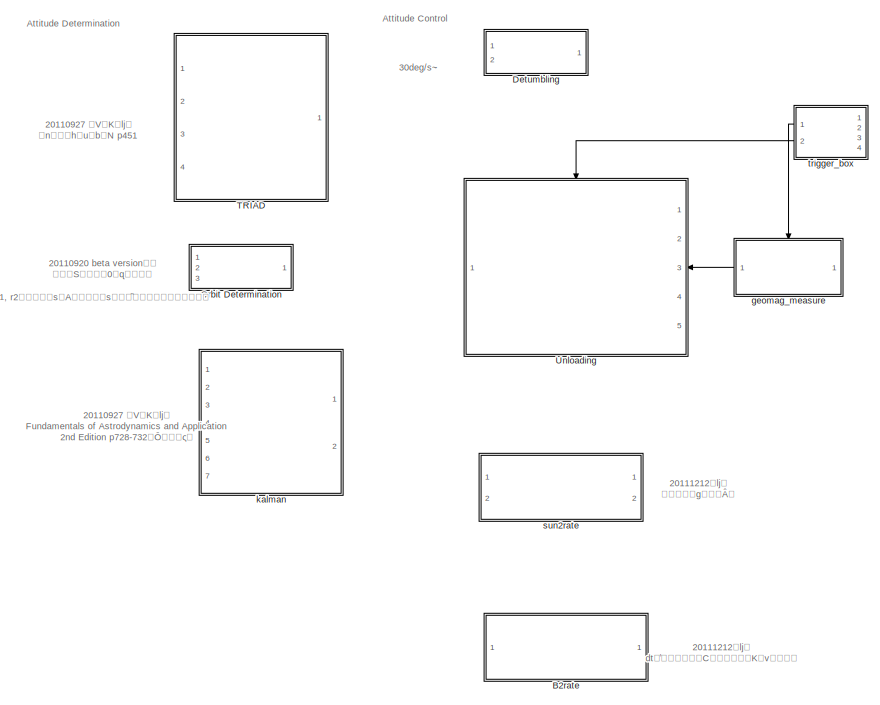
[diagram: root canvas - part 1/2, left side, full height]
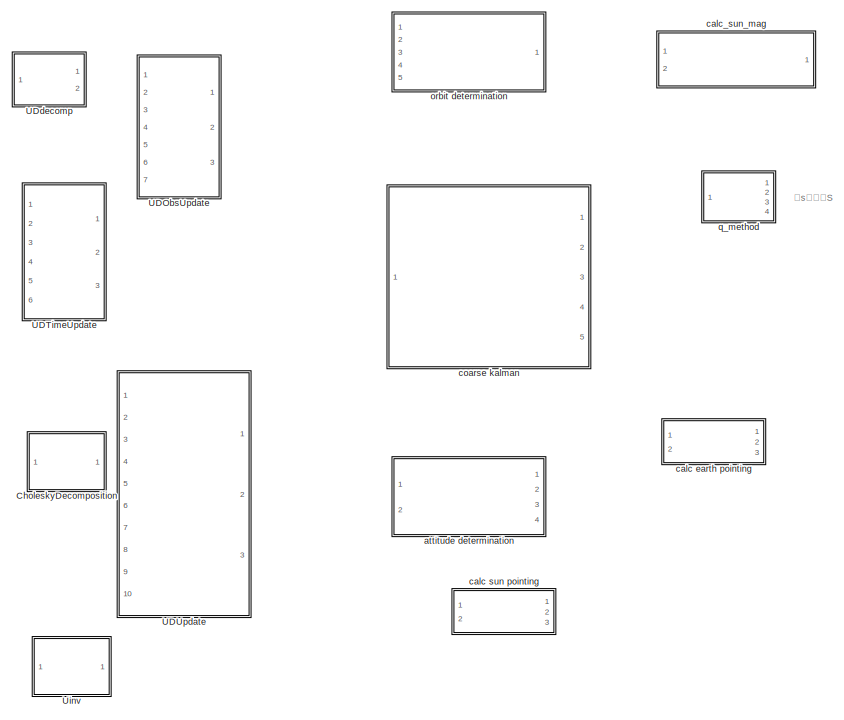
[diagram: root canvas - part 2/2, right side, full height]
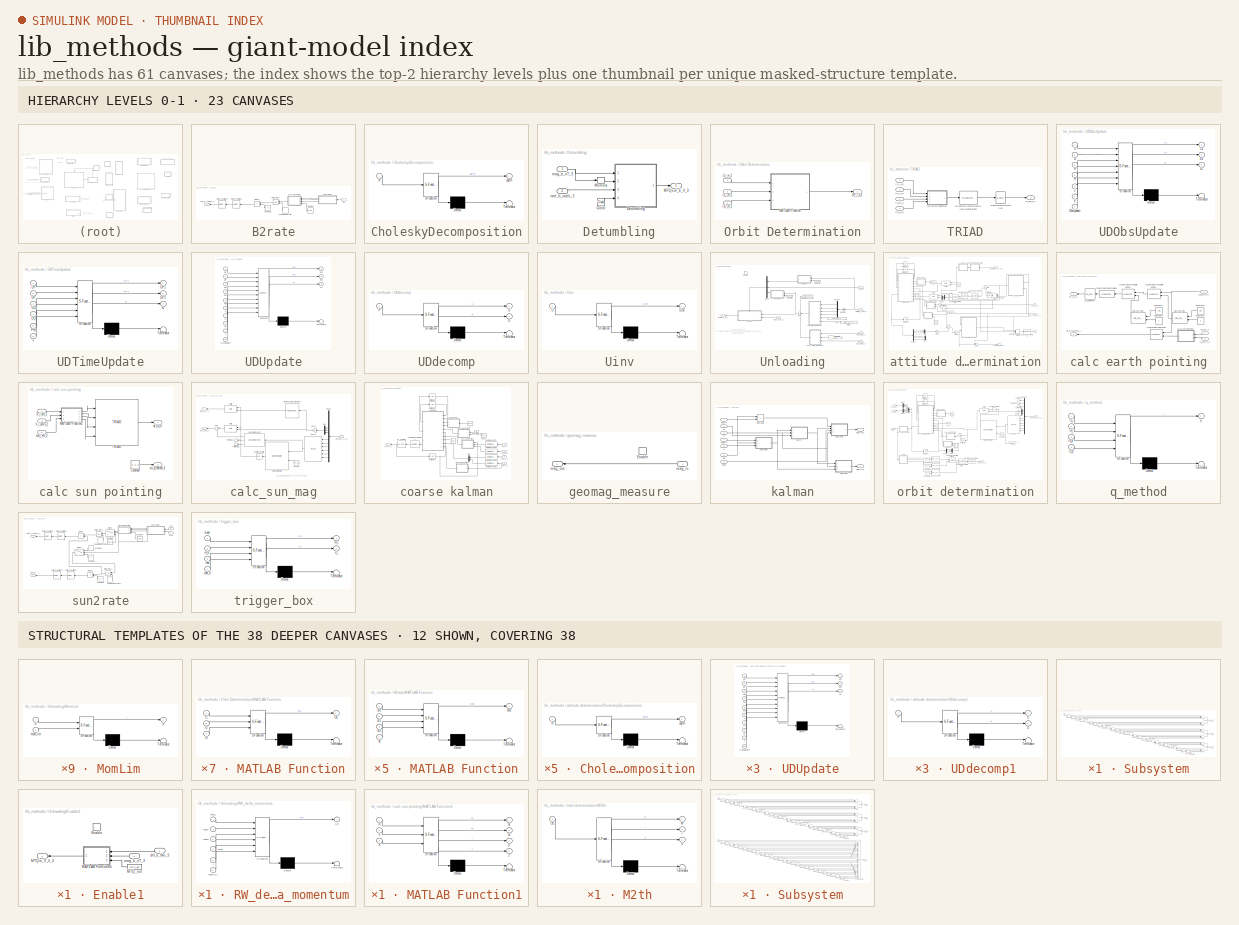
[diagram: thumbnail index - top-2 hierarchy levels (23 canvases) + 12 structural-template representatives of the remaining 38 canvases]
MODEL lib_methods
KIND library
BLOCK [SubSystem] B2rate
  FunctionWithSeparateData = off
  MaskHideContents = off
  MinAlgLoopOccurrences = off
  Opaque = off
  Ports = [1, 1]
  PropExecContextOutsideSubsystem = off
  RTWSystemCode = Auto
  RequestExecContextInheritance = off
  SID = 261
BLOCK [Inport] B2rate/B
  IconDisplay = Port number
  SID = 262
BLOCK [Constant] B2rate/Constant
  SID = 263
  Value = 10*dt
BLOCK [Constant] B2rate/Constant1
  SID = 264
  Value = 1.5
BLOCK [Product] B2rate/Divide1
  InputSameDT = off
  Inputs = */
  OutDataTypeStr = Inherit: Inherit via internal rule
  Ports = [2, 1]
  RndMeth = Floor
  SID = 265
  SaturateOnIntegerOverflow = off
BLOCK [Integrator] B2rate/Integrator2
  ExternalReset = rising
  Ports = [2, 1]
  SID = 266
BLOCK [SubSystem] B2rate/MATLAB Function
  ErrorFcn = Stateflow.Translate.translate
  FunctionWithSeparateData = off
  MaskDescription = Embedded MATLAB block
  MaskDisplay = bgColor = Simulink.Root.ColorString2Rgb(get_param(gcbh, 'BackgroundColor')); image(imread('private/eml_membrane_16.png','png','BackgroundColor',bgColor(1:3)),'center'); disp([10 10 'fcn']);  <repeated x18 — deduplicated; at blocks: MATLAB Function, Detumbling, MATLAB Function4, calc PHI, MATLAB Function2, MATLAB Function1, calc_K, calc_Pbar, calc_Phat, calc_Xhat, q_method>
  MaskHideContents = off
  MaskIconFrame = on
  MaskIconOpaque = off
  MaskIconRotate = none
  MaskIconUnits = normalized
  MaskPortRotate = default
  MaskSelfModifiable = on
  MaskType = Stateflow
  MinAlgLoopOccurrences = off
  Opaque = off
  PermitHierarchicalResolution = ExplicitOnly
  Ports = [4, 1]
  PropExecContextOutsideSubsystem = off
  RTWSystemCode = Auto
  RequestExecContextInheritance = off
  SID = 267
  TreatAsAtomicUnit = on
BLOCK [Demux] B2rate/MATLAB Function/ Demux 
  Outputs = 1
  Ports = [1, 1]
  SID = 267::15
BLOCK [S-Function] B2rate/MATLAB Function/ SFunction 
  EnableBusSupport = on
  FunctionName = sf_sfun
  PortCounts = [4 2]
  Ports = [4, 2]
  SID = 267::14
  Tag = Stateflow S-Function lib_methods 13
BLOCK [Terminator] B2rate/MATLAB Function/ Terminator 
  SID = 267::17
BLOCK [Inport] B2rate/MATLAB Function/B0
  IconDisplay = Port number
  SID = 267::18
BLOCK [Inport] B2rate/MATLAB Function/B1
  IconDisplay = Port number
  Port = 2
  SID = 267::19
BLOCK [Inport] B2rate/MATLAB Function/B2
  IconDisplay = Port number
  Port = 3
  SID = 267::1
BLOCK [Inport] B2rate/MATLAB Function/dt
  IconDisplay = Port number
  Port = 4
  SID = 267::20
BLOCK [Outport] B2rate/MATLAB Function/rate
  IconDisplay = Port number
  SID = 267::5
BLOCK [DiscretePulseGenerator] B2rate/Pulse\nGenerator
  Period = 1.5
  PhaseDelay = dt
  Ports = [0, 1]
  PulseType = Time based
  PulseWidth = 10
  SID = 268
BLOCK [RateTransition] B2rate/Rate Transition1
  Deterministic = off
  OutPortSampleTime = 1.5
  SID = 269
BLOCK [RateTransition] B2rate/Rate Transition2
  Deterministic = off
  OutPortSampleTime = 0
  SID = 270
BLOCK [SubSystem] B2rate/Subsystem
  FunctionWithSeparateData = off
  MaskHideContents = off
  MinAlgLoopOccurrences = off
  Opaque = off
  Ports = [1, 3]
  PropExecContextOutsideSubsystem = off
  RTWSystemCode = Auto
  RequestExecContextInheritance = off
  SID = 271
BLOCK [Inport] B2rate/Subsystem/B
  IconDisplay = Port number
  SID = 272
BLOCK [Outport] B2rate/Subsystem/B0
  IconDisplay = Port number
  SID = 311
BLOCK [Outport] B2rate/Subsystem/B1
  IconDisplay = Port number
  Port = 2
  SID = 312
BLOCK [Outport] B2rate/Subsystem/B2
  IconDisplay = Port number
  Port = 3
  SID = 313
BLOCK [Memory] B2rate/Subsystem/Memory1
  SID = 273
  X0 = [0;0;0]
BLOCK [Memory] B2rate/Subsystem/Memory10
  SID = 274
  X0 = [0;0;0]
BLOCK [Memory] B2rate/Subsystem/Memory11
  SID = 275
  X0 = [0;0;0]
BLOCK [Memory] B2rate/Subsystem/Memory12
  SID = 276
  X0 = [0;0;0]
BLOCK [Memory] B2rate/Subsystem/Memory13
  SID = 277
  X0 = [0;0;0]
BLOCK [Memory] B2rate/Subsystem/Memory14
  SID = 278
  X0 = [0;0;0]
BLOCK [Memory] B2rate/Subsystem/Memory15
  SID = 279
  X0 = [0;0;0]
BLOCK [Memory] B2rate/Subsystem/Memory16
  SID = 280
  X0 = [0;0;0]
BLOCK [Memory] B2rate/Subsystem/Memory17
  SID = 281
  X0 = [0;0;0]
BLOCK [Memory] B2rate/Subsystem/Memory18
  SID = 282
  X0 = [0;0;0]
BLOCK [Memory] B2rate/Subsystem/Memory19
  SID = 283
  X0 = [0;0;0]
BLOCK [Memory] B2rate/Subsystem/Memory2
  SID = 284
  X0 = [0;0;0]
BLOCK [Memory] B2rate/Subsystem/Memory20
  SID = 285
  X0 = [0;0;0]
BLOCK [Memory] B2rate/Subsystem/Memory21
  SID = 286
  X0 = [0;0;0]
BLOCK [Memory] B2rate/Subsystem/Memory22
  SID = 287
  X0 = [0;0;0]
BLOCK [Memory] B2rate/Subsystem/Memory23
  SID = 288
  X0 = [0;0;0]
BLOCK [Memory] B2rate/Subsystem/Memory24
  SID = 289
  X0 = [0;0;0]
BLOCK [Memory] B2rate/Subsystem/Memory25
  SID = 290
  X0 = [0;0;0]
BLOCK [Memory] B2rate/Subsystem/Memory26
  SID = 291
  X0 = [0;0;0]
BLOCK [Memory] B2rate/Subsystem/Memory27
  SID = 292
  X0 = [0;0;0]
BLOCK [Memory] B2rate/Subsystem/Memory28
  SID = 293
  X0 = [0;0;0]
BLOCK [Memory] B2rate/Subsystem/Memory29
  SID = 294
  X0 = [0;0;0]
BLOCK [Memory] B2rate/Subsystem/Memory3
  SID = 295
  X0 = [0;0;0]
BLOCK [Memory] B2rate/Subsystem/Memory4
  SID = 296
  X0 = [0;0;0]
BLOCK [Memory] B2rate/Subsystem/Memory5
  SID = 297
  X0 = [0;0;0]
BLOCK [Memory] B2rate/Subsystem/Memory6
  SID = 298
  X0 = [0;0;0]
BLOCK [Memory] B2rate/Subsystem/Memory7
  SID = 299
  X0 = [0;0;0]
BLOCK [Memory] B2rate/Subsystem/Memory8
  SID = 300
  X0 = [0;0;0]
BLOCK [Memory] B2rate/Subsystem/Memory9
  SID = 301
  X0 = [0;0;0]
BLOCK [Sum] B2rate/Subsystem/Sum
  IconShape = round
  InputSameDT = off
  Inputs = +++++
  OutDataTypeStr = Inherit: Inherit via internal rule
  Ports = [5, 1]
  SID = 302
  SaturateOnIntegerOverflow = off
BLOCK [Sum] B2rate/Subsystem/Sum1
  IconShape = round
  InputSameDT = off
  Inputs = +++++
  OutDataTypeStr = Inherit: Inherit via internal rule
  Ports = [5, 1]
  SID = 303
  SaturateOnIntegerOverflow = off
BLOCK [Sum] B2rate/Subsystem/Sum2
  IconShape = round
  InputSameDT = off
  Inputs = +++++
  OutDataTypeStr = Inherit: Inherit via internal rule
  Ports = [5, 1]
  SID = 304
  SaturateOnIntegerOverflow = off
BLOCK [Sum] B2rate/Subsystem/Sum3
  IconShape = round
  InputSameDT = off
  Inputs = +++++
  OutDataTypeStr = Inherit: Inherit via internal rule
  Ports = [5, 1]
  SID = 305
  SaturateOnIntegerOverflow = off
BLOCK [Sum] B2rate/Subsystem/Sum4
  IconShape = round
  InputSameDT = off
  Inputs = +++++
  OutDataTypeStr = Inherit: Inherit via internal rule
  Ports = [5, 1]
  SID = 306
  SaturateOnIntegerOverflow = off
BLOCK [Sum] B2rate/Subsystem/Sum5
  IconShape = round
  InputSameDT = off
  Inputs = +++++
  OutDataTypeStr = Inherit: Inherit via internal rule
  Ports = [5, 1]
  SID = 307
  SaturateOnIntegerOverflow = off
BLOCK [Sum] B2rate/Subsystem/Sum6
  IconShape = round
  InputSameDT = off
  OutDataTypeStr = Inherit: Inherit via internal rule
  Ports = [2, 1]
  SID = 308
  SaturateOnIntegerOverflow = off
BLOCK [Sum] B2rate/Subsystem/Sum7
  IconShape = round
  InputSameDT = off
  OutDataTypeStr = Inherit: Inherit via internal rule
  Ports = [2, 1]
  SID = 309
  SaturateOnIntegerOverflow = off
BLOCK [Sum] B2rate/Subsystem/Sum8
  IconShape = round
  InputSameDT = off
  OutDataTypeStr = Inherit: Inherit via internal rule
  Ports = [2, 1]
  SID = 310
  SaturateOnIntegerOverflow = off
BLOCK [Outport] B2rate/rate_b_rad//sec_3
  IconDisplay = Port number
  SID = 314
BLOCK [SubSystem] CholeskyDecomposition
  ErrorFcn = Stateflow.Translate.translate
  FunctionWithSeparateData = off
  MaskDescription = Embedded MATLAB block
  MaskDisplay = bgColor = Simulink.Root.ColorString2Rgb(get_param(gcbh, 'BackgroundColor')); image(imread('private/eml_membrane_16.png','png','BackgroundColor',bgColor(1:3)),'center'); disp([10 10 'CholeskyDecomp']);
  MaskHideContents = off
  MaskIconFrame = on
  MaskIconOpaque = off
  MaskIconRotate = none
  MaskIconUnits = normalized
  MaskPortRotate = default
  MaskSelfModifiable = on
  MaskType = Stateflow
  MinAlgLoopOccurrences = off
  Opaque = off
  PermitHierarchicalResolution = ExplicitOnly
  Ports = [1, 1]
  PropExecContextOutsideSubsystem = off
  RTWSystemCode = Auto
  RequestExecContextInheritance = off
  SID = 1209
  TreatAsAtomicUnit = on
BLOCK [Demux] CholeskyDecomposition/ Demux 
  Outputs = 1
  Ports = [1, 1]
  SID = 1209::15
BLOCK [S-Function] CholeskyDecomposition/ SFunction 
  EnableBusSupport = on
  FunctionName = sf_sfun
  PortCounts = [1 2]
  Ports = [1, 2]
  SID = 1209::14
  Tag = Stateflow S-Function lib_methods 16
BLOCK [Terminator] CholeskyDecomposition/ Terminator 
  SID = 1209::17
BLOCK [Inport] CholeskyDecomposition/R
  IconDisplay = Port number
  SID = 1209::1
BLOCK [Outport] CholeskyDecomposition/sqrtR
  IconDisplay = Port number
  SID = 1209::5
BLOCK [SubSystem] Detumbling
  FunctionWithSeparateData = off
  MaskHideContents = off
  MinAlgLoopOccurrences = off
  Opaque = off
  Ports = [2, 1]
  PropExecContextOutsideSubsystem = off
  RTWSystemCode = Auto
  RequestExecContextInheritance = off
  SID = 2288
BLOCK [Clock] Detumbling/Clock
  Decimation = 10
  SID = 2293
BLOCK [SubSystem] Detumbling/Detumbling
  ErrorFcn = Stateflow.Translate.translate
  FunctionWithSeparateData = off
  MaskDescription = Embedded MATLAB block
  MaskHideContents = off
  MaskIconFrame = on
  MaskIconOpaque = off
  MaskIconRotate = none
  MaskIconUnits = normalized
  MaskPortRotate = default
  MaskSelfModifiable = on
  MaskType = Stateflow
  MinAlgLoopOccurrences = off
  Opaque = off
  PermitHierarchicalResolution = ExplicitOnly
  Ports = [4, 1]
  PropExecContextOutsideSubsystem = off
  RTWSystemCode = Auto
  RequestExecContextInheritance = off
  SID = 2294
  TreatAsAtomicUnit = on
BLOCK [Demux] Detumbling/Detumbling/ Demux 
  Outputs = 1
  Ports = [1, 1]
  SID = 2294::22
BLOCK [S-Function] Detumbling/Detumbling/ SFunction 
  EnableBusSupport = off
  FunctionName = sf_sfun
  PortCounts = [4 2]
  Ports = [4, 2]
  SID = 2294::21
  Tag = Stateflow S-Function lib_methods 1
BLOCK [Terminator] Detumbling/Detumbling/ Terminator 
  SID = 2294::24
BLOCK [Outport] Detumbling/Detumbling/d
  IconDisplay = Port number
  SID = 2294::5
BLOCK [Inport] Detumbling/Detumbling/mag_b
  IconDisplay = Port number
  SID = 2294::1
BLOCK [Inport] Detumbling/Detumbling/mag_b_old
  IconDisplay = Port number
  Port = 2
  SID = 2294::18
BLOCK [Inport] Detumbling/Detumbling/rate_b
  IconDisplay = Port number
  Port = 3
  SID = 2294::19
BLOCK [Inport] Detumbling/Detumbling/time
  IconDisplay = Port number
  Port = 4
  SID = 2294::20
BLOCK [Outport] Detumbling/MTQvol_b_V_3
  IconDisplay = Port number
  SID = 2296
BLOCK [Memory] Detumbling/Memory
  SID = 2295
BLOCK [Inport] Detumbling/mag_b_nT_3
  IconDisplay = Port number
  SID = 2291
BLOCK [Inport] Detumbling/rate_b_rad//s_3
  IconDisplay = Port number
  Port = 2
  SID = 2292
BLOCK [SubSystem] Orbit Determination
  FunctionWithSeparateData = off
  MaskHideContents = off
  MinAlgLoopOccurrences = off
  Opaque = off
  Ports = [3, 1]
  PropExecContextOutsideSubsystem = off
  RTWSystemCode = Auto
  RequestExecContextInheritance = off
  SID = 17
BLOCK [SubSystem] Orbit Determination/MATLAB Function
  ErrorFcn = Stateflow.Translate.translate
  FunctionWithSeparateData = off
  MaskDescription = Embedded MATLAB block
  MaskDisplay = bgColor = Simulink.Root.ColorString2Rgb(get_param(gcbh, 'BackgroundColor')); image(imread('private/eml_membrane_16.png','png','BackgroundColor',bgColor(1:3)),'center'); disp([10 10 'Orbit_Determination']);
  MaskHideContents = off
  MaskIconFrame = on
  MaskIconOpaque = off
  MaskIconRotate = none
  MaskIconUnits = normalized
  MaskPortRotate = default
  MaskSelfModifiable = on
  MaskType = Stateflow
  MinAlgLoopOccurrences = off
  Opaque = off
  PermitHierarchicalResolution = ExplicitOnly
  Ports = [3, 1]
  PropExecContextOutsideSubsystem = off
  RTWSystemCode = Auto
  RequestExecContextInheritance = off
  SID = 21
  TreatAsAtomicUnit = on
BLOCK [Demux] Orbit Determination/MATLAB Function/ Demux 
  Outputs = 1
  Ports = [1, 1]
  SID = 21::21
BLOCK [S-Function] Orbit Determination/MATLAB Function/ SFunction 
  EnableBusSupport = off
  FunctionName = sf_sfun
  PortCounts = [3 2]
  Ports = [3, 2]
  SID = 21::20
  Tag = Stateflow S-Function lib_methods 2
BLOCK [Terminator] Orbit Determination/MATLAB Function/ Terminator 
  SID = 21::23
BLOCK [Outport] Orbit Determination/MATLAB Function/OE
  IconDisplay = Port number
  SID = 21::5
BLOCK [Inport] Orbit Determination/MATLAB Function/r1
  IconDisplay = Port number
  SID = 21::1
BLOCK [Inport] Orbit Determination/MATLAB Function/r2
  IconDisplay = Port number
  Port = 2
  SID = 21::18
BLOCK [Inport] Orbit Determination/MATLAB Function/r3
  IconDisplay = Port number
  Port = 3
  SID = 21::19
BLOCK [Outport] Orbit Determination/OE_i_#_6
  IconDisplay = Port number
  SID = 22
BLOCK [Inport] Orbit Determination/r1_i_m_3
  IconDisplay = Port number
  SID = 18
BLOCK [Inport] Orbit Determination/r2_i_m_3
  IconDisplay = Port number
  Port = 2
  SID = 19
BLOCK [Inport] Orbit Determination/r3_i_m_3
  IconDisplay = Port number
  Port = 3
  SID = 20
BLOCK [SubSystem] TRIAD
  FunctionWithSeparateData = off
  MaskHideContents = off
  MinAlgLoopOccurrences = off
  Opaque = off
  Ports = [4, 1]
  PropExecContextOutsideSubsystem = off
  RTWSystemCode = Auto
  RequestExecContextInheritance = off
  SID = 40
BLOCK [Reference] TRIAD/Direction Cosine Matrix \nto Quaternions  REF=aerolibtransform2/Direction Cosine Matrix \nto Quaternions
  Ports = [1, 1]
  SID = 4
  SourceBlock = aerolibtransform2/Direction Cosine Matrix \nto Quaternions
  SourceType = DCM2Quaternion
BLOCK [SubSystem] TRIAD/MATLAB Function
  ErrorFcn = Stateflow.Translate.translate
  FunctionWithSeparateData = off
  MaskDescription = Embedded MATLAB block
  MaskDisplay = bgColor = Simulink.Root.ColorString2Rgb(get_param(gcbh, 'BackgroundColor')); image(imread('private/eml_membrane_16.png','png','BackgroundColor',bgColor(1:3)),'center'); disp([10 10 'TRAID']);
  MaskHideContents = off
  MaskIconFrame = on
  MaskIconOpaque = off
  MaskIconRotate = none
  MaskIconUnits = normalized
  MaskPortRotate = default
  MaskSelfModifiable = on
  MaskType = Stateflow
  MinAlgLoopOccurrences = off
  Opaque = off
  PermitHierarchicalResolution = ExplicitOnly
  Ports = [4, 1]
  PropExecContextOutsideSubsystem = off
  RTWSystemCode = Auto
  RequestExecContextInheritance = off
  SID = 45
  TreatAsAtomicUnit = on
BLOCK [Demux] TRIAD/MATLAB Function/ Demux 
  Outputs = 1
  Ports = [1, 1]
  SID = 45::28
BLOCK [S-Function] TRIAD/MATLAB Function/ SFunction 
  EnableBusSupport = on
  FunctionName = sf_sfun
  PortCounts = [4 2]
  Ports = [4, 2]
  SID = 45::27
  Tag = Stateflow S-Function lib_methods 8
BLOCK [Terminator] TRIAD/MATLAB Function/ Terminator 
  SID = 45::30
BLOCK [Outport] TRIAD/MATLAB Function/A
  IconDisplay = Port number
  SID = 45::26
BLOCK [Inport] TRIAD/MATLAB Function/v1
  IconDisplay = Port number
  SID = 45::1
BLOCK [Inport] TRIAD/MATLAB Function/v2
  IconDisplay = Port number
  Port = 2
  SID = 45::18
BLOCK [Inport] TRIAD/MATLAB Function/w1
  IconDisplay = Port number
  Port = 3
  SID = 45::19
BLOCK [Inport] TRIAD/MATLAB Function/w2
  IconDisplay = Port number
  Port = 4
  SID = 45::20
BLOCK [Reference] TRIAD/Quaternion\nNormalize  REF=aerolibutil/Quaternion\nNormalize
  Ports = [1, 1]
  SID = 5
  SourceBlock = aerolibutil/Quaternion\nNormalize
  SourceType = Quaternion Normalize
BLOCK [Outport] TRIAD/q_i2b_#_4
  IconDisplay = Port number
  SID = 3
BLOCK [Inport] TRIAD/r1_b_#_3
  IconDisplay = Port number
  Port = 3
  SID = 43
BLOCK [Inport] TRIAD/r1_i_#_3
  IconDisplay = Port number
  SID = 41
BLOCK [Inport] TRIAD/r2_b_#_3
  IconDisplay = Port number
  Port = 4
  SID = 44
BLOCK [Inport] TRIAD/r2_i_#_3
  IconDisplay = Port number
  Port = 2
  SID = 42
BLOCK [SubSystem] UDObsUpdate
  ErrorFcn = Stateflow.Translate.translate
  FunctionWithSeparateData = off
  MaskDescription = Embedded MATLAB block
  MaskDisplay = bgColor = Simulink.Root.ColorString2Rgb(get_param(gcbh, 'BackgroundColor')); image(imread('private/eml_membrane_16.png','png','BackgroundColor',bgColor(1:3)),'center'); disp([10 10 'UDObsUpdate']);
  MaskHideContents = off
  MaskIconFrame = on
  MaskIconOpaque = off
  MaskIconRotate = none
  MaskIconUnits = normalized
  MaskPortRotate = default
  MaskSelfModifiable = on
  MaskType = Stateflow
  MinAlgLoopOccurrences = off
  Opaque = off
  PermitHierarchicalResolution = ExplicitOnly
  Ports = [7, 3]
  PropExecContextOutsideSubsystem = off
  RTWSystemCode = Auto
  RequestExecContextInheritance = off
  SID = 1211
  TreatAsAtomicUnit = on
BLOCK [Demux] UDObsUpdate/ Demux 
  Outputs = 1
  Ports = [1, 1]
  SID = 1211::15
BLOCK [S-Function] UDObsUpdate/ SFunction 
  EnableBusSupport = on
  FunctionName = sf_sfun
  PortCounts = [7 4]
  Ports = [7, 4]
  SID = 1211::14
  Tag = Stateflow S-Function lib_methods 18
BLOCK [Terminator] UDObsUpdate/ Terminator 
  SID = 1211::17
BLOCK [Inport] UDObsUpdate/D
  IconDisplay = Port number
  Port = 2
  SID = 1211::21
BLOCK [Outport] UDObsUpdate/D1
  IconDisplay = Port number
  Port = 2
  SID = 1211::20
BLOCK [Inport] UDObsUpdate/H
  IconDisplay = Port number
  Port = 3
  SID = 1211::22
BLOCK [Inport] UDObsUpdate/ObsUpdate
  IconDisplay = Port number
  Port = 7
  SID = 1211::29
BLOCK [Inport] UDObsUpdate/R
  IconDisplay = Port number
  Port = 4
  SID = 1211::25
BLOCK [Inport] UDObsUpdate/U
  IconDisplay = Port number
  SID = 1211::1
BLOCK [Outport] UDObsUpdate/U1
  IconDisplay = Port number
  SID = 1211::5
BLOCK [Inport] UDObsUpdate/x
  IconDisplay = Port number
  Port = 5
  SID = 1211::27
BLOCK [Outport] UDObsUpdate/x1
  IconDisplay = Port number
  Port = 3
  SID = 1211::26
BLOCK [Inport] UDObsUpdate/y
  IconDisplay = Port number
  Port = 6
  SID = 1211::28
BLOCK [SubSystem] UDTimeUpdate
  ErrorFcn = Stateflow.Translate.translate
  FunctionWithSeparateData = off
  MaskDescription = Embedded MATLAB block
  MaskDisplay = bgColor = Simulink.Root.ColorString2Rgb(get_param(gcbh, 'BackgroundColor')); image(imread('private/eml_membrane_16.png','png','BackgroundColor',bgColor(1:3)),'center'); disp([10 10 'UDTimeUpdate']);
  MaskHideContents = off
  MaskIconFrame = on
  MaskIconOpaque = off
  MaskIconRotate = none
  MaskIconUnits = normalized
  MaskPortRotate = default
  MaskSelfModifiable = on
  MaskType = Stateflow
  MinAlgLoopOccurrences = off
  Opaque = off
  PermitHierarchicalResolution = ExplicitOnly
  Ports = [6, 3]
  PropExecContextOutsideSubsystem = off
  RTWSystemCode = Auto
  RequestExecContextInheritance = off
  SID = 1208
  TreatAsAtomicUnit = on
BLOCK [Demux] UDTimeUpdate/ Demux 
  Outputs = 1
  Ports = [1, 1]
  SID = 1208::15
BLOCK [S-Function] UDTimeUpdate/ SFunction 
  EnableBusSupport = on
  FunctionName = sf_sfun
  PortCounts = [6 4]
  Ports = [6, 4]
  SID = 1208::14
  Tag = Stateflow S-Function lib_methods 15
BLOCK [Terminator] UDTimeUpdate/ Terminator 
  SID = 1208::17
BLOCK [Inport] UDTimeUpdate/DP
  IconDisplay = Port number
  Port = 2
  SID = 1208::21
BLOCK [Outport] UDTimeUpdate/DP1
  IconDisplay = Port number
  Port = 2
  SID = 1208::20
BLOCK [Inport] UDTimeUpdate/DQ
  IconDisplay = Port number
  Port = 4
  SID = 1208::23
BLOCK [Inport] UDTimeUpdate/PHI
  IconDisplay = Port number
  Port = 5
  SID = 1208::24
BLOCK [Inport] UDTimeUpdate/UP
  IconDisplay = Port number
  SID = 1208::1
BLOCK [Outport] UDTimeUpdate/UP1
  IconDisplay = Port number
  SID = 1208::5
BLOCK [Inport] UDTimeUpdate/UQ
  IconDisplay = Port number
  Port = 3
  SID = 1208::22
BLOCK [Inport] UDTimeUpdate/x
  IconDisplay = Port number
  Port = 6
  SID = 1208::25
BLOCK [Outport] UDTimeUpdate/x1
  IconDisplay = Port number
  Port = 3
  SID = 1208::26
BLOCK [SubSystem] UDUpdate
  ErrorFcn = Stateflow.Translate.translate
  FunctionWithSeparateData = off
  MaskDescription = Embedded MATLAB block
  MaskDisplay = bgColor = Simulink.Root.ColorString2Rgb(get_param(gcbh, 'BackgroundColor')); image(imread('private/eml_membrane_16.png','png','BackgroundColor',bgColor(1:3)),'center'); disp([10 10 'UDUpdate']);  <repeated x4 — deduplicated; at blocks: UDUpdate>
  MaskHideContents = off
  MaskIconFrame = on
  MaskIconOpaque = off
  MaskIconRotate = none
  MaskIconUnits = normalized
  MaskPortRotate = default
  MaskSelfModifiable = on
  MaskType = Stateflow
  MinAlgLoopOccurrences = off
  Opaque = off
  PermitHierarchicalResolution = ExplicitOnly
  Ports = [10, 3]
  PropExecContextOutsideSubsystem = off
  RTWSystemCode = Auto
  RequestExecContextInheritance = off
  SID = 1212
  TreatAsAtomicUnit = on
BLOCK [Demux] UDUpdate/ Demux 
  Outputs = 1
  Ports = [1, 1]
  SID = 1212::15
BLOCK [S-Function] UDUpdate/ SFunction 
  EnableBusSupport = on
  FunctionName = sf_sfun
  PortCounts = [10 4]
  Ports = [10, 4]
  SID = 1212::14
  Tag = Stateflow S-Function lib_methods 19
BLOCK [Terminator] UDUpdate/ Terminator 
  SID = 1212::17
BLOCK [Inport] UDUpdate/DP
  IconDisplay = Port number
  Port = 2
  SID = 1212::21
BLOCK [Outport] UDUpdate/DP1
  IconDisplay = Port number
  Port = 2
  SID = 1212::20
BLOCK [Inport] UDUpdate/DQ
  IconDisplay = Port number
  Port = 4
  SID = 1212::23
BLOCK [Inport] UDUpdate/H
  IconDisplay = Port number
  Port = 7
  SID = 1212::27
BLOCK [Inport] UDUpdate/ObsUpdate
  IconDisplay = Port number
  Port = 10
  SID = 1212::30
BLOCK [Inport] UDUpdate/PHI
  IconDisplay = Port number
  Port = 5
  SID = 1212::24
BLOCK [Inport] UDUpdate/R
  IconDisplay = Port number
  Port = 8
  SID = 1212::28
BLOCK [Inport] UDUpdate/UP
  IconDisplay = Port number
  SID = 1212::1
BLOCK [Outport] UDUpdate/UP1
  IconDisplay = Port number
  SID = 1212::5
BLOCK [Inport] UDUpdate/UQ
  IconDisplay = Port number
  Port = 3
  SID = 1212::22
BLOCK [Inport] UDUpdate/x
  IconDisplay = Port number
  Port = 6
  SID = 1212::25
BLOCK [Outport] UDUpdate/x1
  IconDisplay = Port number
  Port = 3
  SID = 1212::26
BLOCK [Inport] UDUpdate/y
  IconDisplay = Port number
  Port = 9
  SID = 1212::29
BLOCK [SubSystem] UDdecomp
  ErrorFcn = Stateflow.Translate.translate
  FunctionWithSeparateData = off
  MaskDescription = Embedded MATLAB block
  MaskDisplay = bgColor = Simulink.Root.ColorString2Rgb(get_param(gcbh, 'BackgroundColor')); image(imread('private/eml_membrane_16.png','png','BackgroundColor',bgColor(1:3)),'center'); disp([10 10 'UDdecomposition']);  <repeated x4 — deduplicated; at blocks: UDdecomp, UDdecomp1>
  MaskHideContents = off
  MaskIconFrame = on
  MaskIconOpaque = off
  MaskIconRotate = none
  MaskIconUnits = normalized
  MaskPortRotate = default
  MaskSelfModifiable = on
  MaskType = Stateflow
  MinAlgLoopOccurrences = off
  Opaque = off
  PermitHierarchicalResolution = ExplicitOnly
  Ports = [1, 2]
  PropExecContextOutsideSubsystem = off
  RTWSystemCode = Auto
  RequestExecContextInheritance = off
  SID = 1207
  TreatAsAtomicUnit = on
BLOCK [Demux] UDdecomp/ Demux 
  Outputs = 1
  Ports = [1, 1]
  SID = 1207::15
BLOCK [S-Function] UDdecomp/ SFunction 
  EnableBusSupport = on
  FunctionName = sf_sfun
  PortCounts = [1 3]
  Ports = [1, 3]
  SID = 1207::14
  Tag = Stateflow S-Function lib_methods 14
BLOCK [Terminator] UDdecomp/ Terminator 
  SID = 1207::17
BLOCK [Outport] UDdecomp/D
  IconDisplay = Port number
  Port = 2
  SID = 1207::20
BLOCK [Inport] UDdecomp/P
  IconDisplay = Port number
  SID = 1207::1
BLOCK [Outport] UDdecomp/U
  IconDisplay = Port number
  SID = 1207::5
BLOCK [SubSystem] Uinv
  ErrorFcn = Stateflow.Translate.translate
  FunctionWithSeparateData = off
  MaskDescription = Embedded MATLAB block
  MaskDisplay = bgColor = Simulink.Root.ColorString2Rgb(get_param(gcbh, 'BackgroundColor')); image(imread('private/eml_membrane_16.png','png','BackgroundColor',bgColor(1:3)),'center'); disp([10 10 'Uinverse']);
  MaskHideContents = off
  MaskIconFrame = on
  MaskIconOpaque = off
  MaskIconRotate = none
  MaskIconUnits = normalized
  MaskPortRotate = default
  MaskSelfModifiable = on
  MaskType = Stateflow
  MinAlgLoopOccurrences = off
  Opaque = off
  PermitHierarchicalResolution = ExplicitOnly
  Ports = [1, 1]
  PropExecContextOutsideSubsystem = off
  RTWSystemCode = Auto
  RequestExecContextInheritance = off
  SID = 1210
  TreatAsAtomicUnit = on
BLOCK [Demux] Uinv/ Demux 
  Outputs = 1
  Ports = [1, 1]
  SID = 1210::15
BLOCK [S-Function] Uinv/ SFunction 
  EnableBusSupport = on
  FunctionName = sf_sfun
  PortCounts = [1 2]
  Ports = [1, 2]
  SID = 1210::14
  Tag = Stateflow S-Function lib_methods 17
BLOCK [Terminator] Uinv/ Terminator 
  SID = 1210::17
BLOCK [Inport] Uinv/U
  IconDisplay = Port number
  SID = 1210::1
BLOCK [Outport] Uinv/Uinv
  IconDisplay = Port number
  SID = 1210::5
BLOCK [SubSystem] Unloading
  FunctionWithSeparateData = off
  MaskHideContents = off
  MinAlgLoopOccurrences = off
  Opaque = off
  Ports = [5, 1, 1]
  PropExecContextOutsideSubsystem = off
  RTWSystemCode = Auto
  RequestExecContextInheritance = off
  SID = 2254
  TreatAsAtomicUnit = on
BLOCK [Demux] Unloading/Demux4
  DisplayOption = bar
  Ports = [1, 4]
  SID = 2261
BLOCK [EnablePort] Unloading/Enable
  Ports = []
  SID = 2260
  StatesWhenEnabling = reset
BLOCK [SubSystem] Unloading/Enable1
  FunctionWithSeparateData = off
  MaskHideContents = off
  MinAlgLoopOccurrences = off
  Opaque = off
  Ports = [2, 1, 1]
  PropExecContextOutsideSubsystem = off
  RTWSystemCode = Auto
  RequestExecContextInheritance = off
  SID = 2262
  TreatAsAtomicUnit = on
BLOCK [EnablePort] Unloading/Enable1/Enable
  Ports = []
  SID = 2265
BLOCK [SubSystem] Unloading/Enable1/MATLAB Function4
  ErrorFcn = Stateflow.Translate.translate
  FunctionWithSeparateData = off
  MaskDescription = Embedded MATLAB block
  MaskHideContents = off
  MaskIconFrame = on
  MaskIconOpaque = off
  MaskIconRotate = none
  MaskIconUnits = normalized
  MaskPortRotate = default
  MaskSelfModifiable = on
  MaskType = Stateflow
  MinAlgLoopOccurrences = off
  Opaque = off
  PermitHierarchicalResolution = ExplicitOnly
  Ports = [3, 1]
  PropExecContextOutsideSubsystem = off
  RTWSystemCode = Auto
  RequestExecContextInheritance = off
  SID = 2266
  TreatAsAtomicUnit = on
BLOCK [Demux] Unloading/Enable1/MATLAB Function4/ Demux 
  Outputs = 1
  Ports = [1, 1]
  SID = 2266::33
BLOCK [S-Function] Unloading/Enable1/MATLAB Function4/ SFunction 
  EnableBusSupport = on
  FunctionName = sf_sfun
  PortCounts = [3 2]
  Ports = [3, 2]
  SID = 2266::32
  Tag = Stateflow S-Function lib_methods 11
BLOCK [Terminator] Unloading/Enable1/MATLAB Function4/ Terminator 
  SID = 2266::35
BLOCK [Inport] Unloading/Enable1/MATLAB Function4/dH
  IconDisplay = Port number
  SID = 2266::1
BLOCK [Outport] Unloading/Enable1/MATLAB Function4/m
  IconDisplay = Port number
  SID = 2266::5
BLOCK [Inport] Unloading/Enable1/MATLAB Function4/mag
  IconDisplay = Port number
  Port = 2
  SID = 2266::18
BLOCK [Inport] Unloading/Enable1/MATLAB Function4/max_mag
  IconDisplay = Port number
  Port = 3
  SID = 2266::31
BLOCK [Constant] Unloading/Enable1/MTQ_out
  SID = 2267
  Value = MTQ_out
BLOCK [Outport] Unloading/Enable1/MTQin_V_#_3
  IconDisplay = Port number
  InitialOutput = [0;0;0]
  OutputWhenDisabled = reset
  SID = 2268
BLOCK [Inport] Unloading/Enable1/dH_b_Nm_3
  IconDisplay = Port number
  SID = 2263
BLOCK [Inport] Unloading/Enable1/mag_b_nT_3
  IconDisplay = Port number
  Port = 2
  SID = 2264
BLOCK [Outport] Unloading/MTQin_V_#_3
  IconDisplay = Port number
  InitialOutput = [0;0;0]
  OutputWhenDisabled = reset
  SID = 2282
BLOCK [SubSystem] Unloading/MomLim
  ErrorFcn = Stateflow.Translate.translate
  FunctionWithSeparateData = off
  MaskDescription = Embedded MATLAB block
  MaskDisplay = bgColor = Simulink.Root.ColorString2Rgb(get_param(gcbh, 'BackgroundColor')); image(imread('private/eml_membrane_16.png','png','BackgroundColor',bgColor(1:3)),'center'); disp([10 10 'mom_limit']);
  MaskHideContents = off
  MaskIconFrame = on
  MaskIconOpaque = off
  MaskIconRotate = none
  MaskIconUnits = normalized
  MaskPortRotate = default
  MaskSelfModifiable = on
  MaskType = Stateflow
  MinAlgLoopOccurrences = off
  Opaque = off
  PermitHierarchicalResolution = ExplicitOnly
  Ports = [2, 1]
  PropExecContextOutsideSubsystem = off
  RTWSystemCode = Auto
  RequestExecContextInheritance = off
  SID = 2269
  TreatAsAtomicUnit = on
BLOCK [Demux] Unloading/MomLim/ Demux 
  Outputs = 1
  Ports = [1, 1]
  SID = 2269::15
BLOCK [S-Function] Unloading/MomLim/ SFunction 
  EnableBusSupport = on
  FunctionName = sf_sfun
  PortCounts = [2 2]
  Ports = [2, 2]
  SID = 2269::14
  Tag = Stateflow S-Function lib_methods 9
BLOCK [Terminator] Unloading/MomLim/ Terminator 
  SID = 2269::17
BLOCK [Inport] Unloading/MomLim/mom_lim
  IconDisplay = Port number
  Port = 2
  SID = 2269::19
BLOCK [Inport] Unloading/MomLim/u
  IconDisplay = Port number
  SID = 2269::1
BLOCK [Outport] Unloading/MomLim/y
  IconDisplay = Port number
  SID = 2269::5
BLOCK [Constant] Unloading/MomLimit
  SID = 2270
  Value = mom_lim
BLOCK [Mux] Unloading/Mux2
  DisplayOption = bar
  Inputs = 3
  Ports = [3, 1]
  SID = 2271
BLOCK [Inport] Unloading/ON_OFF
  IconDisplay = Port number
  SID = 2255
BLOCK [Constant] Unloading/RW_J
  SID = 2272
  Value = [RW_J;RW_J;RW_J;RW_J]
BLOCK [SubSystem] Unloading/RW_delta_momentum
  ErrorFcn = Stateflow.Translate.translate
  FunctionWithSeparateData = off
  MaskDescription = Embedded MATLAB block
  MaskDisplay = bgColor = Simulink.Root.ColorString2Rgb(get_param(gcbh, 'BackgroundColor')); image(imread('private/eml_membrane_16.png','png','BackgroundColor',bgColor(1:3)),'center'); disp([10 10 'wh_mom']);
  MaskHideContents = off
  MaskIconFrame = on
  MaskIconOpaque = off
  MaskIconRotate = none
  MaskIconUnits = normalized
  MaskPortRotate = default
  MaskSelfModifiable = on
  MaskType = Stateflow
  MinAlgLoopOccurrences = off
  Opaque = off
  PermitHierarchicalResolution = ExplicitOnly
  Ports = [6, 1]
  PropExecContextOutsideSubsystem = off
  RTWSystemCode = Auto
  RequestExecContextInheritance = off
  SID = 2273
  TreatAsAtomicUnit = on
BLOCK [Demux] Unloading/RW_delta_momentum/ Demux 
  Outputs = 1
  Ports = [1, 1]
  SID = 2273::36
BLOCK [S-Function] Unloading/RW_delta_momentum/ SFunction 
  EnableBusSupport = on
  FunctionName = sf_sfun
  PortCounts = [6 2]
  Ports = [6, 2]
  SID = 2273::35
  Tag = Stateflow S-Function lib_methods 10
BLOCK [Terminator] Unloading/RW_delta_momentum/ Terminator 
  SID = 2273::38
BLOCK [Inport] Unloading/RW_delta_momentum/I
  IconDisplay = Port number
  Port = 5
  SID = 2273::21
BLOCK [Outport] Unloading/RW_delta_momentum/d_H
  IconDisplay = Port number
  SID = 2273::5
BLOCK [Inport] Unloading/RW_delta_momentum/matrix_A
  IconDisplay = Port number
  Port = 6
  SID = 2273::30
BLOCK [Inport] Unloading/RW_delta_momentum/rate1
  IconDisplay = Port number
  SID = 2273::1
BLOCK [Inport] Unloading/RW_delta_momentum/rate2
  IconDisplay = Port number
  Port = 2
  SID = 2273::18
BLOCK [Inport] Unloading/RW_delta_momentum/rate3
  IconDisplay = Port number
  Port = 3
  SID = 2273::19
BLOCK [Inport] Unloading/RW_delta_momentum/rate4
  IconDisplay = Port number
  Port = 4
  SID = 2273::20
BLOCK [Inport] Unloading/RWrate_c_rpm_4
  IconDisplay = Port number
  Port = 2
  SID = 2256
BLOCK [SubSystem] Unloading/RateLim
  ErrorFcn = Stateflow.Translate.translate
  FunctionWithSeparateData = off
  MaskDescription = Embedded MATLAB block
  MaskDisplay = bgColor = Simulink.Root.ColorString2Rgb(get_param(gcbh, 'BackgroundColor')); image(imread('private/eml_membrane_16.png','png','BackgroundColor',bgColor(1:3)),'center'); disp([10 10 'Rate_limit']);
  MaskHideContents = off
  MaskIconFrame = on
  MaskIconOpaque = off
  MaskIconRotate = none
  MaskIconUnits = normalized
  MaskPortRotate = default
  MaskSelfModifiable = on
  MaskType = Stateflow
  MinAlgLoopOccurrences = off
  Opaque = off
  PermitHierarchicalResolution = ExplicitOnly
  Ports = [2, 1]
  PropExecContextOutsideSubsystem = off
  RTWSystemCode = Auto
  RequestExecContextInheritance = off
  SID = 2274
  TreatAsAtomicUnit = on
BLOCK [Demux] Unloading/RateLim/ Demux 
  Outputs = 1
  Ports = [1, 1]
  SID = 2274::15
BLOCK [S-Function] Unloading/RateLim/ SFunction 
  EnableBusSupport = on
  FunctionName = sf_sfun
  PortCounts = [2 2]
  Ports = [2, 2]
  SID = 2274::14
  Tag = Stateflow S-Function lib_methods 20
BLOCK [Terminator] Unloading/RateLim/ Terminator 
  SID = 2274::17
BLOCK [Inport] Unloading/RateLim/Rate_lim
  IconDisplay = Port number
  Port = 2
  SID = 2274::19
BLOCK [Inport] Unloading/RateLim/u
  IconDisplay = Port number
  SID = 2274::1
BLOCK [Outport] Unloading/RateLim/y
  IconDisplay = Port number
  SID = 2274::5
BLOCK [Constant] Unloading/RateLimit
  SID = 2275
  Value = Ratelim
BLOCK [Sum] Unloading/Sum
  IconShape = round
  InputSameDT = off
  Inputs = -++
  OutDataTypeStr = Inherit: Inherit via internal rule
  Ports = [3, 1]
  SID = 2276
  SaturateOnIntegerOverflow = off
BLOCK [SubSystem] Unloading/body_delta_momentum
  ErrorFcn = Stateflow.Translate.translate
  FunctionWithSeparateData = off
  MaskDescription = Embedded MATLAB block
  MaskDisplay = bgColor = Simulink.Root.ColorString2Rgb(get_param(gcbh, 'BackgroundColor')); image(imread('private/eml_membrane_16.png','png','BackgroundColor',bgColor(1:3)),'center'); disp([10 10 'body_mom']);
  MaskHideContents = off
  MaskIconFrame = on
  MaskIconOpaque = off
  MaskIconRotate = none
  MaskIconUnits = normalized
  MaskPortRotate = default
  MaskSelfModifiable = on
  MaskType = Stateflow
  MinAlgLoopOccurrences = off
  Opaque = off
  PermitHierarchicalResolution = ExplicitOnly
  Ports = [3, 1]
  PropExecContextOutsideSubsystem = off
  RTWSystemCode = Auto
  RequestExecContextInheritance = off
  SID = 2277
  TreatAsAtomicUnit = on
BLOCK [Demux] Unloading/body_delta_momentum/ Demux 
  Outputs = 1
  Ports = [1, 1]
  SID = 2277::33
BLOCK [S-Function] Unloading/body_delta_momentum/ SFunction 
  EnableBusSupport = on
  FunctionName = sf_sfun
  PortCounts = [3 2]
  Ports = [3, 2]
  SID = 2277::32
  Tag = Stateflow S-Function lib_methods 21
BLOCK [Terminator] Unloading/body_delta_momentum/ Terminator 
  SID = 2277::35
BLOCK [Inport] Unloading/body_delta_momentum/I
  IconDisplay = Port number
  Port = 2
  SID = 2277::18
BLOCK [Outport] Unloading/body_delta_momentum/d_H
  IconDisplay = Port number
  SID = 2277::5
BLOCK [Inport] Unloading/body_delta_momentum/rate
  IconDisplay = Port number
  SID = 2277::1
BLOCK [Inport] Unloading/body_delta_momentum/rate_t
  IconDisplay = Port number
  Port = 3
  SID = 2277::19
BLOCK [Constant] Unloading/iInertiamatrix_#_kgm^2_3x3
  SID = 2278
  Value = I
BLOCK [Inport] Unloading/mag_b_nT_3
  IconDisplay = Port number
  Port = 3
  SID = 2257
BLOCK [Constant] Unloading/matrix_A
  SID = 2279
  Value = three_one_skew_matrix
BLOCK [Gain] Unloading/rpm2rad2
  Gain = -2*pi/60
  OutDataTypeStr = Inherit: Inherit via internal rule
  ParamDataTypeStr = Inherit: Inherit via internal rule
  SID = 2280
  SaturateOnIntegerOverflow = off
BLOCK [Constant] Unloading/targetmom_b_Nm_3
  SID = 2281
  Value = target_mom
BLOCK [Inport] Unloading/w_b_rad//s_3
  IconDisplay = Port number
  Port = 4
  SID = 2258
BLOCK [Inport] Unloading/wt_b_rad//s_3
  IconDisplay = Port number
  Port = 5
  SID = 2259
BLOCK [SubSystem] attitude determination
  FunctionWithSeparateData = off
  MaskHideContents = off
  MinAlgLoopOccurrences = off
  Opaque = off
  Ports = [4, 2]
  PropExecContextOutsideSubsystem = off
  RTWSystemCode = Auto
  RequestExecContextInheritance = off
  SID = 1663
BLOCK [SubSystem] attitude determination/CholeskyDecomposition
  ErrorFcn = Stateflow.Translate.translate
  FunctionWithSeparateData = off
  MaskDescription = Embedded MATLAB block
  MaskDisplay = bgColor = Simulink.Root.ColorString2Rgb(get_param(gcbh, 'BackgroundColor')); image(imread('private/eml_membrane_16.png','png','BackgroundColor',bgColor(1:3)),'center'); disp([10 10 'CholeskyDecomp']);
  MaskHideContents = off
  MaskIconFrame = on
  MaskIconOpaque = off
  MaskIconRotate = none
  MaskIconUnits = normalized
  MaskPortRotate = default
  MaskSelfModifiable = on
  MaskType = Stateflow
  MinAlgLoopOccurrences = off
  Opaque = off
  PermitHierarchicalResolution = ExplicitOnly
  Ports = [1, 1]
  PropExecContextOutsideSubsystem = off
  RTWSystemCode = Auto
  RequestExecContextInheritance = off
  SID = 1667
  TreatAsAtomicUnit = on
BLOCK [Demux] attitude determination/CholeskyDecomposition/ Demux 
  Outputs = 1
  Ports = [1, 1]
  SID = 1667::26
BLOCK [S-Function] attitude determination/CholeskyDecomposition/ SFunction 
  EnableBusSupport = off
  FunctionName = sf_sfun
  PortCounts = [1 2]
  Ports = [1, 2]
  SID = 1667::25
  Tag = Stateflow S-Function lib_methods 32
BLOCK [Terminator] attitude determination/CholeskyDecomposition/ Terminator 
  SID = 1667::28
BLOCK [Inport] attitude determination/CholeskyDecomposition/R
  IconDisplay = Port number
  SID = 1667::1
BLOCK [Outport] attitude determination/CholeskyDecomposition/sqrtR
  IconDisplay = Port number
  SID = 1667::5
BLOCK [Inport] attitude determination/CovMtrx_#_#_3x3
  IconDisplay = Port number
  Port = 3
  SID = 1665
BLOCK [Demux] attitude determination/Demux
  DisplayOption = bar
  Outputs = 6
  Ports = [1, 6]
  SID = 1668
BLOCK [Demux] attitude determination/Demux2
  DisplayOption = bar
  Ports = [1, 4]
  SID = 1669
BLOCK [DiscreteIntegrator] attitude determination/Discrete-Time\nIntegrator
  ExternalReset = rising
  ICPrevOutput = DiscIntNeverNeededParam
  ICPrevScaledInput = DiscIntNeverNeededParam
  InitialConditionSource = external
  IntegratorMethod = Integration: Forward Euler
  Ports = [3, 1]
  SID = 1670
  SampleTime = -1
BLOCK [DiscreteIntegrator] attitude determination/Discrete-Time\nIntegrator1
  ExternalReset = rising
  ICPrevOutput = DiscIntNeverNeededParam
  ICPrevScaledInput = DiscIntNeverNeededParam
  InitialConditionSource = external
  IntegratorMethod = Integration: Forward Euler
  Ports = [3, 1]
  SID = 1671
  SampleTime = -1
BLOCK [Gain] attitude determination/Gain1
  Gain = -1
  OutDataTypeStr = Inherit: Inherit via internal rule
  ParamDataTypeStr = Inherit: Inherit via internal rule
  SID = 1672
  SaturateOnIntegerOverflow = off
BLOCK [Gain] attitude determination/Gain3
  Gain = 2
  OutDataTypeStr = Inherit: Inherit via internal rule
  ParamDataTypeStr = Inherit: Inherit via internal rule
  SID = 1673
  SaturateOnIntegerOverflow = off
BLOCK [Constant] attitude determination/H
  SID = 1674
  Value = [1 0 0 0 0 0; 0 1 0 0 0 0; 0 0 1 0 0 0]
  VectorParams1D = off
BLOCK [Constant] attitude determination/I
  SID = 1675
  Value = [1 0 0; 0 1 0; 0 0 1]
BLOCK [SubSystem] attitude determination/MATLAB Function
  ErrorFcn = Stateflow.Translate.translate
  FunctionWithSeparateData = off
  MaskDescription = Embedded MATLAB block
  MaskHideContents = off
  MaskIconFrame = on
  MaskIconOpaque = off
  MaskIconRotate = none
  MaskIconUnits = normalized
  MaskPortRotate = default
  MaskSelfModifiable = on
  MaskType = Stateflow
  MinAlgLoopOccurrences = off
  Opaque = off
  PermitHierarchicalResolution = ExplicitOnly
  Ports = [2, 1]
  PropExecContextOutsideSubsystem = off
  RTWSystemCode = Auto
  RequestExecContextInheritance = off
  SID = 1678
  TreatAsAtomicUnit = on
BLOCK [Demux] attitude determination/MATLAB Function/ Demux 
  Outputs = 1
  Ports = [1, 1]
  SID = 1678::15
BLOCK [S-Function] attitude determination/MATLAB Function/ SFunction 
  EnableBusSupport = on
  FunctionName = sf_sfun
  PortCounts = [2 2]
  Ports = [2, 2]
  SID = 1678::14
  Tag = Stateflow S-Function lib_methods 31
BLOCK [Terminator] attitude determination/MATLAB Function/ Terminator 
  SID = 1678::17
BLOCK [Inport] attitude determination/MATLAB Function/e
  IconDisplay = Port number
  Port = 2
  SID = 1678::18
BLOCK [Inport] attitude determination/MATLAB Function/u
  IconDisplay = Port number
  SID = 1678::1
BLOCK [Outport] attitude determination/MATLAB Function/y
  IconDisplay = Port number
  SID = 1678::5
BLOCK [Mux] attitude determination/Mux
  DisplayOption = bar
  Inputs = 3
  Ports = [3, 1]
  SID = 1679
BLOCK [Mux] attitude determination/Mux1
  DisplayOption = bar
  Inputs = 3
  Ports = [3, 1]
  SID = 1680
BLOCK [Mux] attitude determination/Mux3
  DisplayOption = bar
  Inputs = 3
  Ports = [3, 1]
  SID = 1681
BLOCK [Constant] attitude determination/Q
  SID = 1682
  Value = [25 0 0 0 0 0; 0 25 0 0 0 0; 0 0 25 0 0 0; 0 0 0 25 0 0; 0 0 0 0 25 0; 0 0 0 0 0 25]*10e-12
BLOCK [Reference] attitude determination/Quaternion\nInverse  REF=aerolibutil/Quaternion\nInverse
  Ports = [1, 1]
  SID = 1683
  SourceBlock = aerolibutil/Quaternion\nInverse
  SourceType = Quaternion Inverse
BLOCK [Reference] attitude determination/Quaternion\nMultiplication  REF=aerolibutil/Quaternion\nMultiplication
  Ports = [2, 1]
  SID = 1684
  SourceBlock = aerolibutil/Quaternion\nMultiplication
  SourceType = Quaternion Multiplication
BLOCK [Reference] attitude determination/Quaternion\nNormalize  REF=aerolibutil/Quaternion\nNormalize
  Ports = [1, 1]
  SID = 1685
  SourceBlock = aerolibutil/Quaternion\nNormalize
  SourceType = Quaternion Normalize
BLOCK [Reference] attitude determination/Quaternion\nNormalize1  REF=aerolibutil/Quaternion\nNormalize
  Ports = [1, 1]
  SID = 1686
  SourceBlock = aerolibutil/Quaternion\nNormalize
  SourceType = Quaternion Normalize
BLOCK [Sum] attitude determination/Sum
  IconShape = round
  InputSameDT = off
  Inputs = |+-
  OutDataTypeStr = Inherit: Inherit via internal rule
  Ports = [2, 1]
  SID = 1687
  SaturateOnIntegerOverflow = off
BLOCK [Sum] attitude determination/Sum1
  IconShape = round
  InputSameDT = off
  Inputs = |++
  OutDataTypeStr = Inherit: Inherit via internal rule
  Ports = [2, 1]
  SID = 1688
  SaturateOnIntegerOverflow = off
BLOCK [Sum] attitude determination/Sum2
  IconShape = round
  InputSameDT = off
  Inputs = |+-
  OutDataTypeStr = Inherit: Inherit via internal rule
  Ports = [2, 1]
  SID = 1689
  SaturateOnIntegerOverflow = off
BLOCK [Sum] attitude determination/Sum3
  IconShape = round
  InputSameDT = off
  Inputs = |+-
  OutDataTypeStr = Inherit: Inherit via internal rule
  Ports = [2, 1]
  SID = 1690
  SaturateOnIntegerOverflow = off
BLOCK [SubSystem] attitude determination/UDUpdate
  ErrorFcn = Stateflow.Translate.translate
  FunctionWithSeparateData = off
  MaskDescription = Embedded MATLAB block
  MaskHideContents = off
  MaskIconFrame = on
  MaskIconOpaque = off
  MaskIconRotate = none
  MaskIconUnits = normalized
  MaskPortRotate = default
  MaskSelfModifiable = on
  MaskType = Stateflow
  MinAlgLoopOccurrences = off
  Opaque = off
  PermitHierarchicalResolution = ExplicitOnly
  Ports = [10, 3]
  PropExecContextOutsideSubsystem = off
  RTWSystemCode = Auto
  RequestExecContextInheritance = off
  SID = 1691
  TreatAsAtomicUnit = on
BLOCK [Demux] attitude determination/UDUpdate/ Demux 
  Outputs = 1
  Ports = [1, 1]
  SID = 1691::32
BLOCK [S-Function] attitude determination/UDUpdate/ SFunction 
  EnableBusSupport = off
  FunctionName = sf_sfun
  PortCounts = [10 4]
  Ports = [10, 4]
  SID = 1691::31
  Tag = Stateflow S-Function lib_methods 33
BLOCK [Terminator] attitude determination/UDUpdate/ Terminator 
  SID = 1691::34
BLOCK [Inport] attitude determination/UDUpdate/DP
  IconDisplay = Port number
  Port = 2
  SID = 1691::21
BLOCK [Outport] attitude determination/UDUpdate/DP1
  IconDisplay = Port number
  Port = 2
  SID = 1691::20
BLOCK [Inport] attitude determination/UDUpdate/DQ
  IconDisplay = Port number
  Port = 4
  SID = 1691::23
BLOCK [Inport] attitude determination/UDUpdate/H
  IconDisplay = Port number
  Port = 7
  SID = 1691::27
BLOCK [Inport] attitude determination/UDUpdate/ObsUpdate
  IconDisplay = Port number
  Port = 10
  SID = 1691::30
BLOCK [Inport] attitude determination/UDUpdate/PHI
  IconDisplay = Port number
  Port = 5
  SID = 1691::24
BLOCK [Inport] attitude determination/UDUpdate/R
  IconDisplay = Port number
  Port = 8
  SID = 1691::28
BLOCK [Inport] attitude determination/UDUpdate/UP
  IconDisplay = Port number
  SID = 1691::1
BLOCK [Outport] attitude determination/UDUpdate/UP1
  IconDisplay = Port number
  SID = 1691::5
BLOCK [Inport] attitude determination/UDUpdate/UQ
  IconDisplay = Port number
  Port = 3
  SID = 1691::22
BLOCK [Inport] attitude determination/UDUpdate/x
  IconDisplay = Port number
  Port = 6
  SID = 1691::25
BLOCK [Outport] attitude determination/UDUpdate/x1
  IconDisplay = Port number
  Port = 3
  SID = 1691::26
BLOCK [Inport] attitude determination/UDUpdate/y
  IconDisplay = Port number
  Port = 9
  SID = 1691::29
BLOCK [SubSystem] attitude determination/UDdecomp1
  ErrorFcn = Stateflow.Translate.translate
  FunctionWithSeparateData = off
  MaskDescription = Embedded MATLAB block
  MaskHideContents = off
  MaskIconFrame = on
  MaskIconOpaque = off
  MaskIconRotate = none
  MaskIconUnits = normalized
  MaskPortRotate = default
  MaskSelfModifiable = on
  MaskType = Stateflow
  MinAlgLoopOccurrences = off
  Opaque = off
  PermitHierarchicalResolution = ExplicitOnly
  Ports = [1, 2]
  PropExecContextOutsideSubsystem = off
  RTWSystemCode = Auto
  RequestExecContextInheritance = off
  SID = 1692
  TreatAsAtomicUnit = on
BLOCK [Demux] attitude determination/UDdecomp1/ Demux 
  Outputs = 1
  Ports = [1, 1]
  SID = 1692::22
BLOCK [S-Function] attitude determination/UDdecomp1/ SFunction 
  EnableBusSupport = off
  FunctionName = sf_sfun
  PortCounts = [1 3]
  Ports = [1, 3]
  SID = 1692::21
  Tag = Stateflow S-Function lib_methods 34
BLOCK [Terminator] attitude determination/UDdecomp1/ Terminator 
  SID = 1692::24
BLOCK [Outport] attitude determination/UDdecomp1/D
  IconDisplay = Port number
  Port = 2
  SID = 1692::20
BLOCK [Inport] attitude determination/UDdecomp1/P
  IconDisplay = Port number
  SID = 1692::1
BLOCK [Outport] attitude determination/UDdecomp1/U
  IconDisplay = Port number
  SID = 1692::5
BLOCK [SubSystem] attitude determination/Uinv
  ErrorFcn = Stateflow.Translate.translate
  FunctionWithSeparateData = off
  MaskDescription = Embedded MATLAB block
  MaskDisplay = bgColor = Simulink.Root.ColorString2Rgb(get_param(gcbh, 'BackgroundColor')); image(imread('private/eml_membrane_16.png','png','BackgroundColor',bgColor(1:3)),'center'); disp([10 10 'Uinverse']);
  MaskHideContents = off
  MaskIconFrame = on
  MaskIconOpaque = off
  MaskIconRotate = none
  MaskIconUnits = normalized
  MaskPortRotate = default
  MaskSelfModifiable = on
  MaskType = Stateflow
  MinAlgLoopOccurrences = off
  Opaque = off
  PermitHierarchicalResolution = ExplicitOnly
  Ports = [1, 1]
  PropExecContextOutsideSubsystem = off
  RTWSystemCode = Auto
  RequestExecContextInheritance = off
  SID = 1693
  TreatAsAtomicUnit = on
BLOCK [Demux] attitude determination/Uinv/ Demux 
  Outputs = 1
  Ports = [1, 1]
  SID = 1693::26
BLOCK [S-Function] attitude determination/Uinv/ SFunction 
  EnableBusSupport = off
  FunctionName = sf_sfun
  PortCounts = [1 2]
  Ports = [1, 2]
  SID = 1693::25
  Tag = Stateflow S-Function lib_methods 35
BLOCK [Terminator] attitude determination/Uinv/ Terminator 
  SID = 1693::28
BLOCK [Inport] attitude determination/Uinv/U
  IconDisplay = Port number
  SID = 1693::1
BLOCK [Outport] attitude determination/Uinv/Uinv
  IconDisplay = Port number
  SID = 1693::5
BLOCK [UnitDelay] attitude determination/Unit Delay
  InputProcessing = Elements as channels (sample based)
  SID = 1694
  SampleTime = AOBC_dt
  X0 = [1 0 0 0]
BLOCK [UnitDelay] attitude determination/Unit Delay1
  InputProcessing = Elements as channels (sample based)
  SID = 1695
  SampleTime = AOBC_dt
  X0 = [1; 2; 3; 4; 5; 6]
BLOCK [UnitDelay] attitude determination/Unit Delay2
  InputProcessing = Elements as channels (sample based)
  SID = 1696
  SampleTime = AOBC_dt
  X0 = [1 2 3 4 5 6; 0 1 2 3 4 5; 0 0 1 2 3 4; 0 0 0 1 2 3; 0 0 0 0 1 2; 0 0 0 0 0 1]
BLOCK [UnitDelay] attitude determination/Unit Delay3
  InputProcessing = Elements as channels (sample based)
  SID = 1697
  SampleTime = AOBC_dt
  X0 = [10 0 0 0 0 0; 0 10 0 0 0 0; 0 0 10 0 0 0; 0 0 0 10 0 0; 0 0 0 0 10 0; 0 0 0 0 0 10]
BLOCK [UnitDelay] attitude determination/Unit Delay4
  InputProcessing = Elements as channels (sample based)
  SID = 1698
  SampleTime = AOBC_dt
  X0 = [1 0 0 0]
BLOCK [Outport] attitude determination/bias-rate_rad//sec
  IconDisplay = Port number
  Port = 2
  SID = 1707
BLOCK [SubSystem] attitude determination/calc PHI
  ErrorFcn = Stateflow.Translate.translate
  FunctionWithSeparateData = off
  MaskDescription = Embedded MATLAB block
  MaskHideContents = off
  MaskIconFrame = on
  MaskIconOpaque = off
  MaskIconRotate = none
  MaskIconUnits = normalized
  MaskPortRotate = default
  MaskSelfModifiable = on
  MaskType = Stateflow
  MinAlgLoopOccurrences = off
  Opaque = off
  PermitHierarchicalResolution = ExplicitOnly
  Ports = [2, 1]
  PropExecContextOutsideSubsystem = off
  RTWSystemCode = Auto
  RequestExecContextInheritance = off
  SID = 1699
  TreatAsAtomicUnit = on
BLOCK [Demux] attitude determination/calc PHI/ Demux 
  Outputs = 1
  Ports = [1, 1]
  SID = 1699::15
BLOCK [S-Function] attitude determination/calc PHI/ SFunction 
  EnableBusSupport = on
  FunctionName = sf_sfun
  PortCounts = [2 2]
  Ports = [2, 2]
  SID = 1699::14
  Tag = Stateflow S-Function lib_methods 36
BLOCK [Terminator] attitude determination/calc PHI/ Terminator 
  SID = 1699::17
BLOCK [Outport] attitude determination/calc PHI/PHI
  IconDisplay = Port number
  SID = 1699::5
BLOCK [Inport] attitude determination/calc PHI/dt
  IconDisplay = Port number
  Port = 2
  SID = 1699::18
BLOCK [Inport] attitude determination/calc PHI/w
  IconDisplay = Port number
  SID = 1699::19
BLOCK [SubSystem] attitude determination/dynamics
  ErrorFcn = Stateflow.Translate.translate
  FunctionWithSeparateData = off
  MaskDescription = Embedded MATLAB block
  MaskDisplay = bgColor = Simulink.Root.ColorString2Rgb(get_param(gcbh, 'BackgroundColor')); image(imread('private/eml_membrane_16.png','png','BackgroundColor',bgColor(1:3)),'center'); disp([10 10 'att_dyn']);
  MaskHideContents = off
  MaskIconFrame = on
  MaskIconOpaque = off
  MaskIconRotate = none
  MaskIconUnits = normalized
  MaskPortRotate = default
  MaskSelfModifiable = on
  MaskType = Stateflow
  MinAlgLoopOccurrences = off
  Opaque = off
  PermitHierarchicalResolution = ExplicitOnly
  Ports = [2, 1]
  PropExecContextOutsideSubsystem = off
  RTWSystemCode = Auto
  RequestExecContextInheritance = off
  SID = 1700
  TreatAsAtomicUnit = on
BLOCK [Demux] attitude determination/dynamics/ Demux 
  Outputs = 1
  Ports = [1, 1]
  SID = 1700::27
BLOCK [S-Function] attitude determination/dynamics/ SFunction 
  EnableBusSupport = on
  FunctionName = sf_sfun
  PortCounts = [2 2]
  Ports = [2, 2]
  SID = 1700::26
  Tag = Stateflow S-Function lib_methods 37
BLOCK [Terminator] attitude determination/dynamics/ Terminator 
  SID = 1700::29
BLOCK [Outport] attitude determination/dynamics/d_q
  IconDisplay = Port number
  SID = 1700::5
BLOCK [Inport] attitude determination/dynamics/q
  IconDisplay = Port number
  SID = 1700::1
BLOCK [Inport] attitude determination/dynamics/rate
  IconDisplay = Port number
  Port = 2
  SID = 1700::20
BLOCK [SubSystem] attitude determination/dynamics1
  ErrorFcn = Stateflow.Translate.translate
  FunctionWithSeparateData = off
  MaskDescription = Embedded MATLAB block
  MaskDisplay = bgColor = Simulink.Root.ColorString2Rgb(get_param(gcbh, 'BackgroundColor')); image(imread('private/eml_membrane_16.png','png','BackgroundColor',bgColor(1:3)),'center'); disp([10 10 'att_dyn']);
  MaskHideContents = off
  MaskIconFrame = on
  MaskIconOpaque = off
  MaskIconRotate = none
  MaskIconUnits = normalized
  MaskPortRotate = default
  MaskSelfModifiable = on
  MaskType = Stateflow
  MinAlgLoopOccurrences = off
  Opaque = off
  PermitHierarchicalResolution = ExplicitOnly
  Ports = [2, 1]
  PropExecContextOutsideSubsystem = off
  RTWSystemCode = Auto
  RequestExecContextInheritance = off
  SID = 1701
  TreatAsAtomicUnit = on
BLOCK [Demux] attitude determination/dynamics1/ Demux 
  Outputs = 1
  Ports = [1, 1]
  SID = 1701::27
BLOCK [S-Function] attitude determination/dynamics1/ SFunction 
  EnableBusSupport = on
  FunctionName = sf_sfun
  PortCounts = [2 2]
  Ports = [2, 2]
  SID = 1701::26
  Tag = Stateflow S-Function lib_methods 38
BLOCK [Terminator] attitude determination/dynamics1/ Terminator 
  SID = 1701::29
BLOCK [Outport] attitude determination/dynamics1/d_q
  IconDisplay = Port number
  SID = 1701::5
BLOCK [Inport] attitude determination/dynamics1/q
  IconDisplay = Port number
  SID = 1701::1
BLOCK [Inport] attitude determination/dynamics1/rate
  IconDisplay = Port number
  Port = 2
  SID = 1701::20
BLOCK [Inport] attitude determination/error_flag1_#_#_1
  IconDisplay = Port number
  Port = 2
  SID = 3196
BLOCK [Reference] attitude determination/multi1  REF=lib_util/multi  (lib defined in mdl_263c60253fa7)
  Ports = [2, 1]
  SID = 1702
  SourceBlock = lib_util/multi
  SourceType = SubSystem
BLOCK [Reference] attitude determination/multi2  REF=lib_util/multi  (lib defined in mdl_263c60253fa7)
  Ports = [2, 1]
  SID = 1703
  SourceBlock = lib_util/multi
  SourceType = SubSystem
BLOCK [Outport] attitude determination/q
  IconDisplay = Port number
  SID = 1706
BLOCK [Reference] attitude determination/q1_positive  REF=lib_util/q1_positive  (lib defined in mdl_263c60253fa7)
  Ports = [1, 1]
  SID = 1704
  SourceBlock = lib_util/q1_positive
  SourceType = SubSystem
BLOCK [Inport] attitude determination/q_i2b_#_4
  IconDisplay = Port number
  SID = 1664
BLOCK [Inport] attitude determination/rate_b_rad//sec_3
  IconDisplay = Port number
  Port = 4
  SID = 1666
BLOCK [Constant] attitude determination/sim_dt
  SID = 1705
  Value = AOBC_dt
BLOCK [SubSystem] calc earth pointing
  FunctionWithSeparateData = off
  MaskHideContents = off
  MinAlgLoopOccurrences = off
  Opaque = off
  Ports = [3, 2]
  PropExecContextOutsideSubsystem = off
  RTWSystemCode = Auto
  RequestExecContextInheritance = off
  SID = 5657
BLOCK [Constant] calc earth pointing/Constant4
  SID = 5661
  Value = 3
BLOCK [Constant] calc earth pointing/Constant5
  SID = 5662
BLOCK [Constant] calc earth pointing/Constant6
  SID = 5663
  Value = pi/2
BLOCK [Constant] calc earth pointing/Constant7
  SID = 5664
  Value = -pi/2
BLOCK [SubSystem] calc earth pointing/MATLAB Function2
  ErrorFcn = Stateflow.Translate.translate
  FunctionWithSeparateData = off
  MaskDescription = Embedded MATLAB block
  MaskHideContents = off
  MaskIconFrame = on
  MaskIconOpaque = off
  MaskIconRotate = none
  MaskIconUnits = normalized
  MaskPortRotate = default
  MaskSelfModifiable = on
  MaskType = Stateflow
  MinAlgLoopOccurrences = off
  Opaque = off
  PermitHierarchicalResolution = ExplicitOnly
  Ports = [2, 1]
  PropExecContextOutsideSubsystem = off
  RTWSystemCode = Auto
  RequestExecContextInheritance = off
  SID = 5665
  TreatAsAtomicUnit = on
BLOCK [Demux] calc earth pointing/MATLAB Function2/ Demux 
  Outputs = 1
  Ports = [1, 1]
  SID = 5665::15
BLOCK [S-Function] calc earth pointing/MATLAB Function2/ SFunction 
  EnableBusSupport = on
  FunctionName = sf_sfun
  PortCounts = [2 2]
  Ports = [2, 2]
  SID = 5665::14
  Tag = Stateflow S-Function lib_methods 43
BLOCK [Terminator] calc earth pointing/MATLAB Function2/ Terminator 
  SID = 5665::17
BLOCK [Inport] calc earth pointing/MATLAB Function2/R
  IconDisplay = Port number
  SID = 5665::1
BLOCK [Inport] calc earth pointing/MATLAB Function2/V
  IconDisplay = Port number
  Port = 2
  SID = 5665::18
BLOCK [Outport] calc earth pointing/MATLAB Function2/nd
  IconDisplay = Port number
  SID = 5665::5
BLOCK [Reference] calc earth pointing/Quaternion\nMultiplication1  REF=aerolibutil/Quaternion\nMultiplication
  Ports = [2, 1]
  SID = 5666
  SourceBlock = aerolibutil/Quaternion\nMultiplication
  SourceType = Quaternion Multiplication
BLOCK [Reference] calc earth pointing/Quaternion\nMultiplication2  REF=aerolibutil/Quaternion\nMultiplication
  Ports = [2, 1]
  SID = 5667
  SourceBlock = aerolibutil/Quaternion\nMultiplication
  SourceType = Quaternion Multiplication
BLOCK [Reference] calc earth pointing/Quaternion\nNormalize1  REF=aerolibutil/Quaternion\nNormalize
  Ports = [1, 1]
  SID = 5668
  SourceBlock = aerolibutil/Quaternion\nNormalize
  SourceType = Quaternion Normalize
BLOCK [Reference] calc earth pointing/Quaternion\nRotation  REF=aerolibutil/Quaternion\nRotation
  Ports = [2, 1]
  SID = 5669
  SourceBlock = aerolibutil/Quaternion\nRotation
  SourceType = Quaternion Rotation
BLOCK [Inport] calc earth pointing/R_i_km_3
  IconDisplay = Port number
  Port = 2
  SID = 5659
BLOCK [Inport] calc earth pointing/V_i_km//s_3
  IconDisplay = Port number
  Port = 3
  SID = 5660
BLOCK [Reference] calc earth pointing/calc_cos_sin1  REF=lib_util/calc_cos_sin  (lib defined in mdl_263c60253fa7)
  Ports = [2, 1]
  SID = 5670
  SourceBlock = lib_util/calc_cos_sin
  SourceType = SubSystem
BLOCK [Reference] calc earth pointing/calc_cos_sin2  REF=lib_util/calc_cos_sin  (lib defined in mdl_263c60253fa7)
  Ports = [2, 1]
  SID = 5671
  SourceBlock = lib_util/calc_cos_sin
  SourceType = SubSystem
BLOCK [Reference] calc earth pointing/q1_positive1  REF=lib_util/q1_positive  (lib defined in mdl_263c60253fa7)
  Ports = [1, 1]
  SID = 5672
  SourceBlock = lib_util/q1_positive
  SourceType = SubSystem
BLOCK [Inport] calc earth pointing/q_i2o_#_#_4
  IconDisplay = Port number
  SID = 5658
BLOCK [Outport] calc earth pointing/qt_#_#_4
  IconDisplay = Port number
  SID = 5673
BLOCK [Outport] calc earth pointing/wt_b_rad//sec_3
  IconDisplay = Port number
  Port = 2
  SID = 5674
BLOCK [SubSystem] calc sun pointing
  FunctionWithSeparateData = off
  MaskHideContents = off
  MinAlgLoopOccurrences = off
  Opaque = off
  Ports = [3, 2]
  PropExecContextOutsideSubsystem = off
  RTWSystemCode = Auto
  RequestExecContextInheritance = off
  SID = 5675
BLOCK [Constant] calc sun pointing/Constant
  SID = 5685
  Value = [0; 0; 0]
BLOCK [SubSystem] calc sun pointing/MATLAB Function1
  ErrorFcn = Stateflow.Translate.translate
  FunctionWithSeparateData = off
  MaskDescription = Embedded MATLAB block
  MaskHideContents = off
  MaskIconFrame = on
  MaskIconOpaque = off
  MaskIconRotate = none
  MaskIconUnits = normalized
  MaskPortRotate = default
  MaskSelfModifiable = on
  MaskType = Stateflow
  MinAlgLoopOccurrences = off
  Opaque = off
  PermitHierarchicalResolution = ExplicitOnly
  Ports = [3, 4]
  PropExecContextOutsideSubsystem = off
  RTWSystemCode = Auto
  RequestExecContextInheritance = off
  SID = 5682
  TreatAsAtomicUnit = on
BLOCK [Demux] calc sun pointing/MATLAB Function1/ Demux 
  Outputs = 1
  Ports = [1, 1]
  SID = 5682::15
BLOCK [S-Function] calc sun pointing/MATLAB Function1/ SFunction 
  EnableBusSupport = on
  FunctionName = sf_sfun
  PortCounts = [3 5]
  Ports = [3, 5]
  SID = 5682::14
  Tag = Stateflow S-Function lib_methods 25
BLOCK [Terminator] calc sun pointing/MATLAB Function1/ Terminator 
  SID = 5682::17
BLOCK [Inport] calc sun pointing/MATLAB Function1/R
  IconDisplay = Port number
  SID = 5682::1
BLOCK [Inport] calc sun pointing/MATLAB Function1/S
  IconDisplay = Port number
  Port = 3
  SID = 5682::19
BLOCK [Inport] calc sun pointing/MATLAB Function1/V
  IconDisplay = Port number
  Port = 2
  SID = 5682::18
BLOCK [Outport] calc sun pointing/MATLAB Function1/n1
  IconDisplay = Port number
  SID = 5682::5
BLOCK [Outport] calc sun pointing/MATLAB Function1/n2
  IconDisplay = Port number
  Port = 2
  SID = 5682::20
BLOCK [Outport] calc sun pointing/MATLAB Function1/y
  IconDisplay = Port number
  Port = 3
  SID = 5682::21
BLOCK [Outport] calc sun pointing/MATLAB Function1/z
  IconDisplay = Port number
  Port = 4
  SID = 5682::22
BLOCK [Inport] calc sun pointing/R_i_km_3
  IconDisplay = Port number
  SID = 5676
BLOCK [Reference] calc sun pointing/TRIAD  REF=lib_methods/TRIAD  (lib defined in mdl_205582891900)
  Ports = [4, 1]
  SID = 5683
  SourceBlock = lib_methods/TRIAD
  SourceType = SubSystem
BLOCK [Inport] calc sun pointing/V_i_km//s_3
  IconDisplay = Port number
  Port = 2
  SID = 5679
BLOCK [Outport] calc sun pointing/qt_#_#_4
  IconDisplay = Port number
  SID = 5677
BLOCK [Inport] calc sun pointing/sun_i_km_3
  IconDisplay = Port number
  Port = 3
  SID = 5680
BLOCK [Outport] calc sun pointing/wt_b_rad//sec_3
  IconDisplay = Port number
  Port = 2
  SID = 5684
BLOCK [SubSystem] calc_sun_mag
  FunctionWithSeparateData = off
  MaskHideContents = off
  MinAlgLoopOccurrences = off
  Opaque = off
  Ports = [1, 2]
  PropExecContextOutsideSubsystem = off
  RTWSystemCode = Auto
  RequestExecContextInheritance = off
  SID = 2749
BLOCK [Demux] calc_sun_mag/Demux
  DisplayOption = bar
  Outputs = 12
  Ports = [1, 12]
  SID = 2751
BLOCK [Reference] calc_sun_mag/Earth Full Rotation  REF=lib_astrodynamics/Earth Full Rotation  (lib defined in mdl_a29f7b0aead9)
  Ports = [2, 1]
  SID = 2752
  SourceBlock = lib_astrodynamics/Earth Full Rotation
  SourceType = SubSystem
BLOCK [Reference] calc_sun_mag/GC2JD  REF=lib_util/GC2JD  (lib defined in mdl_263c60253fa7)
  Ports = [6, 1]
  SID = 2753
  SourceBlock = lib_util/GC2JD
  SourceType = SubSystem
BLOCK [Inport] calc_sun_mag/GPSout_#_#_12
  IconDisplay = Port number
  SID = 2750
BLOCK [Reference] calc_sun_mag/Invert \n3x3 Matrix  REF=aerolibutil/Invert \n3x3 Matrix
  Ports = [1, 1]
  SID = 2754
  SourceBlock = aerolibutil/Invert \n3x3 Matrix
  SourceType = Invert 3x3 Matrix
BLOCK [Mux] calc_sun_mag/Mux
  DisplayOption = bar
  Inputs = 3
  Ports = [3, 1]
  SID = 2755
BLOCK [Sum] calc_sun_mag/Sum
  IconShape = round
  InputSameDT = off
  Inputs = |-+
  OutDataTypeStr = Inherit: Inherit via internal rule
  Ports = [2, 1]
  SID = 2756
  SaturateOnIntegerOverflow = off
BLOCK [Terminator] calc_sun_mag/Terminator
  SID = 2757
BLOCK [Terminator] calc_sun_mag/Terminator1
  SID = 2758
BLOCK [Constant] calc_sun_mag/UT1-UTC
  SID = 2759
  Value = UT1_UTC
BLOCK [Reference] calc_sun_mag/dipole geomagnetic model  REF=lib_env/dipole geomagnetic model  (lib defined in mdl_9d5cf06e00da)
  Ports = [1, 1]
  SID = 2760
  SourceBlock = lib_env/dipole geomagnetic model
  SourceType = Stateflow
BLOCK [Gain] calc_sun_mag/m2km
  Gain = 1/1000
  OutDataTypeStr = Inherit: Inherit via internal rule
  ParamDataTypeStr = Inherit: Inherit via internal rule
  SID = 2761
  SaturateOnIntegerOverflow = off
BLOCK [Outport] calc_sun_mag/mag_i_nT_3
  IconDisplay = Port number
  Port = 2
  SID = 2766
BLOCK [Reference] calc_sun_mag/multi1  REF=lib_util/multi  (lib defined in mdl_263c60253fa7)
  Ports = [2, 1]
  SID = 2762
  SourceBlock = lib_util/multi
  SourceType = SubSystem
BLOCK [Reference] calc_sun_mag/multi6  REF=lib_util/multi  (lib defined in mdl_263c60253fa7)
  Ports = [2, 1]
  SID = 2763
  SourceBlock = lib_util/multi
  SourceType = SubSystem
BLOCK [Reference] calc_sun_mag/sun position vector  REF=lib_astrodynamics/sun position vector  (lib defined in mdl_a29f7b0aead9)
  Ports = [1, 3]
  SID = 2764
  SourceBlock = lib_astrodynamics/sun position vector
  SourceType = SubSystem
BLOCK [Outport] calc_sun_mag/sun_i_km_3
  IconDisplay = Port number
  SID = 2765
BLOCK [SubSystem] coarse kalman
  FunctionWithSeparateData = off
  MaskHideContents = off
  MinAlgLoopOccurrences = off
  Opaque = off
  Ports = [5, 1]
  PropExecContextOutsideSubsystem = off
  RTWSystemCode = Auto
  RequestExecContextInheritance = off
  SID = 2724
BLOCK [Constant] coarse kalman/I
  SID = 2730
  Value = [1 0 0 0 0 0; 0 1 0 0 0 0; 0 0 1 0 0 0; 0 0 0 0.1 0 0; 0 0 0 0 0.1 0; 0 0 0 0 0 0.1]*1.0e-1
BLOCK [SubSystem] coarse kalman/MATLAB Function
  ErrorFcn = Stateflow.Translate.translate
  FunctionWithSeparateData = off
  MaskDescription = Embedded MATLAB block
  MaskHideContents = off
  MaskIconFrame = on
  MaskIconOpaque = off
  MaskIconRotate = none
  MaskIconUnits = normalized
  MaskPortRotate = default
  MaskSelfModifiable = on
  MaskType = Stateflow
  MinAlgLoopOccurrences = off
  Opaque = off
  PermitHierarchicalResolution = ExplicitOnly
  Ports = [2, 1]
  PropExecContextOutsideSubsystem = off
  RTWSystemCode = Auto
  RequestExecContextInheritance = off
  SID = 2731
  TreatAsAtomicUnit = on
BLOCK [Demux] coarse kalman/MATLAB Function/ Demux 
  Outputs = 1
  Ports = [1, 1]
  SID = 2731::15
BLOCK [S-Function] coarse kalman/MATLAB Function/ SFunction 
  EnableBusSupport = on
  FunctionName = sf_sfun
  PortCounts = [2 2]
  Ports = [2, 2]
  SID = 2731::14
  Tag = Stateflow S-Function lib_methods 3
BLOCK [Terminator] coarse kalman/MATLAB Function/ Terminator 
  SID = 2731::17
BLOCK [Outport] coarse kalman/MATLAB Function/PHI
  IconDisplay = Port number
  SID = 2731::5
BLOCK [Inport] coarse kalman/MATLAB Function/dt
  IconDisplay = Port number
  Port = 2
  SID = 2731::18
BLOCK [Inport] coarse kalman/MATLAB Function/rate
  IconDisplay = Port number
  SID = 2731::1
BLOCK [SubSystem] coarse kalman/MATLAB Function1
  ErrorFcn = Stateflow.Translate.translate
  FunctionWithSeparateData = off
  MaskDescription = Embedded MATLAB block
  MaskHideContents = off
  MaskIconFrame = on
  MaskIconOpaque = off
  MaskIconRotate = none
  MaskIconUnits = normalized
  MaskPortRotate = default
  MaskSelfModifiable = on
  MaskType = Stateflow
  MinAlgLoopOccurrences = off
  Opaque = off
  PermitHierarchicalResolution = ExplicitOnly
  Ports = [3, 1]
  PropExecContextOutsideSubsystem = off
  RTWSystemCode = Auto
  RequestExecContextInheritance = off
  SID = 2732
  TreatAsAtomicUnit = on
BLOCK [Demux] coarse kalman/MATLAB Function1/ Demux 
  Outputs = 1
  Ports = [1, 1]
  SID = 2732::15
BLOCK [S-Function] coarse kalman/MATLAB Function1/ SFunction 
  EnableBusSupport = on
  FunctionName = sf_sfun
  PortCounts = [3 2]
  Ports = [3, 2]
  SID = 2732::14
  Tag = Stateflow S-Function lib_methods 23
BLOCK [Terminator] coarse kalman/MATLAB Function1/ Terminator 
  SID = 2732::17
BLOCK [Outport] coarse kalman/MATLAB Function1/H
  IconDisplay = Port number
  SID = 2732::5
BLOCK [Inport] coarse kalman/MATLAB Function1/m
  IconDisplay = Port number
  Port = 2
  SID = 2732::18
BLOCK [Inport] coarse kalman/MATLAB Function1/q
  IconDisplay = Port number
  SID = 2732::1
BLOCK [Inport] coarse kalman/MATLAB Function1/s
  IconDisplay = Port number
  Port = 3
  SID = 2732::19
BLOCK [SubSystem] coarse kalman/MATLAB Function2
  ErrorFcn = Stateflow.Translate.translate
  FunctionWithSeparateData = off
  MaskDescription = Embedded MATLAB block
  MaskHideContents = off
  MaskIconFrame = on
  MaskIconOpaque = off
  MaskIconRotate = none
  MaskIconUnits = normalized
  MaskPortRotate = default
  MaskSelfModifiable = on
  MaskType = Stateflow
  MinAlgLoopOccurrences = off
  Opaque = off
  PermitHierarchicalResolution = ExplicitOnly
  Ports = [1, 1]
  PropExecContextOutsideSubsystem = off
  RTWSystemCode = Auto
  RequestExecContextInheritance = off
  SID = 2733
  TreatAsAtomicUnit = on
BLOCK [Demux] coarse kalman/MATLAB Function2/ Demux 
  Outputs = 1
  Ports = [1, 1]
  SID = 2733::15
BLOCK [S-Function] coarse kalman/MATLAB Function2/ SFunction 
  EnableBusSupport = on
  FunctionName = sf_sfun
  PortCounts = [1 2]
  Ports = [1, 2]
  SID = 2733::14
  Tag = Stateflow S-Function lib_methods 24
BLOCK [Terminator] coarse kalman/MATLAB Function2/ Terminator 
  SID = 2733::17
BLOCK [Inport] coarse kalman/MATLAB Function2/s
  IconDisplay = Port number
  SID = 2733::19
BLOCK [Outport] coarse kalman/MATLAB Function2/y
  IconDisplay = Port number
  SID = 2733::5
BLOCK [Mux] coarse kalman/Mux
  DisplayOption = bar
  Inputs = 2
  Ports = [2, 1]
  SID = 2734
BLOCK [Reference] coarse kalman/Normalize Vector  REF=vrlib/Utilities/Normalize Vector
  Ports = [1, 1]
  SID = 2735
  SourceBlock = vrlib/Utilities/Normalize Vector
  SourceType = Normalize Vector
  maxzero = 0
BLOCK [Reference] coarse kalman/Normalize Vector1  REF=vrlib/Utilities/Normalize Vector
  Ports = [1, 1]
  SID = 2736
  SourceBlock = vrlib/Utilities/Normalize Vector
  SourceType = Normalize Vector
  maxzero = 0
BLOCK [Reference] coarse kalman/Normalize Vector2  REF=vrlib/Utilities/Normalize Vector
  Ports = [1, 1]
  SID = 2737
  SourceBlock = vrlib/Utilities/Normalize Vector
  SourceType = Normalize Vector
  maxzero = 0
BLOCK [Reference] coarse kalman/Normalize Vector3  REF=vrlib/Utilities/Normalize Vector
  Ports = [1, 1]
  SID = 2738
  SourceBlock = vrlib/Utilities/Normalize Vector
  SourceType = Normalize Vector
  maxzero = 0
BLOCK [Constant] coarse kalman/Q
  SID = 2739
  Value = [1 0 0 0; 0 1 0 0; 0 0 1 0; 0 0 0 1]*1.0e-8
BLOCK [Reference] coarse kalman/Quaternion\nNormalize  REF=aerolibutil/Quaternion\nNormalize
  Ports = [1, 1]
  SID = 2740
  SourceBlock = aerolibutil/Quaternion\nNormalize
  SourceType = Quaternion Normalize
BLOCK [SubSystem] coarse kalman/UDUpdate
  ErrorFcn = Stateflow.Translate.translate
  FunctionWithSeparateData = off
  MaskDescription = Embedded MATLAB block
  MaskHideContents = off
  MaskIconFrame = on
  MaskIconOpaque = off
  MaskIconRotate = none
  MaskIconUnits = normalized
  MaskPortRotate = default
  MaskSelfModifiable = on
  MaskType = Stateflow
  MinAlgLoopOccurrences = off
  Opaque = off
  PermitHierarchicalResolution = ExplicitOnly
  Ports = [10, 3]
  PropExecContextOutsideSubsystem = off
  RTWSystemCode = Auto
  RequestExecContextInheritance = off
  SID = 2741
  TreatAsAtomicUnit = on
BLOCK [Demux] coarse kalman/UDUpdate/ Demux 
  Outputs = 1
  Ports = [1, 1]
  SID = 2741::36
BLOCK [S-Function] coarse kalman/UDUpdate/ SFunction 
  EnableBusSupport = off
  FunctionName = sf_sfun
  PortCounts = [10 4]
  Ports = [10, 4]
  SID = 2741::35
  Tag = Stateflow S-Function lib_methods 39
BLOCK [Terminator] coarse kalman/UDUpdate/ Terminator 
  SID = 2741::38
BLOCK [Inport] coarse kalman/UDUpdate/DP
  IconDisplay = Port number
  Port = 2
  SID = 2741::21
BLOCK [Outport] coarse kalman/UDUpdate/DP1
  IconDisplay = Port number
  Port = 2
  SID = 2741::20
BLOCK [Inport] coarse kalman/UDUpdate/DQ
  IconDisplay = Port number
  Port = 4
  SID = 2741::23
BLOCK [Inport] coarse kalman/UDUpdate/H
  IconDisplay = Port number
  Port = 7
  SID = 2741::27
BLOCK [Inport] coarse kalman/UDUpdate/ObsUpdate
  IconDisplay = Port number
  Port = 10
  SID = 2741::30
BLOCK [Inport] coarse kalman/UDUpdate/PHI
  IconDisplay = Port number
  Port = 5
  SID = 2741::24
BLOCK [Inport] coarse kalman/UDUpdate/R
  IconDisplay = Port number
  Port = 8
  SID = 2741::28
BLOCK [Inport] coarse kalman/UDUpdate/UP
  IconDisplay = Port number
  SID = 2741::1
BLOCK [Outport] coarse kalman/UDUpdate/UP1
  IconDisplay = Port number
  SID = 2741::5
BLOCK [Inport] coarse kalman/UDUpdate/UQ
  IconDisplay = Port number
  Port = 3
  SID = 2741::22
BLOCK [Inport] coarse kalman/UDUpdate/x
  IconDisplay = Port number
  Port = 6
  SID = 2741::25
BLOCK [Outport] coarse kalman/UDUpdate/x1
  IconDisplay = Port number
  Port = 3
  SID = 2741::26
BLOCK [Inport] coarse kalman/UDUpdate/y
  IconDisplay = Port number
  Port = 9
  SID = 2741::29
BLOCK [SubSystem] coarse kalman/UDdecomp1
  ErrorFcn = Stateflow.Translate.translate
  FunctionWithSeparateData = off
  MaskDescription = Embedded MATLAB block
  MaskHideContents = off
  MaskIconFrame = on
  MaskIconOpaque = off
  MaskIconRotate = none
  MaskIconUnits = normalized
  MaskPortRotate = default
  MaskSelfModifiable = on
  MaskType = Stateflow
  MinAlgLoopOccurrences = off
  Opaque = off
  PermitHierarchicalResolution = ExplicitOnly
  Ports = [1, 2]
  PropExecContextOutsideSubsystem = off
  RTWSystemCode = Auto
  RequestExecContextInheritance = off
  SID = 2742
  TreatAsAtomicUnit = on
BLOCK [Demux] coarse kalman/UDdecomp1/ Demux 
  Outputs = 1
  Ports = [1, 1]
  SID = 2742::26
BLOCK [S-Function] coarse kalman/UDdecomp1/ SFunction 
  EnableBusSupport = off
  FunctionName = sf_sfun
  PortCounts = [1 3]
  Ports = [1, 3]
  SID = 2742::25
  Tag = Stateflow S-Function lib_methods 40
BLOCK [Terminator] coarse kalman/UDdecomp1/ Terminator 
  SID = 2742::28
BLOCK [Outport] coarse kalman/UDdecomp1/D
  IconDisplay = Port number
  Port = 2
  SID = 2742::20
BLOCK [Inport] coarse kalman/UDdecomp1/P
  IconDisplay = Port number
  SID = 2742::1
BLOCK [Outport] coarse kalman/UDdecomp1/U
  IconDisplay = Port number
  SID = 2742::5
BLOCK [UnitDelay] coarse kalman/Unit Delay1
  InputProcessing = Elements as channels (sample based)
  SID = 2743
  SampleTime = AOBC_dt
  X0 = [1; 0; 0; 0]
BLOCK [UnitDelay] coarse kalman/Unit Delay2
  InputProcessing = Elements as channels (sample based)
  SID = 2744
  SampleTime = AOBC_dt
  X0 = [1 0 0 0; 0 1 0 0; 0 0 1 0; 0 0 0 1]
BLOCK [UnitDelay] coarse kalman/Unit Delay3
  InputProcessing = Elements as channels (sample based)
  SID = 2745
  SampleTime = AOBC_dt
  X0 = [0.5 0 0 0; 0 0.5 0 0; 0 0 0.5 0; 0 0 0 0.5]
BLOCK [Inport] coarse kalman/m_b_#_3
  IconDisplay = Port number
  Port = 4
  SID = 2728
BLOCK [Inport] coarse kalman/m_i_#_3
  IconDisplay = Port number
  Port = 2
  SID = 2726
BLOCK [Reference] coarse kalman/q1_positive2  REF=lib_util/q1_positive  (lib defined in mdl_263c60253fa7)
  Ports = [1, 1]
  SID = 2746
  SourceBlock = lib_util/q1_positive
  SourceType = SubSystem
BLOCK [Outport] coarse kalman/q_i2b_#_4
  IconDisplay = Port number
  SID = 2748
BLOCK [Inport] coarse kalman/s_b_#_3
  IconDisplay = Port number
  Port = 3
  SID = 2727
BLOCK [Inport] coarse kalman/s_i_#_3
  IconDisplay = Port number
  SID = 2725
BLOCK [Constant] coarse kalman/sim_dt
  SID = 2747
  Value = AOBC_dt
BLOCK [Inport] coarse kalman/w_b_rad//s_3
  IconDisplay = Port number
  Port = 5
  SID = 2729
BLOCK [SubSystem] geomag_measure
  FunctionWithSeparateData = off
  MaskHideContents = off
  MinAlgLoopOccurrences = off
  Opaque = off
  Ports = [1, 1, 1]
  PropExecContextOutsideSubsystem = off
  RTWSystemCode = Auto
  RequestExecContextInheritance = off
  SID = 2284
  TreatAsAtomicUnit = on
BLOCK [EnablePort] geomag_measure/Enable
  Ports = []
  SID = 2286
  StatesWhenEnabling = reset
BLOCK [Inport] geomag_measure/mag_in
  IconDisplay = Port number
  SID = 2285
BLOCK [Outport] geomag_measure/mag_out
  IconDisplay = Port number
  InitialOutput = [0;0;0]
  SID = 2287
BLOCK [SubSystem] kalman
  FunctionWithSeparateData = off
  MaskHideContents = off
  MinAlgLoopOccurrences = off
  Opaque = off
  Ports = [7, 2]
  PropExecContextOutsideSubsystem = off
  RTWSystemCode = Auto
  RequestExecContextInheritance = off
  SID = 25
BLOCK [Inport] kalman/H
  IconDisplay = Port number
  Port = 3
  SID = 28
BLOCK [Inport] kalman/PHI
  IconDisplay = Port number
  Port = 6
  SID = 31
BLOCK [Inport] kalman/Phat-k
  IconDisplay = Port number
  Port = 4
  SID = 29
BLOCK [Outport] kalman/Phat-k+1
  IconDisplay = Port number
  Port = 2
  SID = 39
BLOCK [Inport] kalman/Q
  IconDisplay = Port number
  Port = 5
  SID = 30
BLOCK [Inport] kalman/R
  IconDisplay = Port number
  Port = 2
  SID = 27
BLOCK [Inport] kalman/Xhat-k
  IconDisplay = Port number
  SID = 26
BLOCK [Outport] kalman/Xhat-k+1
  IconDisplay = Port number
  SID = 38
BLOCK [SubSystem] kalman/calc_K
  ErrorFcn = Stateflow.Translate.translate
  FunctionWithSeparateData = off
  MaskDescription = Embedded MATLAB block
  MaskHideContents = off
  MaskIconFrame = on
  MaskIconOpaque = off
  MaskIconRotate = none
  MaskIconUnits = normalized
  MaskPortRotate = default
  MaskSelfModifiable = on
  MaskType = Stateflow
  MinAlgLoopOccurrences = off
  Opaque = off
  PermitHierarchicalResolution = ExplicitOnly
  Ports = [3, 1]
  PropExecContextOutsideSubsystem = off
  RTWSystemCode = Auto
  RequestExecContextInheritance = off
  SID = 33
  TreatAsAtomicUnit = on
BLOCK [Demux] kalman/calc_K/ Demux 
  Outputs = 1
  Ports = [1, 1]
  SID = 33::15
BLOCK [S-Function] kalman/calc_K/ SFunction 
  EnableBusSupport = on
  FunctionName = sf_sfun
  PortCounts = [3 2]
  Ports = [3, 2]
  SID = 33::14
  Tag = Stateflow S-Function lib_methods 4
BLOCK [Terminator] kalman/calc_K/ Terminator 
  SID = 33::17
BLOCK [Inport] kalman/calc_K/H
  IconDisplay = Port number
  Port = 2
  SID = 33::20
BLOCK [Outport] kalman/calc_K/K
  IconDisplay = Port number
  SID = 33::5
BLOCK [Inport] kalman/calc_K/Pbar
  IconDisplay = Port number
  SID = 33::1
BLOCK [Inport] kalman/calc_K/R
  IconDisplay = Port number
  Port = 3
  SID = 33::19
BLOCK [SubSystem] kalman/calc_Pbar
  ErrorFcn = Stateflow.Translate.translate
  FunctionWithSeparateData = off
  MaskDescription = Embedded MATLAB block
  MaskHideContents = off
  MaskIconFrame = on
  MaskIconOpaque = off
  MaskIconRotate = none
  MaskIconUnits = normalized
  MaskPortRotate = default
  MaskSelfModifiable = on
  MaskType = Stateflow
  MinAlgLoopOccurrences = off
  Opaque = off
  PermitHierarchicalResolution = ExplicitOnly
  Ports = [3, 1]
  PropExecContextOutsideSubsystem = off
  RTWSystemCode = Auto
  RequestExecContextInheritance = off
  SID = 34
  TreatAsAtomicUnit = on
BLOCK [Demux] kalman/calc_Pbar/ Demux 
  Outputs = 1
  Ports = [1, 1]
  SID = 34::15
BLOCK [S-Function] kalman/calc_Pbar/ SFunction 
  EnableBusSupport = on
  FunctionName = sf_sfun
  PortCounts = [3 2]
  Ports = [3, 2]
  SID = 34::14
  Tag = Stateflow S-Function lib_methods 5
BLOCK [Terminator] kalman/calc_Pbar/ Terminator 
  SID = 34::17
BLOCK [Inport] kalman/calc_Pbar/PHI
  IconDisplay = Port number
  Port = 2
  SID = 34::18
BLOCK [Outport] kalman/calc_Pbar/Pbar
  IconDisplay = Port number
  SID = 34::5
BLOCK [Inport] kalman/calc_Pbar/Phat
  IconDisplay = Port number
  SID = 34::1
BLOCK [Inport] kalman/calc_Pbar/Q
  IconDisplay = Port number
  Port = 3
  SID = 34::19
BLOCK [SubSystem] kalman/calc_Phat
  ErrorFcn = Stateflow.Translate.translate
  FunctionWithSeparateData = off
  MaskDescription = Embedded MATLAB block
  MaskHideContents = off
  MaskIconFrame = on
  MaskIconOpaque = off
  MaskIconRotate = none
  MaskIconUnits = normalized
  MaskPortRotate = default
  MaskSelfModifiable = on
  MaskType = Stateflow
  MinAlgLoopOccurrences = off
  Opaque = off
  PermitHierarchicalResolution = ExplicitOnly
  Ports = [3, 1]
  PropExecContextOutsideSubsystem = off
  RTWSystemCode = Auto
  RequestExecContextInheritance = off
  SID = 35
  TreatAsAtomicUnit = on
BLOCK [Demux] kalman/calc_Phat/ Demux 
  Outputs = 1
  Ports = [1, 1]
  SID = 35::15
BLOCK [S-Function] kalman/calc_Phat/ SFunction 
  EnableBusSupport = on
  FunctionName = sf_sfun
  PortCounts = [3 2]
  Ports = [3, 2]
  SID = 35::14
  Tag = Stateflow S-Function lib_methods 6
BLOCK [Terminator] kalman/calc_Phat/ Terminator 
  SID = 35::17
BLOCK [Inport] kalman/calc_Phat/H
  IconDisplay = Port number
  Port = 2
  SID = 35::20
BLOCK [Inport] kalman/calc_Phat/K
  IconDisplay = Port number
  SID = 35::21
BLOCK [Inport] kalman/calc_Phat/Pbar
  IconDisplay = Port number
  Port = 3
  SID = 35::1
BLOCK [Outport] kalman/calc_Phat/Phat
  IconDisplay = Port number
  SID = 35::22
BLOCK [Product] kalman/calc_Xbar
  InputSameDT = off
  Multiplication = Matrix(*)
  OutDataTypeStr = Inherit: Inherit via internal rule
  Ports = [2, 1]
  SID = 36
  SaturateOnIntegerOverflow = off
BLOCK [SubSystem] kalman/calc_Xhat
  ErrorFcn = Stateflow.Translate.translate
  FunctionWithSeparateData = off
  MaskDescription = Embedded MATLAB block
  MaskHideContents = off
  MaskIconFrame = on
  MaskIconOpaque = off
  MaskIconRotate = none
  MaskIconUnits = normalized
  MaskPortRotate = default
  MaskSelfModifiable = on
  MaskType = Stateflow
  MinAlgLoopOccurrences = off
  Opaque = off
  PermitHierarchicalResolution = ExplicitOnly
  Ports = [4, 1]
  PropExecContextOutsideSubsystem = off
  RTWSystemCode = Auto
  RequestExecContextInheritance = off
  SID = 37
  TreatAsAtomicUnit = on
BLOCK [Demux] kalman/calc_Xhat/ Demux 
  Outputs = 1
  Ports = [1, 1]
  SID = 37::15
BLOCK [S-Function] kalman/calc_Xhat/ SFunction 
  EnableBusSupport = on
  FunctionName = sf_sfun
  PortCounts = [4 2]
  Ports = [4, 2]
  SID = 37::14
  Tag = Stateflow S-Function lib_methods 7
BLOCK [Terminator] kalman/calc_Xhat/ Terminator 
  SID = 37::17
BLOCK [Inport] kalman/calc_Xhat/H
  IconDisplay = Port number
  Port = 4
  SID = 37::20
BLOCK [Inport] kalman/calc_Xhat/K
  IconDisplay = Port number
  Port = 2
  SID = 37::21
BLOCK [Inport] kalman/calc_Xhat/Xbar
  IconDisplay = Port number
  SID = 37::1
BLOCK [Outport] kalman/calc_Xhat/Xhat
  IconDisplay = Port number
  SID = 37::22
BLOCK [Inport] kalman/calc_Xhat/zbar
  IconDisplay = Port number
  Port = 3
  SID = 37::19
BLOCK [Inport] kalman/zbar
  IconDisplay = Port number
  Port = 7
  SID = 32
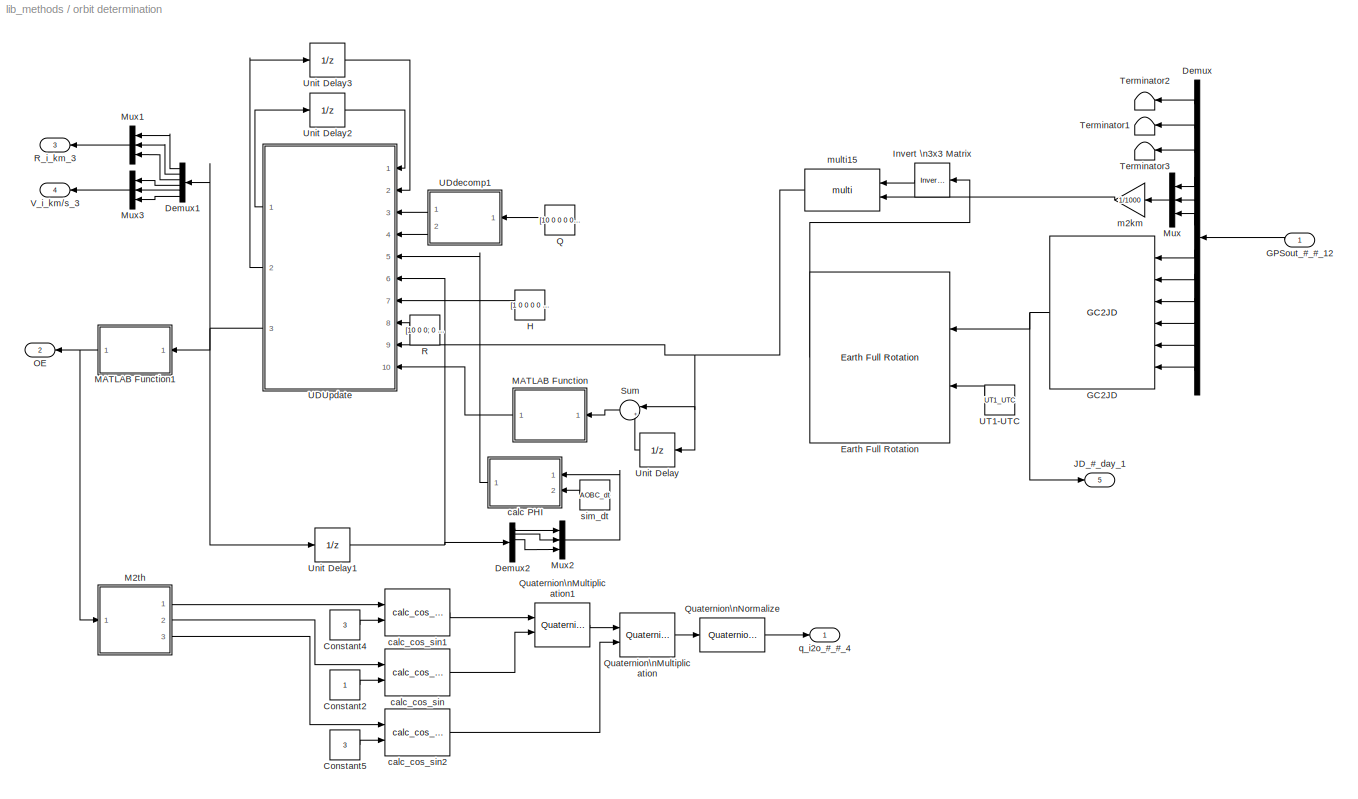
BLOCK [SubSystem] orbit determination
  FunctionWithSeparateData = off
  MaskHideContents = off
  MinAlgLoopOccurrences = off
  Opaque = off
  Ports = [1, 5]
  PropExecContextOutsideSubsystem = off
  RTWSystemCode = Auto
  RequestExecContextInheritance = off
  SID = 1607
BLOCK [Constant] orbit determination/Constant2
  SID = 1610
BLOCK [Constant] orbit determination/Constant4
  SID = 1611
  Value = 3
BLOCK [Constant] orbit determination/Constant5
  SID = 1612
  Value = 3
BLOCK [Demux] orbit determination/Demux
  DisplayOption = bar
  Outputs = 12
  Ports = [1, 12]
  SID = 1613
BLOCK [Demux] orbit determination/Demux1
  DisplayOption = bar
  Outputs = 6
  Ports = [1, 6]
  SID = 1614
BLOCK [Demux] orbit determination/Demux2
  DisplayOption = bar
  Outputs = 6
  Ports = [1, 6]
  SID = 1615
BLOCK [Reference] orbit determination/Earth Full Rotation  REF=lib_astrodynamics/Earth Full Rotation  (lib defined in mdl_a29f7b0aead9)
  Ports = [2, 1]
  SID = 1616
  SourceBlock = lib_astrodynamics/Earth Full Rotation
  SourceType = SubSystem
BLOCK [Reference] orbit determination/GC2JD  REF=lib_util/GC2JD  (lib defined in mdl_263c60253fa7)
  Ports = [6, 1]
  SID = 1617
  SourceBlock = lib_util/GC2JD
  SourceType = SubSystem
BLOCK [Inport] orbit determination/GPSout_#_#_12
  IconDisplay = Port number
  SID = 1608
BLOCK [Constant] orbit determination/H
  SID = 1618
  Value = [1 0 0 0 0 0; 0 1 0 0 0 0; 0 0 1 0 0 0]
  VectorParams1D = off
BLOCK [Reference] orbit determination/Invert \n3x3 Matrix  REF=aerolibutil/Invert \n3x3 Matrix
  Ports = [1, 1]
  SID = 1620
  SourceBlock = aerolibutil/Invert \n3x3 Matrix
  SourceType = Invert 3x3 Matrix
BLOCK [Outport] orbit determination/JD_#_day_1
  IconDisplay = Port number
  Port = 5
  SID = 1662
BLOCK [SubSystem] orbit determination/M2th
  ErrorFcn = Stateflow.Translate.translate
  FunctionWithSeparateData = off
  MaskDescription = Embedded MATLAB block
  MaskDisplay = bgColor = Simulink.Root.ColorString2Rgb(get_param(gcbh, 'BackgroundColor')); image(imread('private/eml_membrane_16.png','png','BackgroundColor',bgColor(1:3)),'center'); disp([10 10 'OEfcn']);
  MaskHideContents = off
  MaskIconFrame = on
  MaskIconOpaque = off
  MaskIconRotate = none
  MaskIconUnits = normalized
  MaskPortRotate = default
  MaskSelfModifiable = on
  MaskType = Stateflow
  MinAlgLoopOccurrences = off
  Opaque = off
  PermitHierarchicalResolution = ExplicitOnly
  Ports = [1, 3]
  PropExecContextOutsideSubsystem = off
  RTWSystemCode = Auto
  RequestExecContextInheritance = off
  SID = 1622
  TreatAsAtomicUnit = on
BLOCK [Demux] orbit determination/M2th/ Demux 
  Outputs = 1
  Ports = [1, 1]
  SID = 1622::15
BLOCK [S-Function] orbit determination/M2th/ SFunction 
  EnableBusSupport = on
  FunctionName = sf_sfun
  PortCounts = [1 4]
  Ports = [1, 4]
  SID = 1622::14
  Tag = Stateflow S-Function lib_methods 52
BLOCK [Terminator] orbit determination/M2th/ Terminator 
  SID = 1622::17
BLOCK [Inport] orbit determination/M2th/OE
  IconDisplay = Port number
  SID = 1622::19
BLOCK [Outport] orbit determination/M2th/W
  IconDisplay = Port number
  SID = 1622::20
BLOCK [Outport] orbit determination/M2th/i
  IconDisplay = Port number
  Port = 2
  SID = 1622::21
BLOCK [Outport] orbit determination/M2th/u
  IconDisplay = Port number
  Port = 3
  SID = 1622::22
BLOCK [SubSystem] orbit determination/MATLAB Function
  ErrorFcn = Stateflow.Translate.translate
  FunctionWithSeparateData = off
  MaskDescription = Embedded MATLAB block
  MaskHideContents = off
  MaskIconFrame = on
  MaskIconOpaque = off
  MaskIconRotate = none
  MaskIconUnits = normalized
  MaskPortRotate = default
  MaskSelfModifiable = on
  MaskType = Stateflow
  MinAlgLoopOccurrences = off
  Opaque = off
  PermitHierarchicalResolution = ExplicitOnly
  Ports = [1, 1]
  PropExecContextOutsideSubsystem = off
  RTWSystemCode = Auto
  RequestExecContextInheritance = off
  SID = 1623
  TreatAsAtomicUnit = on
BLOCK [Demux] orbit determination/MATLAB Function/ Demux 
  Outputs = 1
  Ports = [1, 1]
  SID = 1623::15
BLOCK [S-Function] orbit determination/MATLAB Function/ SFunction 
  EnableBusSupport = on
  FunctionName = sf_sfun
  PortCounts = [1 2]
  Ports = [1, 2]
  SID = 1623::14
  Tag = Stateflow S-Function lib_methods 26
BLOCK [Terminator] orbit determination/MATLAB Function/ Terminator 
  SID = 1623::17
BLOCK [Inport] orbit determination/MATLAB Function/u
  IconDisplay = Port number
  SID = 1623::1
BLOCK [Outport] orbit determination/MATLAB Function/y
  IconDisplay = Port number
  SID = 1623::5
BLOCK [SubSystem] orbit determination/MATLAB Function1
  ErrorFcn = Stateflow.Translate.translate
  FunctionWithSeparateData = off
  MaskDescription = Embedded MATLAB block
  MaskDisplay = bgColor = Simulink.Root.ColorString2Rgb(get_param(gcbh, 'BackgroundColor')); image(imread('private/eml_membrane_16.png','png','BackgroundColor',bgColor(1:3)),'center'); disp([10 10 'OEfcn']);
  MaskHideContents = off
  MaskIconFrame = on
  MaskIconOpaque = off
  MaskIconRotate = none
  MaskIconUnits = normalized
  MaskPortRotate = default
  MaskSelfModifiable = on
  MaskType = Stateflow
  MinAlgLoopOccurrences = off
  Opaque = off
  PermitHierarchicalResolution = ExplicitOnly
  Ports = [1, 1]
  PropExecContextOutsideSubsystem = off
  RTWSystemCode = Auto
  RequestExecContextInheritance = off
  SID = 1624
  TreatAsAtomicUnit = on
BLOCK [Demux] orbit determination/MATLAB Function1/ Demux 
  Outputs = 1
  Ports = [1, 1]
  SID = 1624::15
BLOCK [S-Function] orbit determination/MATLAB Function1/ SFunction 
  EnableBusSupport = on
  FunctionName = sf_sfun
  PortCounts = [1 2]
  Ports = [1, 2]
  SID = 1624::14
  Tag = Stateflow S-Function lib_methods 51
BLOCK [Terminator] orbit determination/MATLAB Function1/ Terminator 
  SID = 1624::17
BLOCK [Outport] orbit determination/MATLAB Function1/OE
  IconDisplay = Port number
  SID = 1624::5
BLOCK [Inport] orbit determination/MATLAB Function1/RV
  IconDisplay = Port number
  SID = 1624::1
BLOCK [Mux] orbit determination/Mux
  DisplayOption = bar
  Inputs = 3
  Ports = [3, 1]
  SID = 1625
BLOCK [Mux] orbit determination/Mux1
  DisplayOption = bar
  Inputs = 3
  Ports = [3, 1]
  SID = 1626
BLOCK [Mux] orbit determination/Mux2
  DisplayOption = bar
  Inputs = 3
  Ports = [3, 1]
  SID = 1627
BLOCK [Mux] orbit determination/Mux3
  DisplayOption = bar
  Inputs = 3
  Ports = [3, 1]
  SID = 1628
BLOCK [Outport] orbit determination/OE
  IconDisplay = Port number
  Port = 2
  SID = 1659
BLOCK [Constant] orbit determination/Q
  SID = 1629
  Value = [10 0 0 0 0 0; 0 10 0 0 0 0; 0 0 10 0 0 0; 0 0 0 10 0 0; 0 0 0 0 10 0; 0 0 0 0 0 10]/1000
BLOCK [Reference] orbit determination/Quaternion\nMultiplication  REF=aerolibutil/Quaternion\nMultiplication
  Ports = [2, 1]
  SID = 1630
  SourceBlock = aerolibutil/Quaternion\nMultiplication
  SourceType = Quaternion Multiplication
BLOCK [Reference] orbit determination/Quaternion\nMultiplication1  REF=aerolibutil/Quaternion\nMultiplication
  Ports = [2, 1]
  SID = 1631
  SourceBlock = aerolibutil/Quaternion\nMultiplication
  SourceType = Quaternion Multiplication
BLOCK [Reference] orbit determination/Quaternion\nNormalize  REF=aerolibutil/Quaternion\nNormalize
  Ports = [1, 1]
  SID = 1632
  SourceBlock = aerolibutil/Quaternion\nNormalize
  SourceType = Quaternion Normalize
BLOCK [Constant] orbit determination/R
  SID = 1633
  Value = [10 0 0; 0 10 0; 0 0 10]/1000
BLOCK [Outport] orbit determination/R_i_km_3
  IconDisplay = Port number
  Port = 3
  SID = 1660
BLOCK [Sum] orbit determination/Sum
  IconShape = round
  InputSameDT = off
  Inputs = |+-
  OutDataTypeStr = Inherit: Inherit via internal rule
  Ports = [2, 1]
  SID = 1634
  SaturateOnIntegerOverflow = off
BLOCK [Terminator] orbit determination/Terminator1
  SID = 1635
BLOCK [Terminator] orbit determination/Terminator2
  SID = 1636
BLOCK [Terminator] orbit determination/Terminator3
  SID = 1637
BLOCK [SubSystem] orbit determination/UDUpdate
  ErrorFcn = Stateflow.Translate.translate
  FunctionWithSeparateData = off
  MaskDescription = Embedded MATLAB block
  MaskHideContents = off
  MaskIconFrame = on
  MaskIconOpaque = off
  MaskIconRotate = none
  MaskIconUnits = normalized
  MaskPortRotate = default
  MaskSelfModifiable = on
  MaskType = Stateflow
  MinAlgLoopOccurrences = off
  Opaque = off
  PermitHierarchicalResolution = ExplicitOnly
  Ports = [10, 3]
  PropExecContextOutsideSubsystem = off
  RTWSystemCode = Auto
  RequestExecContextInheritance = off
  SID = 1638
  TreatAsAtomicUnit = on
BLOCK [Demux] orbit determination/UDUpdate/ Demux 
  Outputs = 1
  Ports = [1, 1]
  SID = 1638::32
BLOCK [S-Function] orbit determination/UDUpdate/ SFunction 
  EnableBusSupport = off
  FunctionName = sf_sfun
  PortCounts = [10 4]
  Ports = [10, 4]
  SID = 1638::31
  Tag = Stateflow S-Function lib_methods 27
BLOCK [Terminator] orbit determination/UDUpdate/ Terminator 
  SID = 1638::34
BLOCK [Inport] orbit determination/UDUpdate/DP
  IconDisplay = Port number
  Port = 2
  SID = 1638::21
BLOCK [Outport] orbit determination/UDUpdate/DP1
  IconDisplay = Port number
  Port = 2
  SID = 1638::20
BLOCK [Inport] orbit determination/UDUpdate/DQ
  IconDisplay = Port number
  Port = 4
  SID = 1638::23
BLOCK [Inport] orbit determination/UDUpdate/H
  IconDisplay = Port number
  Port = 7
  SID = 1638::27
BLOCK [Inport] orbit determination/UDUpdate/ObsUpdate
  IconDisplay = Port number
  Port = 10
  SID = 1638::30
BLOCK [Inport] orbit determination/UDUpdate/PHI
  IconDisplay = Port number
  Port = 5
  SID = 1638::24
BLOCK [Inport] orbit determination/UDUpdate/R
  IconDisplay = Port number
  Port = 8
  SID = 1638::28
BLOCK [Inport] orbit determination/UDUpdate/UP
  IconDisplay = Port number
  SID = 1638::1
BLOCK [Outport] orbit determination/UDUpdate/UP1
  IconDisplay = Port number
  SID = 1638::5
BLOCK [Inport] orbit determination/UDUpdate/UQ
  IconDisplay = Port number
  Port = 3
  SID = 1638::22
BLOCK [Inport] orbit determination/UDUpdate/x
  IconDisplay = Port number
  Port = 6
  SID = 1638::25
BLOCK [Outport] orbit determination/UDUpdate/x1
  IconDisplay = Port number
  Port = 3
  SID = 1638::26
BLOCK [Inport] orbit determination/UDUpdate/y
  IconDisplay = Port number
  Port = 9
  SID = 1638::29
BLOCK [SubSystem] orbit determination/UDdecomp1
  ErrorFcn = Stateflow.Translate.translate
  FunctionWithSeparateData = off
  MaskDescription = Embedded MATLAB block
  MaskHideContents = off
  MaskIconFrame = on
  MaskIconOpaque = off
  MaskIconRotate = none
  MaskIconUnits = normalized
  MaskPortRotate = default
  MaskSelfModifiable = on
  MaskType = Stateflow
  MinAlgLoopOccurrences = off
  Opaque = off
  PermitHierarchicalResolution = ExplicitOnly
  Ports = [1, 2]
  PropExecContextOutsideSubsystem = off
  RTWSystemCode = Auto
  RequestExecContextInheritance = off
  SID = 1639
  TreatAsAtomicUnit = on
BLOCK [Demux] orbit determination/UDdecomp1/ Demux 
  Outputs = 1
  Ports = [1, 1]
  SID = 1639::22
BLOCK [S-Function] orbit determination/UDdecomp1/ SFunction 
  EnableBusSupport = off
  FunctionName = sf_sfun
  PortCounts = [1 3]
  Ports = [1, 3]
  SID = 1639::21
  Tag = Stateflow S-Function lib_methods 28
BLOCK [Terminator] orbit determination/UDdecomp1/ Terminator 
  SID = 1639::24
BLOCK [Outport] orbit determination/UDdecomp1/D
  IconDisplay = Port number
  Port = 2
  SID = 1639::20
BLOCK [Inport] orbit determination/UDdecomp1/P
  IconDisplay = Port number
  SID = 1639::1
BLOCK [Outport] orbit determination/UDdecomp1/U
  IconDisplay = Port number
  SID = 1639::5
BLOCK [Constant] orbit determination/UT1-UTC
  SID = 1640
  Value = UT1_UTC
BLOCK [UnitDelay] orbit determination/Unit Delay
  InputProcessing = Elements as channels (sample based)
  SID = 1642
  SampleTime = AOBC_dt
  X0 = [7000; 0; 0]
BLOCK [UnitDelay] orbit determination/Unit Delay1
  InputProcessing = Elements as channels (sample based)
  SID = 1643
  SampleTime = AOBC_dt
  X0 = [7000; 7000; 7000; 7; 7; 7]
BLOCK [UnitDelay] orbit determination/Unit Delay2
  InputProcessing = Elements as channels (sample based)
  SID = 1644
  SampleTime = AOBC_dt
  X0 = [1 2 3 4 5 6; 0 1 2 3 4 5; 0 0 1 2 3 4; 0 0 0 1 2 3; 0 0 0 0 1 2; 0 0 0 0 0 1]
BLOCK [UnitDelay] orbit determination/Unit Delay3
  InputProcessing = Elements as channels (sample based)
  SID = 1645
  SampleTime = AOBC_dt
  X0 = [10 0 0 0 0 0; 0 10 0 0 0 0; 0 0 10 0 0 0; 0 0 0 10 0 0; 0 0 0 0 10 0; 0 0 0 0 0 10]
BLOCK [Outport] orbit determination/V_i_km//s_3
  IconDisplay = Port number
  Port = 4
  SID = 1661
BLOCK [SubSystem] orbit determination/calc PHI
  ErrorFcn = Stateflow.Translate.translate
  FunctionWithSeparateData = off
  MaskDescription = Embedded MATLAB block
  MaskHideContents = off
  MaskIconFrame = on
  MaskIconOpaque = off
  MaskIconRotate = none
  MaskIconUnits = normalized
  MaskPortRotate = default
  MaskSelfModifiable = on
  MaskType = Stateflow
  MinAlgLoopOccurrences = off
  Opaque = off
  PermitHierarchicalResolution = ExplicitOnly
  Ports = [2, 1]
  PropExecContextOutsideSubsystem = off
  RTWSystemCode = Auto
  RequestExecContextInheritance = off
  SID = 1646
  TreatAsAtomicUnit = on
BLOCK [Demux] orbit determination/calc PHI/ Demux 
  Outputs = 1
  Ports = [1, 1]
  SID = 1646::15
BLOCK [S-Function] orbit determination/calc PHI/ SFunction 
  EnableBusSupport = on
  FunctionName = sf_sfun
  PortCounts = [2 2]
  Ports = [2, 2]
  SID = 1646::14
  Tag = Stateflow S-Function lib_methods 30
BLOCK [Terminator] orbit determination/calc PHI/ Terminator 
  SID = 1646::17
BLOCK [Outport] orbit determination/calc PHI/PHI
  IconDisplay = Port number
  SID = 1646::5
BLOCK [Inport] orbit determination/calc PHI/dt
  IconDisplay = Port number
  Port = 2
  SID = 1646::18
BLOCK [Inport] orbit determination/calc PHI/rIJK
  IconDisplay = Port number
  SID = 1646::1
BLOCK [Reference] orbit determination/calc_cos_sin  REF=lib_util/calc_cos_sin  (lib defined in mdl_263c60253fa7)
  Ports = [2, 1]
  SID = 1647
  SourceBlock = lib_util/calc_cos_sin
  SourceType = SubSystem
BLOCK [Reference] orbit determination/calc_cos_sin1  REF=lib_util/calc_cos_sin  (lib defined in mdl_263c60253fa7)
  Ports = [2, 1]
  SID = 1648
  SourceBlock = lib_util/calc_cos_sin
  SourceType = SubSystem
BLOCK [Reference] orbit determination/calc_cos_sin2  REF=lib_util/calc_cos_sin  (lib defined in mdl_263c60253fa7)
  Ports = [2, 1]
  SID = 1649
  SourceBlock = lib_util/calc_cos_sin
  SourceType = SubSystem
BLOCK [Gain] orbit determination/m2km
  Gain = 1/1000
  OutDataTypeStr = Inherit: Inherit via internal rule
  ParamDataTypeStr = Inherit: Inherit via internal rule
  SID = 1651
  SaturateOnIntegerOverflow = off
BLOCK [Reference] orbit determination/multi15  REF=lib_util/multi  (lib defined in mdl_263c60253fa7)
  Ports = [2, 1]
  SID = 1653
  SourceBlock = lib_util/multi
  SourceType = SubSystem
BLOCK [Outport] orbit determination/q_i2o_#_#_4
  IconDisplay = Port number
  SID = 1658
BLOCK [Constant] orbit determination/sim_dt
  SID = 1655
  Value = AOBC_dt
BLOCK [SubSystem] q_method
  ErrorFcn = Stateflow.Translate.translate
  FunctionWithSeparateData = off
  MaskDescription = Embedded MATLAB block
  MaskHideContents = off
  MaskIconFrame = on
  MaskIconOpaque = off
  MaskIconRotate = none
  MaskIconUnits = normalized
  MaskPortRotate = default
  MaskSelfModifiable = on
  MaskType = Stateflow
  MinAlgLoopOccurrences = off
  Opaque = off
  PermitHierarchicalResolution = ExplicitOnly
  Ports = [4, 1]
  PropExecContextOutsideSubsystem = off
  RTWSystemCode = Auto
  RequestExecContextInheritance = off
  SID = 2767
  TreatAsAtomicUnit = on
BLOCK [Demux] q_method/ Demux 
  Outputs = 1
  Ports = [1, 1]
  SID = 2767::15
BLOCK [S-Function] q_method/ SFunction 
  EnableBusSupport = on
  FunctionName = sf_sfun
  PortCounts = [4 2]
  Ports = [4, 2]
  SID = 2767::14
  Tag = Stateflow S-Function lib_methods 41
BLOCK [Terminator] q_method/ Terminator 
  SID = 2767::17
BLOCK [Inport] q_method/r1_b
  IconDisplay = Port number
  Port = 3
  SID = 2767::19
BLOCK [Inport] q_method/r1_i
  IconDisplay = Port number
  SID = 2767::1
BLOCK [Inport] q_method/r2_b
  IconDisplay = Port number
  Port = 4
  SID = 2767::20
BLOCK [Inport] q_method/r2_i
  IconDisplay = Port number
  Port = 2
  SID = 2767::18
BLOCK [Outport] q_method/y
  IconDisplay = Port number
  SID = 2767::5
BLOCK [SubSystem] sun2rate
  FunctionWithSeparateData = off
  MaskHideContents = off
  MinAlgLoopOccurrences = off
  Opaque = off
  Ports = [2, 2]
  PropExecContextOutsideSubsystem = off
  RTWSystemCode = Auto
  RequestExecContextInheritance = off
  SID = 163
BLOCK [Constant] sun2rate/Constant
  SID = 166
  Value = 10*dt
BLOCK [Constant] sun2rate/Constant2
  SID = 167
  Value = [0; 0; 0]
BLOCK [Constant] sun2rate/Constant3
  SID = 168
BLOCK [Constant] sun2rate/Constant4
  SID = 169
  Value = 0
BLOCK [Constant] sun2rate/Constant5
  SID = 170
  Value = 10
BLOCK [Product] sun2rate/Divide1
  InputSameDT = off
  Inputs = */
  OutDataTypeStr = Inherit: Inherit via internal rule
  Ports = [2, 1]
  RndMeth = Floor
  SID = 171
  SaturateOnIntegerOverflow = off
BLOCK [Product] sun2rate/Divide2
  InputSameDT = off
  Inputs = */
  OutDataTypeStr = Inherit: Inherit via internal rule
  Ports = [2, 1]
  RndMeth = Floor
  SID = 172
  SaturateOnIntegerOverflow = off
BLOCK [Integrator] sun2rate/Integrator1
  ExternalReset = rising
  Ports = [2, 1]
  SID = 173
BLOCK [Integrator] sun2rate/Integrator2
  ExternalReset = rising
  Ports = [2, 1]
  SID = 174
BLOCK [SubSystem] sun2rate/MATLAB Function
  ErrorFcn = Stateflow.Translate.translate
  FunctionWithSeparateData = off
  MaskDescription = Embedded MATLAB block
  MaskHideContents = off
  MaskIconFrame = on
  MaskIconOpaque = off
  MaskIconRotate = none
  MaskIconUnits = normalized
  MaskPortRotate = default
  MaskSelfModifiable = on
  MaskType = Stateflow
  MinAlgLoopOccurrences = off
  Opaque = off
  PermitHierarchicalResolution = ExplicitOnly
  Ports = [4, 1]
  PropExecContextOutsideSubsystem = off
  RTWSystemCode = Auto
  RequestExecContextInheritance = off
  SID = 175
  TreatAsAtomicUnit = on
BLOCK [Demux] sun2rate/MATLAB Function/ Demux 
  Outputs = 1
  Ports = [1, 1]
  SID = 175::15
BLOCK [S-Function] sun2rate/MATLAB Function/ SFunction 
  EnableBusSupport = on
  FunctionName = sf_sfun
  PortCounts = [4 2]
  Ports = [4, 2]
  SID = 175::14
  Tag = Stateflow S-Function lib_methods 12
BLOCK [Terminator] sun2rate/MATLAB Function/ Terminator 
  SID = 175::17
BLOCK [Inport] sun2rate/MATLAB Function/dt
  IconDisplay = Port number
  Port = 4
  SID = 175::22
BLOCK [Outport] sun2rate/MATLAB Function/rate
  IconDisplay = Port number
  SID = 175::5
BLOCK [Inport] sun2rate/MATLAB Function/sun0
  IconDisplay = Port number
  SID = 175::18
BLOCK [Inport] sun2rate/MATLAB Function/sun1
  IconDisplay = Port number
  Port = 2
  SID = 175::19
BLOCK [Inport] sun2rate/MATLAB Function/sun2
  IconDisplay = Port number
  Port = 3
  SID = 175::1
BLOCK [DiscretePulseGenerator] sun2rate/Pulse\nGenerator
  Period = 10
  PhaseDelay = dt
  Ports = [0, 1]
  PulseType = Time based
  PulseWidth = 5
  SID = 176
BLOCK [DiscretePulseGenerator] sun2rate/Pulse\nGenerator1
  Period = 10
  PhaseDelay = dt
  Ports = [0, 1]
  PulseType = Time based
  PulseWidth = 5
  SID = 177
BLOCK [RateTransition] sun2rate/Rate Transition1
  Deterministic = off
  OutPortSampleTime = 10
  SID = 178
BLOCK [RateTransition] sun2rate/Rate Transition2
  Deterministic = off
  OutPortSampleTime = 0
  SID = 179
BLOCK [RateTransition] sun2rate/Rate Transition3
  Deterministic = off
  OutPortSampleTime = 10
  SID = 180
BLOCK [RateTransition] sun2rate/Rate Transition4
  Deterministic = off
  OutPortSampleTime = 0
  SID = 181
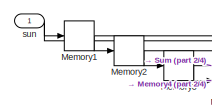
[diagram: sun2rate/Subsystem - part 1/4, top left region]
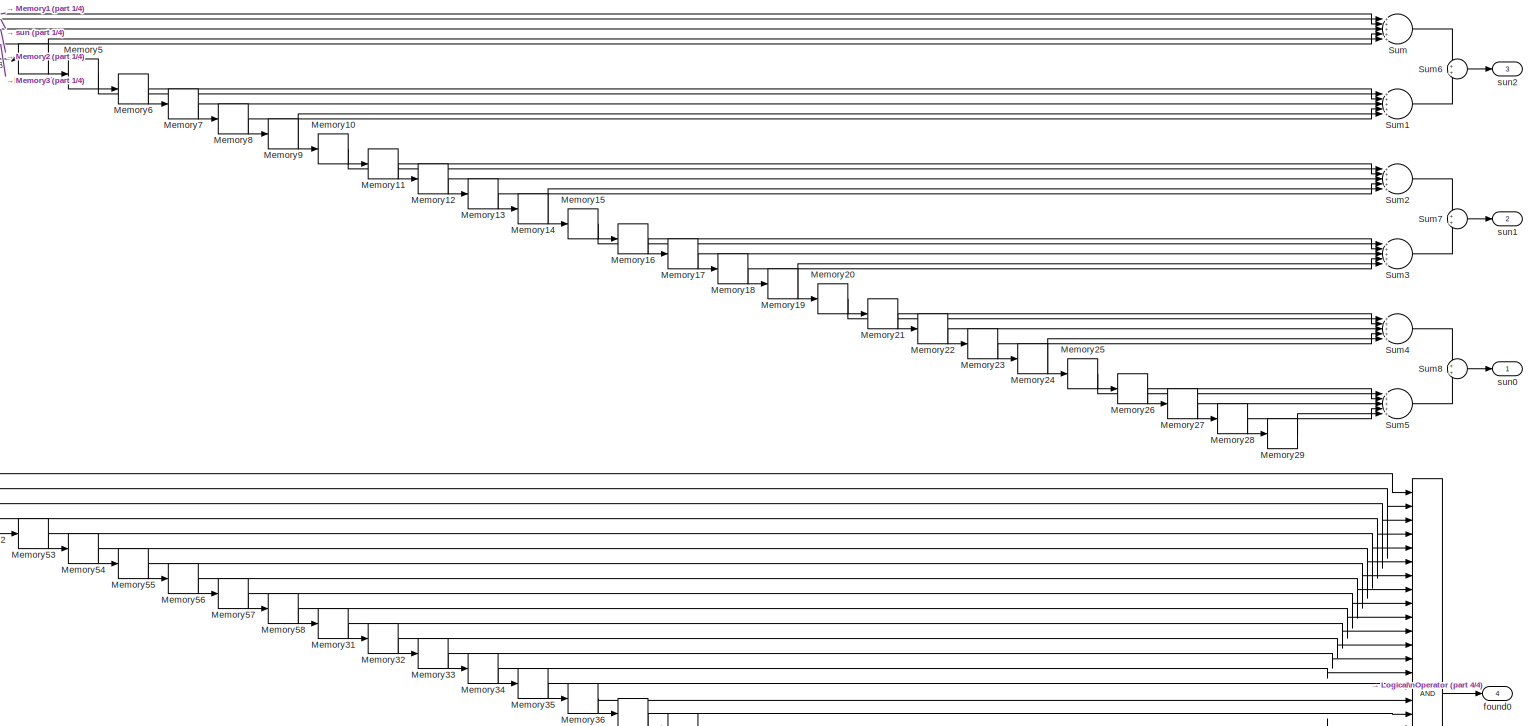
[diagram: sun2rate/Subsystem - part 2/4, full width, middle band]
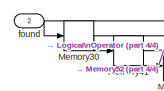
[diagram: sun2rate/Subsystem - part 3/4, middle left region]
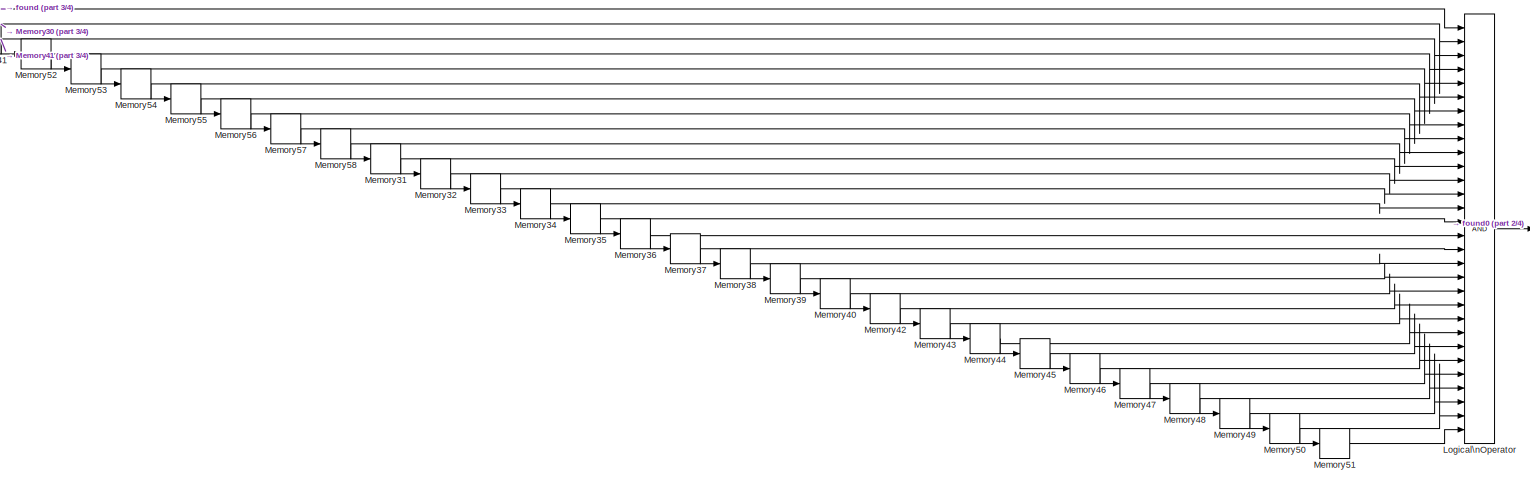
[diagram: sun2rate/Subsystem - part 4/4, full width, bottom band]
BLOCK [SubSystem] sun2rate/Subsystem
  FunctionWithSeparateData = off
  MaskHideContents = off
  MinAlgLoopOccurrences = off
  Opaque = off
  Ports = [2, 4]
  PropExecContextOutsideSubsystem = off
  RTWSystemCode = Auto
  RequestExecContextInheritance = off
  SID = 182
BLOCK [Logic] sun2rate/Subsystem/Logical\nOperator
  AllPortsSameDT = off
  Inputs = 30
  OutDataTypeStr = boolean
  Ports = [30, 1]
  SID = 185
BLOCK [Memory] sun2rate/Subsystem/Memory1
  SID = 186
  X0 = [0;0;0]
BLOCK [Memory] sun2rate/Subsystem/Memory10
  SID = 187
  X0 = [0;0;0]
BLOCK [Memory] sun2rate/Subsystem/Memory11
  SID = 188
  X0 = [0;0;0]
BLOCK [Memory] sun2rate/Subsystem/Memory12
  SID = 189
  X0 = [0;0;0]
BLOCK [Memory] sun2rate/Subsystem/Memory13
  SID = 190
  X0 = [0;0;0]
BLOCK [Memory] sun2rate/Subsystem/Memory14
  SID = 191
  X0 = [0;0;0]
BLOCK [Memory] sun2rate/Subsystem/Memory15
  SID = 192
  X0 = [0;0;0]
BLOCK [Memory] sun2rate/Subsystem/Memory16
  SID = 193
  X0 = [0;0;0]
BLOCK [Memory] sun2rate/Subsystem/Memory17
  SID = 194
  X0 = [0;0;0]
BLOCK [Memory] sun2rate/Subsystem/Memory18
  SID = 195
  X0 = [0;0;0]
BLOCK [Memory] sun2rate/Subsystem/Memory19
  SID = 196
  X0 = [0;0;0]
BLOCK [Memory] sun2rate/Subsystem/Memory2
  SID = 197
  X0 = [0;0;0]
BLOCK [Memory] sun2rate/Subsystem/Memory20
  SID = 198
  X0 = [0;0;0]
BLOCK [Memory] sun2rate/Subsystem/Memory21
  SID = 199
  X0 = [0;0;0]
BLOCK [Memory] sun2rate/Subsystem/Memory22
  SID = 200
  X0 = [0;0;0]
BLOCK [Memory] sun2rate/Subsystem/Memory23
  SID = 201
  X0 = [0;0;0]
BLOCK [Memory] sun2rate/Subsystem/Memory24
  SID = 202
  X0 = [0;0;0]
BLOCK [Memory] sun2rate/Subsystem/Memory25
  SID = 203
  X0 = [0;0;0]
BLOCK [Memory] sun2rate/Subsystem/Memory26
  SID = 204
  X0 = [0;0;0]
BLOCK [Memory] sun2rate/Subsystem/Memory27
  SID = 205
  X0 = [0;0;0]
BLOCK [Memory] sun2rate/Subsystem/Memory28
  SID = 206
  X0 = [0;0;0]
BLOCK [Memory] sun2rate/Subsystem/Memory29
  SID = 207
  X0 = [0;0;0]
BLOCK [Memory] sun2rate/Subsystem/Memory3
  SID = 208
  X0 = [0;0;0]
BLOCK [Memory] sun2rate/Subsystem/Memory30
  SID = 209
BLOCK [Memory] sun2rate/Subsystem/Memory31
  SID = 210
BLOCK [Memory] sun2rate/Subsystem/Memory32
  SID = 211
BLOCK [Memory] sun2rate/Subsystem/Memory33
  SID = 212
BLOCK [Memory] sun2rate/Subsystem/Memory34
  SID = 213
BLOCK [Memory] sun2rate/Subsystem/Memory35
  SID = 214
BLOCK [Memory] sun2rate/Subsystem/Memory36
  SID = 215
BLOCK [Memory] sun2rate/Subsystem/Memory37
  SID = 216
BLOCK [Memory] sun2rate/Subsystem/Memory38
  SID = 217
BLOCK [Memory] sun2rate/Subsystem/Memory39
  SID = 218
BLOCK [Memory] sun2rate/Subsystem/Memory4
  SID = 219
  X0 = [0;0;0]
BLOCK [Memory] sun2rate/Subsystem/Memory40
  SID = 220
BLOCK [Memory] sun2rate/Subsystem/Memory41
  SID = 221
BLOCK [Memory] sun2rate/Subsystem/Memory42
  SID = 222
BLOCK [Memory] sun2rate/Subsystem/Memory43
  SID = 223
BLOCK [Memory] sun2rate/Subsystem/Memory44
  SID = 224
BLOCK [Memory] sun2rate/Subsystem/Memory45
  SID = 225
BLOCK [Memory] sun2rate/Subsystem/Memory46
  SID = 226
BLOCK [Memory] sun2rate/Subsystem/Memory47
  SID = 227
BLOCK [Memory] sun2rate/Subsystem/Memory48
  SID = 228
BLOCK [Memory] sun2rate/Subsystem/Memory49
  SID = 229
BLOCK [Memory] sun2rate/Subsystem/Memory5
  SID = 230
  X0 = [0;0;0]
BLOCK [Memory] sun2rate/Subsystem/Memory50
  SID = 231
BLOCK [Memory] sun2rate/Subsystem/Memory51
  SID = 232
BLOCK [Memory] sun2rate/Subsystem/Memory52
  SID = 233
BLOCK [Memory] sun2rate/Subsystem/Memory53
  SID = 234
BLOCK [Memory] sun2rate/Subsystem/Memory54
  SID = 235
BLOCK [Memory] sun2rate/Subsystem/Memory55
  SID = 236
BLOCK [Memory] sun2rate/Subsystem/Memory56
  SID = 237
BLOCK [Memory] sun2rate/Subsystem/Memory57
  SID = 238
BLOCK [Memory] sun2rate/Subsystem/Memory58
  SID = 239
BLOCK [Memory] sun2rate/Subsystem/Memory6
  SID = 240
  X0 = [0;0;0]
BLOCK [Memory] sun2rate/Subsystem/Memory7
  SID = 241
  X0 = [0;0;0]
BLOCK [Memory] sun2rate/Subsystem/Memory8
  SID = 242
  X0 = [0;0;0]
BLOCK [Memory] sun2rate/Subsystem/Memory9
  SID = 243
  X0 = [0;0;0]
BLOCK [Sum] sun2rate/Subsystem/Sum
  IconShape = round
  InputSameDT = off
  Inputs = +++++
  OutDataTypeStr = Inherit: Inherit via internal rule
  Ports = [5, 1]
  SID = 244
  SaturateOnIntegerOverflow = off
BLOCK [Sum] sun2rate/Subsystem/Sum1
  IconShape = round
  InputSameDT = off
  Inputs = +++++
  OutDataTypeStr = Inherit: Inherit via internal rule
  Ports = [5, 1]
  SID = 245
  SaturateOnIntegerOverflow = off
BLOCK [Sum] sun2rate/Subsystem/Sum2
  IconShape = round
  InputSameDT = off
  Inputs = +++++
  OutDataTypeStr = Inherit: Inherit via internal rule
  Ports = [5, 1]
  SID = 246
  SaturateOnIntegerOverflow = off
BLOCK [Sum] sun2rate/Subsystem/Sum3
  IconShape = round
  InputSameDT = off
  Inputs = +++++
  OutDataTypeStr = Inherit: Inherit via internal rule
  Ports = [5, 1]
  SID = 247
  SaturateOnIntegerOverflow = off
BLOCK [Sum] sun2rate/Subsystem/Sum4
  IconShape = round
  InputSameDT = off
  Inputs = +++++
  OutDataTypeStr = Inherit: Inherit via internal rule
  Ports = [5, 1]
  SID = 248
  SaturateOnIntegerOverflow = off
BLOCK [Sum] sun2rate/Subsystem/Sum5
  IconShape = round
  InputSameDT = off
  Inputs = +++++
  OutDataTypeStr = Inherit: Inherit via internal rule
  Ports = [5, 1]
  SID = 249
  SaturateOnIntegerOverflow = off
BLOCK [Sum] sun2rate/Subsystem/Sum6
  IconShape = round
  InputSameDT = off
  OutDataTypeStr = Inherit: Inherit via internal rule
  Ports = [2, 1]
  SID = 250
  SaturateOnIntegerOverflow = off
BLOCK [Sum] sun2rate/Subsystem/Sum7
  IconShape = round
  InputSameDT = off
  OutDataTypeStr = Inherit: Inherit via internal rule
  Ports = [2, 1]
  SID = 251
  SaturateOnIntegerOverflow = off
BLOCK [Sum] sun2rate/Subsystem/Sum8
  IconShape = round
  InputSameDT = off
  OutDataTypeStr = Inherit: Inherit via internal rule
  Ports = [2, 1]
  SID = 252
  SaturateOnIntegerOverflow = off
BLOCK [Inport] sun2rate/Subsystem/found
  IconDisplay = Port number
  Port = 2
  SID = 184
BLOCK [Outport] sun2rate/Subsystem/found0
  IconDisplay = Port number
  Port = 4
  SID = 256
BLOCK [Inport] sun2rate/Subsystem/sun
  IconDisplay = Port number
  SID = 183
BLOCK [Outport] sun2rate/Subsystem/sun0
  IconDisplay = Port number
  SID = 253
BLOCK [Outport] sun2rate/Subsystem/sun1
  IconDisplay = Port number
  Port = 2
  SID = 254
BLOCK [Outport] sun2rate/Subsystem/sun2
  IconDisplay = Port number
  Port = 3
  SID = 255
BLOCK [Switch] sun2rate/Switch
  Criteria = u2 > Threshold
  InputSameDT = off
  SID = 257
  SaturateOnIntegerOverflow = off
BLOCK [Switch] sun2rate/Switch1
  Criteria = u2 > Threshold
  InputSameDT = off
  SID = 258
  SaturateOnIntegerOverflow = off
BLOCK [Inport] sun2rate/found
  IconDisplay = Port number
  Port = 2
  SID = 165
BLOCK [Outport] sun2rate/found1
  IconDisplay = Port number
  Port = 2
  SID = 260
BLOCK [Outport] sun2rate/rate_b_rad//sec_3
  IconDisplay = Port number
  SID = 259
BLOCK [Inport] sun2rate/sun
  IconDisplay = Port number
  SID = 164
BLOCK [SubSystem] trigger_box
  ErrorFcn = Stateflow.Translate.translate
  FunctionWithSeparateData = off
  MaskDescription = Embedded MATLAB block
  MaskDisplay = bgColor = Simulink.Root.ColorString2Rgb(get_param(gcbh, 'BackgroundColor')); image(imread('private/eml_membrane_16.png','png','BackgroundColor',bgColor(1:3)),'center'); disp([10 10 'trigger']);
  MaskHideContents = off
  MaskIconFrame = on
  MaskIconOpaque = off
  MaskIconRotate = none
  MaskIconUnits = normalized
  MaskPortRotate = default
  MaskSelfModifiable = on
  MaskType = Stateflow
  MinAlgLoopOccurrences = off
  Opaque = off
  PermitHierarchicalResolution = ExplicitOnly
  Ports = [4, 2]
  PropExecContextOutsideSubsystem = off
  RTWSystemCode = Auto
  RequestExecContextInheritance = off
  SID = 2283
  TreatAsAtomicUnit = on
BLOCK [Demux] trigger_box/ Demux 
  Outputs = 1
  Ports = [1, 1]
  SID = 2283::2
BLOCK [S-Function] trigger_box/ SFunction 
  EnableBusSupport = on
  FunctionName = sf_sfun
  PortCounts = [4 3]
  Ports = [4, 3]
  SID = 2283::3
  Tag = Stateflow S-Function lib_methods 22
BLOCK [Terminator] trigger_box/ Terminator 
  SID = 2283::4
BLOCK [Outport] trigger_box/c_t
  IconDisplay = Port number
  Port = 2
  SID = 2283::6
BLOCK [Inport] trigger_box/clock
  IconDisplay = Port number
  SID = 2283::1
BLOCK [Inport] trigger_box/cont_d
  IconDisplay = Port number
  Port = 4
  SID = 2283::9
BLOCK [Inport] trigger_box/m_d
  IconDisplay = Port number
  Port = 2
  SID = 2283::7
BLOCK [Outport] trigger_box/m_t
  IconDisplay = Port number
  SID = 2283::5
BLOCK [Inport] trigger_box/rest
  IconDisplay = Port number
  Port = 3
  SID = 2283::8
ANNOTATION (root): 20110920 beta versionì¬\n£S¦ª0Éß¢ê\nr1, r2ª½sA½½sÌð·é±Æ
ANNOTATION (root): 20110927 VKÇÁ\nFundamentals of Astrodynamics and Application\n2nd Edition p728-732ÅØÏÝ
ANNOTATION (root): 20110927 VKÇÁ\nnhubN p451
ANNOTATION (root): 20111212ÇÁ\ndtÌªðC³·éKv è
ANNOTATION (root): 20111212ÇÁ\n Üèg¦È¢
ANNOTATION (root): 30deg/s~
ANNOTATION (root): Attitude Control
ANNOTATION (root): Attitude Determination
ANNOTATION (root): s®S
ANNOTATION Unloading: ã<copyright redacted>\n»óÚWp¨wüª¤Ü­¢ÁÄ¢È¢ÆN®³¹È¢D\n20111105{c
ANNOTATION calc_sun_mag: 20110928 UT1-UTCðüêéÌðYêÈ¢±ÆI
LINE B2rate/B:1 -> B2rate/Subsystem:1
LINE B2rate/Constant1:1 -> B2rate/Divide1:2
LINE B2rate/Constant:1 -> B2rate/MATLAB Function:4
LINE B2rate/Divide1:1 -> B2rate/Rate Transition1:1
LINE B2rate/Integrator2:1 -> B2rate/Divide1:1
LINE B2rate/MATLAB Function/ Demux :1 -> B2rate/MATLAB Function/ Terminator :1
LINE B2rate/MATLAB Function/ SFunction :1 -> B2rate/MATLAB Function/ Demux :1
LINE B2rate/MATLAB Function/ SFunction :2 -> B2rate/MATLAB Function/rate:1
LINE B2rate/MATLAB Function/B0:1 -> B2rate/MATLAB Function/ SFunction :1
LINE B2rate/MATLAB Function/B1:1 -> B2rate/MATLAB Function/ SFunction :2
LINE B2rate/MATLAB Function/B2:1 -> B2rate/MATLAB Function/ SFunction :3
LINE B2rate/MATLAB Function/dt:1 -> B2rate/MATLAB Function/ SFunction :4
LINE B2rate/MATLAB Function:1 -> B2rate/Integrator2:1
LINE B2rate/Pulse\nGenerator:1 -> B2rate/Integrator2:2
LINE B2rate/Rate Transition1:1 -> B2rate/Rate Transition2:1
LINE B2rate/Rate Transition2:1 -> B2rate/rate_b_rad//sec_3:1
NET B2rate/Subsystem/B:1 -> B2rate/Subsystem/Memory1:1, B2rate/Subsystem/Sum:1
NET B2rate/Subsystem/Memory10:1 -> B2rate/Subsystem/Memory11:1, B2rate/Subsystem/Sum2:1
NET B2rate/Subsystem/Memory11:1 -> B2rate/Subsystem/Memory12:1, B2rate/Subsystem/Sum2:2
NET B2rate/Subsystem/Memory12:1 -> B2rate/Subsystem/Memory13:1, B2rate/Subsystem/Sum2:3
NET B2rate/Subsystem/Memory13:1 -> B2rate/Subsystem/Memory14:1, B2rate/Subsystem/Sum2:4
NET B2rate/Subsystem/Memory14:1 -> B2rate/Subsystem/Memory15:1, B2rate/Subsystem/Sum2:5
NET B2rate/Subsystem/Memory15:1 -> B2rate/Subsystem/Memory16:1, B2rate/Subsystem/Sum3:1
NET B2rate/Subsystem/Memory16:1 -> B2rate/Subsystem/Memory17:1, B2rate/Subsystem/Sum3:2
NET B2rate/Subsystem/Memory17:1 -> B2rate/Subsystem/Memory18:1, B2rate/Subsystem/Sum3:3
NET B2rate/Subsystem/Memory18:1 -> B2rate/Subsystem/Memory19:1, B2rate/Subsystem/Sum3:4
NET B2rate/Subsystem/Memory19:1 -> B2rate/Subsystem/Memory20:1, B2rate/Subsystem/Sum3:5
NET B2rate/Subsystem/Memory1:1 -> B2rate/Subsystem/Memory2:1, B2rate/Subsystem/Sum:2
NET B2rate/Subsystem/Memory20:1 -> B2rate/Subsystem/Memory21:1, B2rate/Subsystem/Sum4:1
NET B2rate/Subsystem/Memory21:1 -> B2rate/Subsystem/Memory22:1, B2rate/Subsystem/Sum4:2
NET B2rate/Subsystem/Memory22:1 -> B2rate/Subsystem/Memory23:1, B2rate/Subsystem/Sum4:3
NET B2rate/Subsystem/Memory23:1 -> B2rate/Subsystem/Memory24:1, B2rate/Subsystem/Sum4:4
NET B2rate/Subsystem/Memory24:1 -> B2rate/Subsystem/Memory25:1, B2rate/Subsystem/Sum4:5
NET B2rate/Subsystem/Memory25:1 -> B2rate/Subsystem/Memory26:1, B2rate/Subsystem/Sum5:1
NET B2rate/Subsystem/Memory26:1 -> B2rate/Subsystem/Memory27:1, B2rate/Subsystem/Sum5:2
NET B2rate/Subsystem/Memory27:1 -> B2rate/Subsystem/Memory28:1, B2rate/Subsystem/Sum5:3
NET B2rate/Subsystem/Memory28:1 -> B2rate/Subsystem/Memory29:1, B2rate/Subsystem/Sum5:4
LINE B2rate/Subsystem/Memory29:1 -> B2rate/Subsystem/Sum5:5
NET B2rate/Subsystem/Memory2:1 -> B2rate/Subsystem/Memory3:1, B2rate/Subsystem/Sum:3
NET B2rate/Subsystem/Memory3:1 -> B2rate/Subsystem/Memory4:1, B2rate/Subsystem/Sum:4
NET B2rate/Subsystem/Memory4:1 -> B2rate/Subsystem/Memory5:1, B2rate/Subsystem/Sum:5
NET B2rate/Subsystem/Memory5:1 -> B2rate/Subsystem/Memory6:1, B2rate/Subsystem/Sum1:1
NET B2rate/Subsystem/Memory6:1 -> B2rate/Subsystem/Memory7:1, B2rate/Subsystem/Sum1:2
NET B2rate/Subsystem/Memory7:1 -> B2rate/Subsystem/Memory8:1, B2rate/Subsystem/Sum1:3
NET B2rate/Subsystem/Memory8:1 -> B2rate/Subsystem/Memory9:1, B2rate/Subsystem/Sum1:4
NET B2rate/Subsystem/Memory9:1 -> B2rate/Subsystem/Memory10:1, B2rate/Subsystem/Sum1:5
LINE B2rate/Subsystem/Sum1:1 -> B2rate/Subsystem/Sum6:2
LINE B2rate/Subsystem/Sum2:1 -> B2rate/Subsystem/Sum7:1
LINE B2rate/Subsystem/Sum3:1 -> B2rate/Subsystem/Sum7:2
LINE B2rate/Subsystem/Sum4:1 -> B2rate/Subsystem/Sum8:1
LINE B2rate/Subsystem/Sum5:1 -> B2rate/Subsystem/Sum8:2
LINE B2rate/Subsystem/Sum6:1 -> B2rate/Subsystem/B2:1
LINE B2rate/Subsystem/Sum7:1 -> B2rate/Subsystem/B1:1
LINE B2rate/Subsystem/Sum8:1 -> B2rate/Subsystem/B0:1
LINE B2rate/Subsystem/Sum:1 -> B2rate/Subsystem/Sum6:1
LINE B2rate/Subsystem:1 -> B2rate/MATLAB Function:1
LINE B2rate/Subsystem:2 -> B2rate/MATLAB Function:2
LINE B2rate/Subsystem:3 -> B2rate/MATLAB Function:3
LINE CholeskyDecomposition/ Demux :1 -> CholeskyDecomposition/ Terminator :1
LINE CholeskyDecomposition/ SFunction :1 -> CholeskyDecomposition/ Demux :1
LINE CholeskyDecomposition/ SFunction :2 -> CholeskyDecomposition/sqrtR:1
LINE CholeskyDecomposition/R:1 -> CholeskyDecomposition/ SFunction :1
LINE Detumbling/Clock:1 -> Detumbling/Detumbling:4
LINE Detumbling/Detumbling/ Demux :1 -> Detumbling/Detumbling/ Terminator :1
LINE Detumbling/Detumbling/ SFunction :1 -> Detumbling/Detumbling/ Demux :1
LINE Detumbling/Detumbling/ SFunction :2 -> Detumbling/Detumbling/d:1
LINE Detumbling/Detumbling/mag_b:1 -> Detumbling/Detumbling/ SFunction :1
LINE Detumbling/Detumbling/mag_b_old:1 -> Detumbling/Detumbling/ SFunction :2
LINE Detumbling/Detumbling/rate_b:1 -> Detumbling/Detumbling/ SFunction :3
LINE Detumbling/Detumbling/time:1 -> Detumbling/Detumbling/ SFunction :4
LINE Detumbling/Detumbling:1 -> Detumbling/MTQvol_b_V_3:1
LINE Detumbling/Memory:1 -> Detumbling/Detumbling:2
NET Detumbling/mag_b_nT_3:1 -> Detumbling/Detumbling:1, Detumbling/Memory:1
LINE Detumbling/rate_b_rad//s_3:1 -> Detumbling/Detumbling:3
LINE Orbit Determination/MATLAB Function/ Demux :1 -> Orbit Determination/MATLAB Function/ Terminator :1
LINE Orbit Determination/MATLAB Function/ SFunction :1 -> Orbit Determination/MATLAB Function/ Demux :1
LINE Orbit Determination/MATLAB Function/ SFunction :2 -> Orbit Determination/MATLAB Function/OE:1
LINE Orbit Determination/MATLAB Function/r1:1 -> Orbit Determination/MATLAB Function/ SFunction :1
LINE Orbit Determination/MATLAB Function/r2:1 -> Orbit Determination/MATLAB Function/ SFunction :2
LINE Orbit Determination/MATLAB Function/r3:1 -> Orbit Determination/MATLAB Function/ SFunction :3
LINE Orbit Determination/MATLAB Function:1 -> Orbit Determination/OE_i_#_6:1
LINE Orbit Determination/r1_i_m_3:1 -> Orbit Determination/MATLAB Function:1
LINE Orbit Determination/r2_i_m_3:1 -> Orbit Determination/MATLAB Function:2
LINE Orbit Determination/r3_i_m_3:1 -> Orbit Determination/MATLAB Function:3
LINE TRIAD/Direction Cosine Matrix \nto Quaternions:1 -> TRIAD/Quaternion\nNormalize:1
LINE TRIAD/MATLAB Function/ Demux :1 -> TRIAD/MATLAB Function/ Terminator :1
LINE TRIAD/MATLAB Function/ SFunction :1 -> TRIAD/MATLAB Function/ Demux :1
LINE TRIAD/MATLAB Function/ SFunction :2 -> TRIAD/MATLAB Function/A:1
LINE TRIAD/MATLAB Function/v1:1 -> TRIAD/MATLAB Function/ SFunction :1
LINE TRIAD/MATLAB Function/v2:1 -> TRIAD/MATLAB Function/ SFunction :2
LINE TRIAD/MATLAB Function/w1:1 -> TRIAD/MATLAB Function/ SFunction :3
LINE TRIAD/MATLAB Function/w2:1 -> TRIAD/MATLAB Function/ SFunction :4
LINE TRIAD/MATLAB Function:1 -> TRIAD/Direction Cosine Matrix \nto Quaternions:1
LINE TRIAD/Quaternion\nNormalize:1 -> TRIAD/q_i2b_#_4:1
LINE TRIAD/r1_b_#_3:1 -> TRIAD/MATLAB Function:3
LINE TRIAD/r1_i_#_3:1 -> TRIAD/MATLAB Function:1
LINE TRIAD/r2_b_#_3:1 -> TRIAD/MATLAB Function:4
LINE TRIAD/r2_i_#_3:1 -> TRIAD/MATLAB Function:2
LINE UDObsUpdate/ Demux :1 -> UDObsUpdate/ Terminator :1
LINE UDObsUpdate/ SFunction :1 -> UDObsUpdate/ Demux :1
LINE UDObsUpdate/ SFunction :2 -> UDObsUpdate/U1:1
LINE UDObsUpdate/ SFunction :3 -> UDObsUpdate/D1:1
LINE UDObsUpdate/ SFunction :4 -> UDObsUpdate/x1:1
LINE UDObsUpdate/D:1 -> UDObsUpdate/ SFunction :2
LINE UDObsUpdate/H:1 -> UDObsUpdate/ SFunction :3
LINE UDObsUpdate/ObsUpdate:1 -> UDObsUpdate/ SFunction :7
LINE UDObsUpdate/R:1 -> UDObsUpdate/ SFunction :4
LINE UDObsUpdate/U:1 -> UDObsUpdate/ SFunction :1
LINE UDObsUpdate/x:1 -> UDObsUpdate/ SFunction :5
LINE UDObsUpdate/y:1 -> UDObsUpdate/ SFunction :6
LINE UDTimeUpdate/ Demux :1 -> UDTimeUpdate/ Terminator :1
LINE UDTimeUpdate/ SFunction :1 -> UDTimeUpdate/ Demux :1
LINE UDTimeUpdate/ SFunction :2 -> UDTimeUpdate/UP1:1
LINE UDTimeUpdate/ SFunction :3 -> UDTimeUpdate/DP1:1
LINE UDTimeUpdate/ SFunction :4 -> UDTimeUpdate/x1:1
LINE UDTimeUpdate/DP:1 -> UDTimeUpdate/ SFunction :2
LINE UDTimeUpdate/DQ:1 -> UDTimeUpdate/ SFunction :4
LINE UDTimeUpdate/PHI:1 -> UDTimeUpdate/ SFunction :5
LINE UDTimeUpdate/UP:1 -> UDTimeUpdate/ SFunction :1
LINE UDTimeUpdate/UQ:1 -> UDTimeUpdate/ SFunction :3
LINE UDTimeUpdate/x:1 -> UDTimeUpdate/ SFunction :6
LINE UDUpdate/ Demux :1 -> UDUpdate/ Terminator :1
LINE UDUpdate/ SFunction :1 -> UDUpdate/ Demux :1
LINE UDUpdate/ SFunction :2 -> UDUpdate/UP1:1
LINE UDUpdate/ SFunction :3 -> UDUpdate/DP1:1
LINE UDUpdate/ SFunction :4 -> UDUpdate/x1:1
LINE UDUpdate/DP:1 -> UDUpdate/ SFunction :2
LINE UDUpdate/DQ:1 -> UDUpdate/ SFunction :4
LINE UDUpdate/H:1 -> UDUpdate/ SFunction :7
LINE UDUpdate/ObsUpdate:1 -> UDUpdate/ SFunction :10
LINE UDUpdate/PHI:1 -> UDUpdate/ SFunction :5
LINE UDUpdate/R:1 -> UDUpdate/ SFunction :8
LINE UDUpdate/UP:1 -> UDUpdate/ SFunction :1
LINE UDUpdate/UQ:1 -> UDUpdate/ SFunction :3
LINE UDUpdate/x:1 -> UDUpdate/ SFunction :6
LINE UDUpdate/y:1 -> UDUpdate/ SFunction :9
LINE UDdecomp/ Demux :1 -> UDdecomp/ Terminator :1
LINE UDdecomp/ SFunction :1 -> UDdecomp/ Demux :1
LINE UDdecomp/ SFunction :2 -> UDdecomp/U:1
LINE UDdecomp/ SFunction :3 -> UDdecomp/D:1
LINE UDdecomp/P:1 -> UDdecomp/ SFunction :1
LINE Uinv/ Demux :1 -> Uinv/ Terminator :1
LINE Uinv/ SFunction :1 -> Uinv/ Demux :1
LINE Uinv/ SFunction :2 -> Uinv/Uinv:1
LINE Uinv/U:1 -> Uinv/ SFunction :1
LINE Unloading/Demux4:1 -> Unloading/RW_delta_momentum:1
LINE Unloading/Demux4:2 -> Unloading/RW_delta_momentum:2
LINE Unloading/Demux4:3 -> Unloading/RW_delta_momentum:3
LINE Unloading/Demux4:4 -> Unloading/RW_delta_momentum:4
LINE Unloading/Enable1/MATLAB Function4/ Demux :1 -> Unloading/Enable1/MATLAB Function4/ Terminator :1
LINE Unloading/Enable1/MATLAB Function4/ SFunction :1 -> Unloading/Enable1/MATLAB Function4/ Demux :1
LINE Unloading/Enable1/MATLAB Function4/ SFunction :2 -> Unloading/Enable1/MATLAB Function4/m:1
LINE Unloading/Enable1/MATLAB Function4/dH:1 -> Unloading/Enable1/MATLAB Function4/ SFunction :1
LINE Unloading/Enable1/MATLAB Function4/mag:1 -> Unloading/Enable1/MATLAB Function4/ SFunction :2
LINE Unloading/Enable1/MATLAB Function4/max_mag:1 -> Unloading/Enable1/MATLAB Function4/ SFunction :3
LINE Unloading/Enable1/MATLAB Function4:1 -> Unloading/Enable1/MTQin_V_#_3:1
LINE Unloading/Enable1/MTQ_out:1 -> Unloading/Enable1/MATLAB Function4:3
LINE Unloading/Enable1/dH_b_Nm_3:1 -> Unloading/Enable1/MATLAB Function4:1
LINE Unloading/Enable1/mag_b_nT_3:1 -> Unloading/Enable1/MATLAB Function4:2
LINE Unloading/Enable1:1 -> Unloading/MTQin_V_#_3:1
LINE Unloading/MomLim/ Demux :1 -> Unloading/MomLim/ Terminator :1
LINE Unloading/MomLim/ SFunction :1 -> Unloading/MomLim/ Demux :1
LINE Unloading/MomLim/ SFunction :2 -> Unloading/MomLim/y:1
LINE Unloading/MomLim/mom_lim:1 -> Unloading/MomLim/ SFunction :2
LINE Unloading/MomLim/u:1 -> Unloading/MomLim/ SFunction :1
LINE Unloading/MomLim:1 -> Unloading/Mux2:3
LINE Unloading/MomLimit:1 -> Unloading/MomLim:2
LINE Unloading/Mux2:1 -> Unloading/Enable1:enable
LINE Unloading/ON_OFF:1 -> Unloading/Mux2:2
LINE Unloading/RW_J:1 -> Unloading/RW_delta_momentum:5
LINE Unloading/RW_delta_momentum/ Demux :1 -> Unloading/RW_delta_momentum/ Terminator :1
LINE Unloading/RW_delta_momentum/ SFunction :1 -> Unloading/RW_delta_momentum/ Demux :1
LINE Unloading/RW_delta_momentum/ SFunction :2 -> Unloading/RW_delta_momentum/d_H:1
LINE Unloading/RW_delta_momentum/I:1 -> Unloading/RW_delta_momentum/ SFunction :5
LINE Unloading/RW_delta_momentum/matrix_A:1 -> Unloading/RW_delta_momentum/ SFunction :6
LINE Unloading/RW_delta_momentum/rate1:1 -> Unloading/RW_delta_momentum/ SFunction :1
LINE Unloading/RW_delta_momentum/rate2:1 -> Unloading/RW_delta_momentum/ SFunction :2
LINE Unloading/RW_delta_momentum/rate3:1 -> Unloading/RW_delta_momentum/ SFunction :3
LINE Unloading/RW_delta_momentum/rate4:1 -> Unloading/RW_delta_momentum/ SFunction :4
LINE Unloading/RW_delta_momentum:1 -> Unloading/Sum:2
NET Unloading/RWrate_c_rpm_4:1 -> Unloading/RateLim:1, Unloading/rpm2rad2:1
LINE Unloading/RateLim/ Demux :1 -> Unloading/RateLim/ Terminator :1
LINE Unloading/RateLim/ SFunction :1 -> Unloading/RateLim/ Demux :1
LINE Unloading/RateLim/ SFunction :2 -> Unloading/RateLim/y:1
LINE Unloading/RateLim/Rate_lim:1 -> Unloading/RateLim/ SFunction :2
LINE Unloading/RateLim/u:1 -> Unloading/RateLim/ SFunction :1
LINE Unloading/RateLim:1 -> Unloading/Mux2:1
LINE Unloading/RateLimit:1 -> Unloading/RateLim:2
NET Unloading/Sum:1 -> Unloading/Enable1:1, Unloading/MomLim:1
LINE Unloading/body_delta_momentum/ Demux :1 -> Unloading/body_delta_momentum/ Terminator :1
LINE Unloading/body_delta_momentum/ SFunction :1 -> Unloading/body_delta_momentum/ Demux :1
LINE Unloading/body_delta_momentum/ SFunction :2 -> Unloading/body_delta_momentum/d_H:1
LINE Unloading/body_delta_momentum/I:1 -> Unloading/body_delta_momentum/ SFunction :2
LINE Unloading/body_delta_momentum/rate:1 -> Unloading/body_delta_momentum/ SFunction :1
LINE Unloading/body_delta_momentum/rate_t:1 -> Unloading/body_delta_momentum/ SFunction :3
LINE Unloading/body_delta_momentum:1 -> Unloading/Sum:3
LINE Unloading/iInertiamatrix_#_kgm^2_3x3:1 -> Unloading/body_delta_momentum:2
LINE Unloading/mag_b_nT_3:1 -> Unloading/Enable1:2
LINE Unloading/matrix_A:1 -> Unloading/RW_delta_momentum:6
LINE Unloading/rpm2rad2:1 -> Unloading/Demux4:1
LINE Unloading/targetmom_b_Nm_3:1 -> Unloading/Sum:1
LINE Unloading/w_b_rad//s_3:1 -> Unloading/body_delta_momentum:1
LINE Unloading/wt_b_rad//s_3:1 -> Unloading/body_delta_momentum:3
LINE attitude determination/CholeskyDecomposition/ Demux :1 -> attitude determination/CholeskyDecomposition/ Terminator :1
LINE attitude determination/CholeskyDecomposition/ SFunction :1 -> attitude determination/CholeskyDecomposition/ Demux :1
LINE attitude determination/CholeskyDecomposition/ SFunction :2 -> attitude determination/CholeskyDecomposition/sqrtR:1
LINE attitude determination/CholeskyDecomposition/R:1 -> attitude determination/CholeskyDecomposition/ SFunction :1
LINE attitude determination/CholeskyDecomposition:1 -> attitude determination/Uinv:1
LINE attitude determination/CovMtrx_#_#_3x3:1 -> attitude determination/CholeskyDecomposition:1
LINE attitude determination/Demux2:2 -> attitude determination/Mux3:1
LINE attitude determination/Demux2:3 -> attitude determination/Mux3:2
LINE attitude determination/Demux2:4 -> attitude determination/Mux3:3
LINE attitude determination/Demux:1 -> attitude determination/Mux:1
LINE attitude determination/Demux:2 -> attitude determination/Mux:2
LINE attitude determination/Demux:3 -> attitude determination/Mux:3
LINE attitude determination/Demux:4 -> attitude determination/Mux1:1
LINE attitude determination/Demux:5 -> attitude determination/Mux1:2
LINE attitude determination/Demux:6 -> attitude determination/Mux1:3
LINE attitude determination/Discrete-Time\nIntegrator1:1 -> attitude determination/Quaternion\nNormalize1:1
LINE attitude determination/Discrete-Time\nIntegrator:1 -> attitude determination/Unit Delay4:1
LINE attitude determination/Gain1:1 -> attitude determination/Sum2:2
NET attitude determination/Gain3:1 -> attitude determination/Sum3:2, attitude determination/dynamics1:2
LINE attitude determination/H:1 -> attitude determination/multi2:2
LINE attitude determination/I:1 -> attitude determination/UDUpdate:8
LINE attitude determination/MATLAB Function/ Demux :1 -> attitude determination/MATLAB Function/ Terminator :1
LINE attitude determination/MATLAB Function/ SFunction :1 -> attitude determination/MATLAB Function/ Demux :1
LINE attitude determination/MATLAB Function/ SFunction :2 -> attitude determination/MATLAB Function/y:1
LINE attitude determination/MATLAB Function/e:1 -> attitude determination/MATLAB Function/ SFunction :2
LINE attitude determination/MATLAB Function/u:1 -> attitude determination/MATLAB Function/ SFunction :1
NET attitude determination/MATLAB Function:1 -> attitude determination/Discrete-Time\nIntegrator1:2, attitude determination/Discrete-Time\nIntegrator:2, attitude determination/UDUpdate:10
LINE attitude determination/Mux3:1 -> attitude determination/multi1:2
LINE attitude determination/Mux:1 -> attitude determination/Gain1:1
LINE attitude determination/Q:1 -> attitude determination/UDdecomp1:1
LINE attitude determination/Quaternion\nInverse:1 -> attitude determination/Quaternion\nMultiplication:1
LINE attitude determination/Quaternion\nMultiplication:1 -> attitude determination/q1_positive:1
LINE attitude determination/Quaternion\nNormalize1:1 -> attitude determination/q:1
LINE attitude determination/Quaternion\nNormalize:1 -> attitude determination/Quaternion\nInverse:1
LINE attitude determination/Sum1:1 -> attitude determination/Quaternion\nNormalize:1
LINE attitude determination/Sum2:1 -> attitude determination/Gain3:1
LINE attitude determination/Sum3:1 -> attitude determination/bias-rate_rad//sec:1
LINE attitude determination/Sum:1 -> attitude determination/MATLAB Function:1
LINE attitude determination/UDUpdate/ Demux :1 -> attitude determination/UDUpdate/ Terminator :1
LINE attitude determination/UDUpdate/ SFunction :1 -> attitude determination/UDUpdate/ Demux :1
LINE attitude determination/UDUpdate/ SFunction :2 -> attitude determination/UDUpdate/UP1:1
LINE attitude determination/UDUpdate/ SFunction :3 -> attitude determination/UDUpdate/DP1:1
LINE attitude determination/UDUpdate/ SFunction :4 -> attitude determination/UDUpdate/x1:1
LINE attitude determination/UDUpdate/DP:1 -> attitude determination/UDUpdate/ SFunction :2
LINE attitude determination/UDUpdate/DQ:1 -> attitude determination/UDUpdate/ SFunction :4
LINE attitude determination/UDUpdate/H:1 -> attitude determination/UDUpdate/ SFunction :7
LINE attitude determination/UDUpdate/ObsUpdate:1 -> attitude determination/UDUpdate/ SFunction :10
LINE attitude determination/UDUpdate/PHI:1 -> attitude determination/UDUpdate/ SFunction :5
LINE attitude determination/UDUpdate/R:1 -> attitude determination/UDUpdate/ SFunction :8
LINE attitude determination/UDUpdate/UP:1 -> attitude determination/UDUpdate/ SFunction :1
LINE attitude determination/UDUpdate/UQ:1 -> attitude determination/UDUpdate/ SFunction :3
LINE attitude determination/UDUpdate/x:1 -> attitude determination/UDUpdate/ SFunction :6
LINE attitude determination/UDUpdate/y:1 -> attitude determination/UDUpdate/ SFunction :9
LINE attitude determination/UDUpdate:1 -> attitude determination/Unit Delay2:1
LINE attitude determination/UDUpdate:2 -> attitude determination/Unit Delay3:1
NET attitude determination/UDUpdate:3 -> attitude determination/Demux:1, attitude determination/Unit Delay1:1
LINE attitude determination/UDdecomp1/ Demux :1 -> attitude determination/UDdecomp1/ Terminator :1
LINE attitude determination/UDdecomp1/ SFunction :1 -> attitude determination/UDdecomp1/ Demux :1
LINE attitude determination/UDdecomp1/ SFunction :2 -> attitude determination/UDdecomp1/U:1
LINE attitude determination/UDdecomp1/ SFunction :3 -> attitude determination/UDdecomp1/D:1
LINE attitude determination/UDdecomp1/P:1 -> attitude determination/UDdecomp1/ SFunction :1
LINE attitude determination/UDdecomp1:1 -> attitude determination/UDUpdate:3
LINE attitude determination/UDdecomp1:2 -> attitude determination/UDUpdate:4
LINE attitude determination/Uinv/ Demux :1 -> attitude determination/Uinv/ Terminator :1
LINE attitude determination/Uinv/ SFunction :1 -> attitude determination/Uinv/ Demux :1
LINE attitude determination/Uinv/ SFunction :2 -> attitude determination/Uinv/Uinv:1
LINE attitude determination/Uinv/U:1 -> attitude determination/Uinv/ SFunction :1
NET attitude determination/Uinv:1 -> attitude determination/multi1:1, attitude determination/multi2:1
LINE attitude determination/Unit Delay1:1 -> attitude determination/UDUpdate:6
LINE attitude determination/Unit Delay2:1 -> attitude determination/UDUpdate:1
LINE attitude determination/Unit Delay3:1 -> attitude determination/UDUpdate:2
LINE attitude determination/Unit Delay4:1 -> attitude determination/Sum1:2
LINE attitude determination/Unit Delay:1 -> attitude determination/Sum:2
LINE attitude determination/calc PHI/ Demux :1 -> attitude determination/calc PHI/ Terminator :1
LINE attitude determination/calc PHI/ SFunction :1 -> attitude determination/calc PHI/ Demux :1
LINE attitude determination/calc PHI/ SFunction :2 -> attitude determination/calc PHI/PHI:1
LINE attitude determination/calc PHI/dt:1 -> attitude determination/calc PHI/ SFunction :2
LINE attitude determination/calc PHI/w:1 -> attitude determination/calc PHI/ SFunction :1
LINE attitude determination/calc PHI:1 -> attitude determination/UDUpdate:5
LINE attitude determination/dynamics/ Demux :1 -> attitude determination/dynamics/ Terminator :1
LINE attitude determination/dynamics/ SFunction :1 -> attitude determination/dynamics/ Demux :1
LINE attitude determination/dynamics/ SFunction :2 -> attitude determination/dynamics/d_q:1
LINE attitude determination/dynamics/q:1 -> attitude determination/dynamics/ SFunction :1
LINE attitude determination/dynamics/rate:1 -> attitude determination/dynamics/ SFunction :2
LINE attitude determination/dynamics1/ Demux :1 -> attitude determination/dynamics1/ Terminator :1
LINE attitude determination/dynamics1/ SFunction :1 -> attitude determination/dynamics1/ Demux :1
LINE attitude determination/dynamics1/ SFunction :2 -> attitude determination/dynamics1/d_q:1
LINE attitude determination/dynamics1/q:1 -> attitude determination/dynamics1/ SFunction :1
LINE attitude determination/dynamics1/rate:1 -> attitude determination/dynamics1/ SFunction :2
LINE attitude determination/dynamics1:1 -> attitude determination/Discrete-Time\nIntegrator1:1
NET attitude determination/dynamics:1 -> attitude determination/Discrete-Time\nIntegrator:1, attitude determination/Sum1:1
LINE attitude determination/error_flag1_#_#_1:1 -> attitude determination/MATLAB Function:2
LINE attitude determination/multi1:1 -> attitude determination/UDUpdate:9
LINE attitude determination/multi2:1 -> attitude determination/UDUpdate:7
LINE attitude determination/q1_positive:1 -> attitude determination/Demux2:1
NET attitude determination/q_i2b_#_4:1 -> attitude determination/Discrete-Time\nIntegrator1:3, attitude determination/Discrete-Time\nIntegrator:3, attitude determination/Quaternion\nMultiplication:2, attitude determination/Sum:1, attitude determination/Unit Delay:1, attitude determination/dynamics1:1, attitude determination/dynamics:1
NET attitude determination/rate_b_rad//sec_3:1 -> attitude determination/Sum2:1, attitude determination/Sum3:1, attitude determination/calc PHI:1, attitude determination/dynamics:2
LINE attitude determination/sim_dt:1 -> attitude determination/calc PHI:2
LINE calc earth pointing/Constant4:1 -> calc earth pointing/calc_cos_sin1:2
LINE calc earth pointing/Constant5:1 -> calc earth pointing/calc_cos_sin2:2
LINE calc earth pointing/Constant6:1 -> calc earth pointing/calc_cos_sin1:1
LINE calc earth pointing/Constant7:1 -> calc earth pointing/calc_cos_sin2:1
LINE calc earth pointing/MATLAB Function2/ Demux :1 -> calc earth pointing/MATLAB Function2/ Terminator :1
LINE calc earth pointing/MATLAB Function2/ SFunction :1 -> calc earth pointing/MATLAB Function2/ Demux :1
LINE calc earth pointing/MATLAB Function2/ SFunction :2 -> calc earth pointing/MATLAB Function2/nd:1
LINE calc earth pointing/MATLAB Function2/R:1 -> calc earth pointing/MATLAB Function2/ SFunction :1
LINE calc earth pointing/MATLAB Function2/V:1 -> calc earth pointing/MATLAB Function2/ SFunction :2
LINE calc earth pointing/MATLAB Function2:1 -> calc earth pointing/Quaternion\nRotation:2
LINE calc earth pointing/Quaternion\nMultiplication1:1 -> calc earth pointing/Quaternion\nMultiplication2:1
LINE calc earth pointing/Quaternion\nMultiplication2:1 -> calc earth pointing/Quaternion\nNormalize1:1
LINE calc earth pointing/Quaternion\nNormalize1:1 -> calc earth pointing/q1_positive1:1
LINE calc earth pointing/Quaternion\nRotation:1 -> calc earth pointing/wt_b_rad//sec_3:1
LINE calc earth pointing/R_i_km_3:1 -> calc earth pointing/MATLAB Function2:1
LINE calc earth pointing/V_i_km//s_3:1 -> calc earth pointing/MATLAB Function2:2
LINE calc earth pointing/calc_cos_sin1:1 -> calc earth pointing/Quaternion\nMultiplication1:2
LINE calc earth pointing/calc_cos_sin2:1 -> calc earth pointing/Quaternion\nMultiplication2:2
LINE calc earth pointing/q1_positive1:1 -> calc earth pointing/qt_#_#_4:1
NET calc earth pointing/q_i2o_#_#_4:1 -> calc earth pointing/Quaternion\nMultiplication1:1, calc earth pointing/Quaternion\nRotation:1
LINE calc sun pointing/Constant:1 -> calc sun pointing/wt_b_rad//sec_3:1
LINE calc sun pointing/MATLAB Function1/ Demux :1 -> calc sun pointing/MATLAB Function1/ Terminator :1
LINE calc sun pointing/MATLAB Function1/ SFunction :1 -> calc sun pointing/MATLAB Function1/ Demux :1
LINE calc sun pointing/MATLAB Function1/ SFunction :2 -> calc sun pointing/MATLAB Function1/n1:1
LINE calc sun pointing/MATLAB Function1/ SFunction :3 -> calc sun pointing/MATLAB Function1/n2:1
LINE calc sun pointing/MATLAB Function1/ SFunction :4 -> calc sun pointing/MATLAB Function1/y:1
LINE calc sun pointing/MATLAB Function1/ SFunction :5 -> calc sun pointing/MATLAB Function1/z:1
LINE calc sun pointing/MATLAB Function1/R:1 -> calc sun pointing/MATLAB Function1/ SFunction :1
LINE calc sun pointing/MATLAB Function1/S:1 -> calc sun pointing/MATLAB Function1/ SFunction :3
LINE calc sun pointing/MATLAB Function1/V:1 -> calc sun pointing/MATLAB Function1/ SFunction :2
LINE calc sun pointing/MATLAB Function1:1 -> calc sun pointing/TRIAD:1
LINE calc sun pointing/MATLAB Function1:2 -> calc sun pointing/TRIAD:2
LINE calc sun pointing/MATLAB Function1:3 -> calc sun pointing/TRIAD:3
LINE calc sun pointing/MATLAB Function1:4 -> calc sun pointing/TRIAD:4
LINE calc sun pointing/R_i_km_3:1 -> calc sun pointing/MATLAB Function1:1
LINE calc sun pointing/TRIAD:1 -> calc sun pointing/qt_#_#_4:1
LINE calc sun pointing/V_i_km//s_3:1 -> calc sun pointing/MATLAB Function1:2
LINE calc sun pointing/sun_i_km_3:1 -> calc sun pointing/MATLAB Function1:3
LINE calc_sun_mag/Demux:10 -> calc_sun_mag/GC2JD:4
LINE calc_sun_mag/Demux:11 -> calc_sun_mag/GC2JD:5
LINE calc_sun_mag/Demux:12 -> calc_sun_mag/GC2JD:6
LINE calc_sun_mag/Demux:4 -> calc_sun_mag/Mux:1
LINE calc_sun_mag/Demux:5 -> calc_sun_mag/Mux:2
LINE calc_sun_mag/Demux:6 -> calc_sun_mag/Mux:3
LINE calc_sun_mag/Demux:7 -> calc_sun_mag/GC2JD:1
LINE calc_sun_mag/Demux:8 -> calc_sun_mag/GC2JD:2
LINE calc_sun_mag/Demux:9 -> calc_sun_mag/GC2JD:3
LINE calc_sun_mag/Earth Full Rotation:1 -> calc_sun_mag/Invert \n3x3 Matrix:1
NET calc_sun_mag/GC2JD:1 -> calc_sun_mag/Earth Full Rotation:1, calc_sun_mag/sun position vector:1
LINE calc_sun_mag/GPSout_#_#_12:1 -> calc_sun_mag/Demux:1
NET calc_sun_mag/Invert \n3x3 Matrix:1 -> calc_sun_mag/multi1:1, calc_sun_mag/multi6:1
LINE calc_sun_mag/Mux:1 -> calc_sun_mag/m2km:1
LINE calc_sun_mag/Sum:1 -> calc_sun_mag/sun_i_km_3:1
LINE calc_sun_mag/UT1-UTC:1 -> calc_sun_mag/Earth Full Rotation:2
LINE calc_sun_mag/dipole geomagnetic model:1 -> calc_sun_mag/multi6:2
NET calc_sun_mag/m2km:1 -> calc_sun_mag/dipole geomagnetic model:1, calc_sun_mag/multi1:2
LINE calc_sun_mag/multi1:1 -> calc_sun_mag/Sum:1
LINE calc_sun_mag/multi6:1 -> calc_sun_mag/mag_i_nT_3:1
LINE calc_sun_mag/sun position vector:1 -> calc_sun_mag/Sum:2
LINE calc_sun_mag/sun position vector:2 -> calc_sun_mag/Terminator:1
LINE calc_sun_mag/sun position vector:3 -> calc_sun_mag/Terminator1:1
LINE coarse kalman/I:1 -> coarse kalman/UDUpdate:8
LINE coarse kalman/MATLAB Function/ Demux :1 -> coarse kalman/MATLAB Function/ Terminator :1
LINE coarse kalman/MATLAB Function/ SFunction :1 -> coarse kalman/MATLAB Function/ Demux :1
LINE coarse kalman/MATLAB Function/ SFunction :2 -> coarse kalman/MATLAB Function/PHI:1
LINE coarse kalman/MATLAB Function/dt:1 -> coarse kalman/MATLAB Function/ SFunction :2
LINE coarse kalman/MATLAB Function/rate:1 -> coarse kalman/MATLAB Function/ SFunction :1
LINE coarse kalman/MATLAB Function1/ Demux :1 -> coarse kalman/MATLAB Function1/ Terminator :1
LINE coarse kalman/MATLAB Function1/ SFunction :1 -> coarse kalman/MATLAB Function1/ Demux :1
LINE coarse kalman/MATLAB Function1/ SFunction :2 -> coarse kalman/MATLAB Function1/H:1
LINE coarse kalman/MATLAB Function1/m:1 -> coarse kalman/MATLAB Function1/ SFunction :2
LINE coarse kalman/MATLAB Function1/q:1 -> coarse kalman/MATLAB Function1/ SFunction :1
LINE coarse kalman/MATLAB Function1/s:1 -> coarse kalman/MATLAB Function1/ SFunction :3
LINE coarse kalman/MATLAB Function1:1 -> coarse kalman/UDUpdate:7
LINE coarse kalman/MATLAB Function2/ Demux :1 -> coarse kalman/MATLAB Function2/ Terminator :1
LINE coarse kalman/MATLAB Function2/ SFunction :1 -> coarse kalman/MATLAB Function2/ Demux :1
LINE coarse kalman/MATLAB Function2/ SFunction :2 -> coarse kalman/MATLAB Function2/y:1
LINE coarse kalman/MATLAB Function2/s:1 -> coarse kalman/MATLAB Function2/ SFunction :1
LINE coarse kalman/MATLAB Function2:1 -> coarse kalman/UDUpdate:10
LINE coarse kalman/MATLAB Function:1 -> coarse kalman/UDUpdate:5
LINE coarse kalman/Mux:1 -> coarse kalman/UDUpdate:9
LINE coarse kalman/Normalize Vector1:1 -> coarse kalman/MATLAB Function1:3
LINE coarse kalman/Normalize Vector2:1 -> coarse kalman/Mux:1
LINE coarse kalman/Normalize Vector3:1 -> coarse kalman/Mux:2
LINE coarse kalman/Normalize Vector:1 -> coarse kalman/MATLAB Function1:2
LINE coarse kalman/Q:1 -> coarse kalman/UDdecomp1:1
LINE coarse kalman/Quaternion\nNormalize:1 -> coarse kalman/q1_positive2:1
LINE coarse kalman/UDUpdate/ Demux :1 -> coarse kalman/UDUpdate/ Terminator :1
LINE coarse kalman/UDUpdate/ SFunction :1 -> coarse kalman/UDUpdate/ Demux :1
LINE coarse kalman/UDUpdate/ SFunction :2 -> coarse kalman/UDUpdate/UP1:1
LINE coarse kalman/UDUpdate/ SFunction :3 -> coarse kalman/UDUpdate/DP1:1
LINE coarse kalman/UDUpdate/ SFunction :4 -> coarse kalman/UDUpdate/x1:1
LINE coarse kalman/UDUpdate/DP:1 -> coarse kalman/UDUpdate/ SFunction :2
LINE coarse kalman/UDUpdate/DQ:1 -> coarse kalman/UDUpdate/ SFunction :4
LINE coarse kalman/UDUpdate/H:1 -> coarse kalman/UDUpdate/ SFunction :7
LINE coarse kalman/UDUpdate/ObsUpdate:1 -> coarse kalman/UDUpdate/ SFunction :10
LINE coarse kalman/UDUpdate/PHI:1 -> coarse kalman/UDUpdate/ SFunction :5
LINE coarse kalman/UDUpdate/R:1 -> coarse kalman/UDUpdate/ SFunction :8
LINE coarse kalman/UDUpdate/UP:1 -> coarse kalman/UDUpdate/ SFunction :1
LINE coarse kalman/UDUpdate/UQ:1 -> coarse kalman/UDUpdate/ SFunction :3
LINE coarse kalman/UDUpdate/x:1 -> coarse kalman/UDUpdate/ SFunction :6
LINE coarse kalman/UDUpdate/y:1 -> coarse kalman/UDUpdate/ SFunction :9
LINE coarse kalman/UDUpdate:1 -> coarse kalman/Unit Delay2:1
LINE coarse kalman/UDUpdate:2 -> coarse kalman/Unit Delay3:1
LINE coarse kalman/UDUpdate:3 -> coarse kalman/Quaternion\nNormalize:1
LINE coarse kalman/UDdecomp1/ Demux :1 -> coarse kalman/UDdecomp1/ Terminator :1
LINE coarse kalman/UDdecomp1/ SFunction :1 -> coarse kalman/UDdecomp1/ Demux :1
LINE coarse kalman/UDdecomp1/ SFunction :2 -> coarse kalman/UDdecomp1/U:1
LINE coarse kalman/UDdecomp1/ SFunction :3 -> coarse kalman/UDdecomp1/D:1
LINE coarse kalman/UDdecomp1/P:1 -> coarse kalman/UDdecomp1/ SFunction :1
LINE coarse kalman/UDdecomp1:1 -> coarse kalman/UDUpdate:3
LINE coarse kalman/UDdecomp1:2 -> coarse kalman/UDUpdate:4
NET coarse kalman/Unit Delay1:1 -> coarse kalman/MATLAB Function1:1, coarse kalman/UDUpdate:6
LINE coarse kalman/Unit Delay2:1 -> coarse kalman/UDUpdate:1
LINE coarse kalman/Unit Delay3:1 -> coarse kalman/UDUpdate:2
LINE coarse kalman/m_b_#_3:1 -> coarse kalman/Normalize Vector2:1
LINE coarse kalman/m_i_#_3:1 -> coarse kalman/Normalize Vector:1
NET coarse kalman/q1_positive2:1 -> coarse kalman/Unit Delay1:1, coarse kalman/q_i2b_#_4:1
NET coarse kalman/s_b_#_3:1 -> coarse kalman/MATLAB Function2:1, coarse kalman/Normalize Vector3:1
LINE coarse kalman/s_i_#_3:1 -> coarse kalman/Normalize Vector1:1
LINE coarse kalman/sim_dt:1 -> coarse kalman/MATLAB Function:2
LINE coarse kalman/w_b_rad//s_3:1 -> coarse kalman/MATLAB Function:1
LINE geomag_measure/mag_in:1 -> geomag_measure/mag_out:1
LINE geomag_measure:1 -> Unloading:3
NET kalman/H:1 -> kalman/calc_K:2, kalman/calc_Phat:2, kalman/calc_Xhat:4
NET kalman/PHI:1 -> kalman/calc_Pbar:2, kalman/calc_Xbar:1
LINE kalman/Phat-k:1 -> kalman/calc_Pbar:1
LINE kalman/Q:1 -> kalman/calc_Pbar:3
LINE kalman/R:1 -> kalman/calc_K:3
LINE kalman/Xhat-k:1 -> kalman/calc_Xbar:2
LINE kalman/calc_K/ Demux :1 -> kalman/calc_K/ Terminator :1
LINE kalman/calc_K/ SFunction :1 -> kalman/calc_K/ Demux :1
LINE kalman/calc_K/ SFunction :2 -> kalman/calc_K/K:1
LINE kalman/calc_K/H:1 -> kalman/calc_K/ SFunction :2
LINE kalman/calc_K/Pbar:1 -> kalman/calc_K/ SFunction :1
LINE kalman/calc_K/R:1 -> kalman/calc_K/ SFunction :3
NET kalman/calc_K:1 -> kalman/calc_Phat:1, kalman/calc_Xhat:2
LINE kalman/calc_Pbar/ Demux :1 -> kalman/calc_Pbar/ Terminator :1
LINE kalman/calc_Pbar/ SFunction :1 -> kalman/calc_Pbar/ Demux :1
LINE kalman/calc_Pbar/ SFunction :2 -> kalman/calc_Pbar/Pbar:1
LINE kalman/calc_Pbar/PHI:1 -> kalman/calc_Pbar/ SFunction :2
LINE kalman/calc_Pbar/Phat:1 -> kalman/calc_Pbar/ SFunction :1
LINE kalman/calc_Pbar/Q:1 -> kalman/calc_Pbar/ SFunction :3
NET kalman/calc_Pbar:1 -> kalman/calc_K:1, kalman/calc_Phat:3
LINE kalman/calc_Phat/ Demux :1 -> kalman/calc_Phat/ Terminator :1
LINE kalman/calc_Phat/ SFunction :1 -> kalman/calc_Phat/ Demux :1
LINE kalman/calc_Phat/ SFunction :2 -> kalman/calc_Phat/Phat:1
LINE kalman/calc_Phat/H:1 -> kalman/calc_Phat/ SFunction :2
LINE kalman/calc_Phat/K:1 -> kalman/calc_Phat/ SFunction :1
LINE kalman/calc_Phat/Pbar:1 -> kalman/calc_Phat/ SFunction :3
LINE kalman/calc_Phat:1 -> kalman/Phat-k+1:1
LINE kalman/calc_Xbar:1 -> kalman/calc_Xhat:1
LINE kalman/calc_Xhat/ Demux :1 -> kalman/calc_Xhat/ Terminator :1
LINE kalman/calc_Xhat/ SFunction :1 -> kalman/calc_Xhat/ Demux :1
LINE kalman/calc_Xhat/ SFunction :2 -> kalman/calc_Xhat/Xhat:1
LINE kalman/calc_Xhat/H:1 -> kalman/calc_Xhat/ SFunction :4
LINE kalman/calc_Xhat/K:1 -> kalman/calc_Xhat/ SFunction :2
LINE kalman/calc_Xhat/Xbar:1 -> kalman/calc_Xhat/ SFunction :1
LINE kalman/calc_Xhat/zbar:1 -> kalman/calc_Xhat/ SFunction :3
LINE kalman/calc_Xhat:1 -> kalman/Xhat-k+1:1
LINE kalman/zbar:1 -> kalman/calc_Xhat:3
LINE orbit determination/Constant2:1 -> orbit determination/calc_cos_sin:2
LINE orbit determination/Constant4:1 -> orbit determination/calc_cos_sin1:2
LINE orbit determination/Constant5:1 -> orbit determination/calc_cos_sin2:2
LINE orbit determination/Demux1:1 -> orbit determination/Mux1:1
LINE orbit determination/Demux1:2 -> orbit determination/Mux1:2
LINE orbit determination/Demux1:3 -> orbit determination/Mux1:3
LINE orbit determination/Demux1:4 -> orbit determination/Mux3:1
LINE orbit determination/Demux1:5 -> orbit determination/Mux3:2
LINE orbit determination/Demux1:6 -> orbit determination/Mux3:3
LINE orbit determination/Demux2:1 -> orbit determination/Mux2:1
LINE orbit determination/Demux2:2 -> orbit determination/Mux2:2
LINE orbit determination/Demux2:3 -> orbit determination/Mux2:3
LINE orbit determination/Demux:1 -> orbit determination/Terminator2:1
LINE orbit determination/Demux:10 -> orbit determination/GC2JD:4
LINE orbit determination/Demux:11 -> orbit determination/GC2JD:5
LINE orbit determination/Demux:12 -> orbit determination/GC2JD:6
LINE orbit determination/Demux:2 -> orbit determination/Terminator1:1
LINE orbit determination/Demux:3 -> orbit determination/Terminator3:1
LINE orbit determination/Demux:4 -> orbit determination/Mux:1
LINE orbit determination/Demux:5 -> orbit determination/Mux:2
LINE orbit determination/Demux:6 -> orbit determination/Mux:3
LINE orbit determination/Demux:7 -> orbit determination/GC2JD:1
LINE orbit determination/Demux:8 -> orbit determination/GC2JD:2
LINE orbit determination/Demux:9 -> orbit determination/GC2JD:3
LINE orbit determination/Earth Full Rotation:1 -> orbit determination/Invert \n3x3 Matrix:1
NET orbit determination/GC2JD:1 -> orbit determination/Earth Full Rotation:1, orbit determination/JD_#_day_1:1
LINE orbit determination/GPSout_#_#_12:1 -> orbit determination/Demux:1
LINE orbit determination/H:1 -> orbit determination/UDUpdate:7
LINE orbit determination/Invert \n3x3 Matrix:1 -> orbit determination/multi15:1
LINE orbit determination/M2th/ Demux :1 -> orbit determination/M2th/ Terminator :1
LINE orbit determination/M2th/ SFunction :1 -> orbit determination/M2th/ Demux :1
LINE orbit determination/M2th/ SFunction :2 -> orbit determination/M2th/W:1
LINE orbit determination/M2th/ SFunction :3 -> orbit determination/M2th/i:1
LINE orbit determination/M2th/ SFunction :4 -> orbit determination/M2th/u:1
LINE orbit determination/M2th/OE:1 -> orbit determination/M2th/ SFunction :1
LINE orbit determination/M2th:1 -> orbit determination/calc_cos_sin1:1
LINE orbit determination/M2th:2 -> orbit determination/calc_cos_sin:1
LINE orbit determination/M2th:3 -> orbit determination/calc_cos_sin2:1
LINE orbit determination/MATLAB Function/ Demux :1 -> orbit determination/MATLAB Function/ Terminator :1
LINE orbit determination/MATLAB Function/ SFunction :1 -> orbit determination/MATLAB Function/ Demux :1
LINE orbit determination/MATLAB Function/ SFunction :2 -> orbit determination/MATLAB Function/y:1
LINE orbit determination/MATLAB Function/u:1 -> orbit determination/MATLAB Function/ SFunction :1
LINE orbit determination/MATLAB Function1/ Demux :1 -> orbit determination/MATLAB Function1/ Terminator :1
LINE orbit determination/MATLAB Function1/ SFunction :1 -> orbit determination/MATLAB Function1/ Demux :1
LINE orbit determination/MATLAB Function1/ SFunction :2 -> orbit determination/MATLAB Function1/OE:1
LINE orbit determination/MATLAB Function1/RV:1 -> orbit determination/MATLAB Function1/ SFunction :1
NET orbit determination/MATLAB Function1:1 -> orbit determination/M2th:1, orbit determination/OE:1
LINE orbit determination/MATLAB Function:1 -> orbit determination/UDUpdate:10
LINE orbit determination/Mux1:1 -> orbit determination/R_i_km_3:1
LINE orbit determination/Mux2:1 -> orbit determination/calc PHI:1
LINE orbit determination/Mux3:1 -> orbit determination/V_i_km//s_3:1
LINE orbit determination/Mux:1 -> orbit determination/m2km:1
LINE orbit determination/Q:1 -> orbit determination/UDdecomp1:1
LINE orbit determination/Quaternion\nMultiplication1:1 -> orbit determination/Quaternion\nMultiplication:1
LINE orbit determination/Quaternion\nMultiplication:1 -> orbit determination/Quaternion\nNormalize:1
LINE orbit determination/Quaternion\nNormalize:1 -> orbit determination/q_i2o_#_#_4:1
LINE orbit determination/R:1 -> orbit determination/UDUpdate:8
LINE orbit determination/Sum:1 -> orbit determination/MATLAB Function:1
LINE orbit determination/UDUpdate/ Demux :1 -> orbit determination/UDUpdate/ Terminator :1
LINE orbit determination/UDUpdate/ SFunction :1 -> orbit determination/UDUpdate/ Demux :1
LINE orbit determination/UDUpdate/ SFunction :2 -> orbit determination/UDUpdate/UP1:1
LINE orbit determination/UDUpdate/ SFunction :3 -> orbit determination/UDUpdate/DP1:1
LINE orbit determination/UDUpdate/ SFunction :4 -> orbit determination/UDUpdate/x1:1
LINE orbit determination/UDUpdate/DP:1 -> orbit determination/UDUpdate/ SFunction :2
LINE orbit determination/UDUpdate/DQ:1 -> orbit determination/UDUpdate/ SFunction :4
LINE orbit determination/UDUpdate/H:1 -> orbit determination/UDUpdate/ SFunction :7
LINE orbit determination/UDUpdate/ObsUpdate:1 -> orbit determination/UDUpdate/ SFunction :10
LINE orbit determination/UDUpdate/PHI:1 -> orbit determination/UDUpdate/ SFunction :5
LINE orbit determination/UDUpdate/R:1 -> orbit determination/UDUpdate/ SFunction :8
LINE orbit determination/UDUpdate/UP:1 -> orbit determination/UDUpdate/ SFunction :1
LINE orbit determination/UDUpdate/UQ:1 -> orbit determination/UDUpdate/ SFunction :3
LINE orbit determination/UDUpdate/x:1 -> orbit determination/UDUpdate/ SFunction :6
LINE orbit determination/UDUpdate/y:1 -> orbit determination/UDUpdate/ SFunction :9
LINE orbit determination/UDUpdate:1 -> orbit determination/Unit Delay2:1
LINE orbit determination/UDUpdate:2 -> orbit determination/Unit Delay3:1
NET orbit determination/UDUpdate:3 -> orbit determination/Demux1:1, orbit determination/MATLAB Function1:1, orbit determination/Unit Delay1:1
LINE orbit determination/UDdecomp1/ Demux :1 -> orbit determination/UDdecomp1/ Terminator :1
LINE orbit determination/UDdecomp1/ SFunction :1 -> orbit determination/UDdecomp1/ Demux :1
LINE orbit determination/UDdecomp1/ SFunction :2 -> orbit determination/UDdecomp1/U:1
LINE orbit determination/UDdecomp1/ SFunction :3 -> orbit determination/UDdecomp1/D:1
LINE orbit determination/UDdecomp1/P:1 -> orbit determination/UDdecomp1/ SFunction :1
LINE orbit determination/UDdecomp1:1 -> orbit determination/UDUpdate:3
LINE orbit determination/UDdecomp1:2 -> orbit determination/UDUpdate:4
LINE orbit determination/UT1-UTC:1 -> orbit determination/Earth Full Rotation:2
NET orbit determination/Unit Delay1:1 -> orbit determination/Demux2:1, orbit determination/UDUpdate:6
LINE orbit determination/Unit Delay2:1 -> orbit determination/UDUpdate:1
LINE orbit determination/Unit Delay3:1 -> orbit determination/UDUpdate:2
LINE orbit determination/Unit Delay:1 -> orbit determination/Sum:2
LINE orbit determination/calc PHI/ Demux :1 -> orbit determination/calc PHI/ Terminator :1
LINE orbit determination/calc PHI/ SFunction :1 -> orbit determination/calc PHI/ Demux :1
LINE orbit determination/calc PHI/ SFunction :2 -> orbit determination/calc PHI/PHI:1
LINE orbit determination/calc PHI/dt:1 -> orbit determination/calc PHI/ SFunction :2
LINE orbit determination/calc PHI/rIJK:1 -> orbit determination/calc PHI/ SFunction :1
LINE orbit determination/calc PHI:1 -> orbit determination/UDUpdate:5
LINE orbit determination/calc_cos_sin1:1 -> orbit determination/Quaternion\nMultiplication1:1
LINE orbit determination/calc_cos_sin2:1 -> orbit determination/Quaternion\nMultiplication:2
LINE orbit determination/calc_cos_sin:1 -> orbit determination/Quaternion\nMultiplication1:2
LINE orbit determination/m2km:1 -> orbit determination/multi15:2
NET orbit determination/multi15:1 -> orbit determination/Sum:1, orbit determination/UDUpdate:9, orbit determination/Unit Delay:1
LINE orbit determination/sim_dt:1 -> orbit determination/calc PHI:2
LINE q_method/ Demux :1 -> q_method/ Terminator :1
LINE q_method/ SFunction :1 -> q_method/ Demux :1
LINE q_method/ SFunction :2 -> q_method/y:1
LINE q_method/r1_b:1 -> q_method/ SFunction :3
LINE q_method/r1_i:1 -> q_method/ SFunction :1
LINE q_method/r2_b:1 -> q_method/ SFunction :4
LINE q_method/r2_i:1 -> q_method/ SFunction :2
LINE sun2rate/Constant2:1 -> sun2rate/Switch:3
LINE sun2rate/Constant3:1 -> sun2rate/Switch1:1
LINE sun2rate/Constant4:1 -> sun2rate/Switch1:3
LINE sun2rate/Constant5:1 -> sun2rate/Divide2:2
LINE sun2rate/Constant:1 -> sun2rate/MATLAB Function:4
LINE sun2rate/Divide1:1 -> sun2rate/Rate Transition1:1
LINE sun2rate/Divide2:1 -> sun2rate/Rate Transition3:1
NET sun2rate/Integrator1:1 -> sun2rate/Divide1:2, sun2rate/Divide2:1
LINE sun2rate/Integrator2:1 -> sun2rate/Divide1:1
LINE sun2rate/MATLAB Function/ Demux :1 -> sun2rate/MATLAB Function/ Terminator :1
LINE sun2rate/MATLAB Function/ SFunction :1 -> sun2rate/MATLAB Function/ Demux :1
LINE sun2rate/MATLAB Function/ SFunction :2 -> sun2rate/MATLAB Function/rate:1
LINE sun2rate/MATLAB Function/dt:1 -> sun2rate/MATLAB Function/ SFunction :4
LINE sun2rate/MATLAB Function/sun0:1 -> sun2rate/MATLAB Function/ SFunction :1
LINE sun2rate/MATLAB Function/sun1:1 -> sun2rate/MATLAB Function/ SFunction :2
LINE sun2rate/MATLAB Function/sun2:1 -> sun2rate/MATLAB Function/ SFunction :3
LINE sun2rate/MATLAB Function:1 -> sun2rate/Switch:1
LINE sun2rate/Pulse\nGenerator1:1 -> sun2rate/Integrator1:2
LINE sun2rate/Pulse\nGenerator:1 -> sun2rate/Integrator2:2
LINE sun2rate/Rate Transition1:1 -> sun2rate/Rate Transition2:1
LINE sun2rate/Rate Transition2:1 -> sun2rate/rate_b_rad//sec_3:1
LINE sun2rate/Rate Transition3:1 -> sun2rate/Rate Transition4:1
LINE sun2rate/Rate Transition4:1 -> sun2rate/found1:1
LINE sun2rate/Subsystem/Logical\nOperator:1 -> sun2rate/Subsystem/found0:1
NET sun2rate/Subsystem/Memory10:1 -> sun2rate/Subsystem/Memory11:1, sun2rate/Subsystem/Sum2:1
NET sun2rate/Subsystem/Memory11:1 -> sun2rate/Subsystem/Memory12:1, sun2rate/Subsystem/Sum2:2
NET sun2rate/Subsystem/Memory12:1 -> sun2rate/Subsystem/Memory13:1, sun2rate/Subsystem/Sum2:3
NET sun2rate/Subsystem/Memory13:1 -> sun2rate/Subsystem/Memory14:1, sun2rate/Subsystem/Sum2:4
NET sun2rate/Subsystem/Memory14:1 -> sun2rate/Subsystem/Memory15:1, sun2rate/Subsystem/Sum2:5
NET sun2rate/Subsystem/Memory15:1 -> sun2rate/Subsystem/Memory16:1, sun2rate/Subsystem/Sum3:1
NET sun2rate/Subsystem/Memory16:1 -> sun2rate/Subsystem/Memory17:1, sun2rate/Subsystem/Sum3:2
NET sun2rate/Subsystem/Memory17:1 -> sun2rate/Subsystem/Memory18:1, sun2rate/Subsystem/Sum3:3
NET sun2rate/Subsystem/Memory18:1 -> sun2rate/Subsystem/Memory19:1, sun2rate/Subsystem/Sum3:4
NET sun2rate/Subsystem/Memory19:1 -> sun2rate/Subsystem/Memory20:1, sun2rate/Subsystem/Sum3:5
NET sun2rate/Subsystem/Memory1:1 -> sun2rate/Subsystem/Memory2:1, sun2rate/Subsystem/Sum:2
NET sun2rate/Subsystem/Memory20:1 -> sun2rate/Subsystem/Memory21:1, sun2rate/Subsystem/Sum4:1
NET sun2rate/Subsystem/Memory21:1 -> sun2rate/Subsystem/Memory22:1, sun2rate/Subsystem/Sum4:2
NET sun2rate/Subsystem/Memory22:1 -> sun2rate/Subsystem/Memory23:1, sun2rate/Subsystem/Sum4:3
NET sun2rate/Subsystem/Memory23:1 -> sun2rate/Subsystem/Memory24:1, sun2rate/Subsystem/Sum4:4
NET sun2rate/Subsystem/Memory24:1 -> sun2rate/Subsystem/Memory25:1, sun2rate/Subsystem/Sum4:5
NET sun2rate/Subsystem/Memory25:1 -> sun2rate/Subsystem/Memory26:1, sun2rate/Subsystem/Sum5:1
NET sun2rate/Subsystem/Memory26:1 -> sun2rate/Subsystem/Memory27:1, sun2rate/Subsystem/Sum5:2
NET sun2rate/Subsystem/Memory27:1 -> sun2rate/Subsystem/Memory28:1, sun2rate/Subsystem/Sum5:3
NET sun2rate/Subsystem/Memory28:1 -> sun2rate/Subsystem/Memory29:1, sun2rate/Subsystem/Sum5:4
LINE sun2rate/Subsystem/Memory29:1 -> sun2rate/Subsystem/Sum5:5
NET sun2rate/Subsystem/Memory2:1 -> sun2rate/Subsystem/Memory3:1, sun2rate/Subsystem/Sum:3
NET sun2rate/Subsystem/Memory30:1 -> sun2rate/Subsystem/Logical\nOperator:2, sun2rate/Subsystem/Memory41:1
NET sun2rate/Subsystem/Memory31:1 -> sun2rate/Subsystem/Logical\nOperator:11, sun2rate/Subsystem/Memory32:1
NET sun2rate/Subsystem/Memory32:1 -> sun2rate/Subsystem/Logical\nOperator:12, sun2rate/Subsystem/Memory33:1
NET sun2rate/Subsystem/Memory33:1 -> sun2rate/Subsystem/Logical\nOperator:13, sun2rate/Subsystem/Memory34:1
NET sun2rate/Subsystem/Memory34:1 -> sun2rate/Subsystem/Logical\nOperator:14, sun2rate/Subsystem/Memory35:1
NET sun2rate/Subsystem/Memory35:1 -> sun2rate/Subsystem/Logical\nOperator:15, sun2rate/Subsystem/Memory36:1
NET sun2rate/Subsystem/Memory36:1 -> sun2rate/Subsystem/Logical\nOperator:16, sun2rate/Subsystem/Memory37:1
NET sun2rate/Subsystem/Memory37:1 -> sun2rate/Subsystem/Logical\nOperator:17, sun2rate/Subsystem/Memory38:1
NET sun2rate/Subsystem/Memory38:1 -> sun2rate/Subsystem/Logical\nOperator:18, sun2rate/Subsystem/Memory39:1
NET sun2rate/Subsystem/Memory39:1 -> sun2rate/Subsystem/Logical\nOperator:19, sun2rate/Subsystem/Memory40:1
NET sun2rate/Subsystem/Memory3:1 -> sun2rate/Subsystem/Memory4:1, sun2rate/Subsystem/Sum:4
NET sun2rate/Subsystem/Memory40:1 -> sun2rate/Subsystem/Logical\nOperator:20, sun2rate/Subsystem/Memory42:1
NET sun2rate/Subsystem/Memory41:1 -> sun2rate/Subsystem/Logical\nOperator:3, sun2rate/Subsystem/Memory52:1
NET sun2rate/Subsystem/Memory42:1 -> sun2rate/Subsystem/Logical\nOperator:21, sun2rate/Subsystem/Memory43:1
NET sun2rate/Subsystem/Memory43:1 -> sun2rate/Subsystem/Logical\nOperator:22, sun2rate/Subsystem/Memory44:1
NET sun2rate/Subsystem/Memory44:1 -> sun2rate/Subsystem/Logical\nOperator:23, sun2rate/Subsystem/Memory45:1
NET sun2rate/Subsystem/Memory45:1 -> sun2rate/Subsystem/Logical\nOperator:24, sun2rate/Subsystem/Memory46:1
NET sun2rate/Subsystem/Memory46:1 -> sun2rate/Subsystem/Logical\nOperator:25, sun2rate/Subsystem/Memory47:1
NET sun2rate/Subsystem/Memory47:1 -> sun2rate/Subsystem/Logical\nOperator:26, sun2rate/Subsystem/Memory48:1
NET sun2rate/Subsystem/Memory48:1 -> sun2rate/Subsystem/Logical\nOperator:27, sun2rate/Subsystem/Memory49:1
NET sun2rate/Subsystem/Memory49:1 -> sun2rate/Subsystem/Logical\nOperator:28, sun2rate/Subsystem/Memory50:1
NET sun2rate/Subsystem/Memory4:1 -> sun2rate/Subsystem/Memory5:1, sun2rate/Subsystem/Sum:5
NET sun2rate/Subsystem/Memory50:1 -> sun2rate/Subsystem/Logical\nOperator:29, sun2rate/Subsystem/Memory51:1
LINE sun2rate/Subsystem/Memory51:1 -> sun2rate/Subsystem/Logical\nOperator:30
NET sun2rate/Subsystem/Memory52:1 -> sun2rate/Subsystem/Logical\nOperator:4, sun2rate/Subsystem/Memory53:1
NET sun2rate/Subsystem/Memory53:1 -> sun2rate/Subsystem/Logical\nOperator:5, sun2rate/Subsystem/Memory54:1
NET sun2rate/Subsystem/Memory54:1 -> sun2rate/Subsystem/Logical\nOperator:6, sun2rate/Subsystem/Memory55:1
NET sun2rate/Subsystem/Memory55:1 -> sun2rate/Subsystem/Logical\nOperator:7, sun2rate/Subsystem/Memory56:1
NET sun2rate/Subsystem/Memory56:1 -> sun2rate/Subsystem/Logical\nOperator:8, sun2rate/Subsystem/Memory57:1
NET sun2rate/Subsystem/Memory57:1 -> sun2rate/Subsystem/Logical\nOperator:9, sun2rate/Subsystem/Memory58:1
NET sun2rate/Subsystem/Memory58:1 -> sun2rate/Subsystem/Logical\nOperator:10, sun2rate/Subsystem/Memory31:1
NET sun2rate/Subsystem/Memory5:1 -> sun2rate/Subsystem/Memory6:1, sun2rate/Subsystem/Sum1:1
NET sun2rate/Subsystem/Memory6:1 -> sun2rate/Subsystem/Memory7:1, sun2rate/Subsystem/Sum1:2
NET sun2rate/Subsystem/Memory7:1 -> sun2rate/Subsystem/Memory8:1, sun2rate/Subsystem/Sum1:3
NET sun2rate/Subsystem/Memory8:1 -> sun2rate/Subsystem/Memory9:1, sun2rate/Subsystem/Sum1:4
NET sun2rate/Subsystem/Memory9:1 -> sun2rate/Subsystem/Memory10:1, sun2rate/Subsystem/Sum1:5
LINE sun2rate/Subsystem/Sum1:1 -> sun2rate/Subsystem/Sum6:2
LINE sun2rate/Subsystem/Sum2:1 -> sun2rate/Subsystem/Sum7:1
LINE sun2rate/Subsystem/Sum3:1 -> sun2rate/Subsystem/Sum7:2
LINE sun2rate/Subsystem/Sum4:1 -> sun2rate/Subsystem/Sum8:1
LINE sun2rate/Subsystem/Sum5:1 -> sun2rate/Subsystem/Sum8:2
LINE sun2rate/Subsystem/Sum6:1 -> sun2rate/Subsystem/sun2:1
LINE sun2rate/Subsystem/Sum7:1 -> sun2rate/Subsystem/sun1:1
LINE sun2rate/Subsystem/Sum8:1 -> sun2rate/Subsystem/sun0:1
LINE sun2rate/Subsystem/Sum:1 -> sun2rate/Subsystem/Sum6:1
NET sun2rate/Subsystem/found:1 -> sun2rate/Subsystem/Logical\nOperator:1, sun2rate/Subsystem/Memory30:1
NET sun2rate/Subsystem/sun:1 -> sun2rate/Subsystem/Memory1:1, sun2rate/Subsystem/Sum:1
LINE sun2rate/Subsystem:1 -> sun2rate/MATLAB Function:1
LINE sun2rate/Subsystem:2 -> sun2rate/MATLAB Function:2
LINE sun2rate/Subsystem:3 -> sun2rate/MATLAB Function:3
NET sun2rate/Subsystem:4 -> sun2rate/Switch1:2, sun2rate/Switch:2
LINE sun2rate/Switch1:1 -> sun2rate/Integrator1:1
LINE sun2rate/Switch:1 -> sun2rate/Integrator2:1
LINE sun2rate/found:1 -> sun2rate/Subsystem:2
LINE sun2rate/sun:1 -> sun2rate/Subsystem:1
LINE trigger_box/ Demux :1 -> trigger_box/ Terminator :1
LINE trigger_box/ SFunction :1 -> trigger_box/ Demux :1
LINE trigger_box/ SFunction :2 -> trigger_box/m_t:1
LINE trigger_box/ SFunction :3 -> trigger_box/c_t:1
LINE trigger_box/clock:1 -> trigger_box/ SFunction :1
LINE trigger_box/cont_d:1 -> trigger_box/ SFunction :4
LINE trigger_box/m_d:1 -> trigger_box/ SFunction :2
LINE trigger_box/rest:1 -> trigger_box/ SFunction :3
LINE trigger_box:1 -> geomag_measure:enable
LINE trigger_box:2 -> Unloading:enable
note: NET lines group one-source signal fan-out (src -> all destinations, sorted); 1:1 wires keep LINE
CHART Detumbling/Detumbling states=1 transitions=1
  STATE_LABEL 'eML_blk_kernel()'
CHART Orbit Determination/MATLAB Function states=1 transitions=1
  STATE_LABEL 'eML_blk_kernel()'
CHART coarse kalman/MATLAB Function states=1 transitions=1
  STATE_LABEL 'eML_blk_kernel()'
CHART kalman/calc_K states=1 transitions=1
  STATE_LABEL 'eML_blk_kernel()'
CHART kalman/calc_Pbar states=1 transitions=1
  STATE_LABEL 'eML_blk_kernel()'
CHART kalman/calc_Phat states=1 transitions=1
  STATE_LABEL 'eML_blk_kernel()'
CHART kalman/calc_Xhat states=1 transitions=1
  STATE_LABEL 'eML_blk_kernel()'
CHART TRIAD/MATLAB Function states=1 transitions=1
  STATE_LABEL 'eML_blk_kernel()'
CHART Unloading/MomLim states=1 transitions=1
  STATE_LABEL 'eML_blk_kernel()'
CHART Unloading/RW_delta_momentum states=1 transitions=1
  STATE_LABEL 'eML_blk_kernel()'
CHART Unloading/Enable1/MATLAB Function4 states=1 transitions=1
  STATE_LABEL 'eML_blk_kernel()'
CHART sun2rate/MATLAB Function states=1 transitions=1
  STATE_LABEL 'eML_blk_kernel()'
CHART B2rate/MATLAB Function states=1 transitions=1
  STATE_LABEL 'eML_blk_kernel()'
CHART UDdecomp states=1 transitions=1
  STATE_LABEL 'eML_blk_kernel()'
CHART UDTimeUpdate states=1 transitions=1
  STATE_LABEL 'eML_blk_kernel()'
CHART CholeskyDecomposition states=1 transitions=1
  STATE_LABEL 'eML_blk_kernel()'
CHART Uinv states=1 transitions=1
  STATE_LABEL 'eML_blk_kernel()'
CHART UDObsUpdate states=1 transitions=1
  STATE_LABEL 'eML_blk_kernel()'
CHART UDUpdate states=1 transitions=1
  STATE_LABEL 'eML_blk_kernel()'
CHART Unloading/RateLim states=1 transitions=1
  STATE_LABEL 'eML_blk_kernel()'
CHART Unloading/body_delta_momentum states=1 transitions=1
  STATE_LABEL 'eML_blk_kernel()'
CHART trigger_box states=1 transitions=1
  STATE_LABEL 'eML_blk_kernel()'
CHART coarse kalman/MATLAB Function1 states=1 transitions=1
  STATE_LABEL 'eML_blk_kernel()'
CHART coarse kalman/MATLAB Function2 states=1 transitions=1
  STATE_LABEL 'eML_blk_kernel()'
CHART calc sun pointing/MATLAB Function1 states=1 transitions=1
  STATE_LABEL 'eML_blk_kernel()'
CHART orbit determination/MATLAB Function states=1 transitions=1
  STATE_LABEL 'eML_blk_kernel()'
CHART orbit determination/UDUpdate states=1 transitions=1
  STATE_LABEL 'eML_blk_kernel()'
CHART orbit determination/UDdecomp1 states=1 transitions=1
  STATE_LABEL 'eML_blk_kernel()'
CHART orbit determination/calc PHI states=1 transitions=1
  STATE_LABEL 'eML_blk_kernel()'
CHART attitude determination/MATLAB Function states=1 transitions=1
  STATE_LABEL 'eML_blk_kernel()'
CHART attitude determination/CholeskyDecomposition states=1 transitions=1
  STATE_LABEL 'eML_blk_kernel()'
CHART attitude determination/UDUpdate states=1 transitions=1
  STATE_LABEL 'eML_blk_kernel()'
CHART attitude determination/UDdecomp1 states=1 transitions=1
  STATE_LABEL 'eML_blk_kernel()'
CHART attitude determination/Uinv states=1 transitions=1
  STATE_LABEL 'eML_blk_kernel()'
CHART attitude determination/calc PHI states=1 transitions=1
  STATE_LABEL 'eML_blk_kernel()'
CHART attitude determination/dynamics states=1 transitions=1
  STATE_LABEL 'eML_blk_kernel()'
CHART attitude determination/dynamics1 states=1 transitions=1
  STATE_LABEL 'eML_blk_kernel()'
CHART coarse kalman/UDUpdate states=1 transitions=1
  STATE_LABEL 'eML_blk_kernel()'
CHART coarse kalman/UDdecomp1 states=1 transitions=1
  STATE_LABEL 'eML_blk_kernel()'
CHART q_method states=1 transitions=1
  STATE_LABEL 'eML_blk_kernel()'
CHART calc earth pointing/MATLAB Function2 states=1 transitions=1
  STATE_LABEL 'eML_blk_kernel()'
CHART orbit determination/MATLAB Function1 states=1 transitions=1
  STATE_LABEL 'eML_blk_kernel()'
CHART orbit determination/M2th states=1 transitions=1
  STATE_LABEL 'eML_blk_kernel()'
